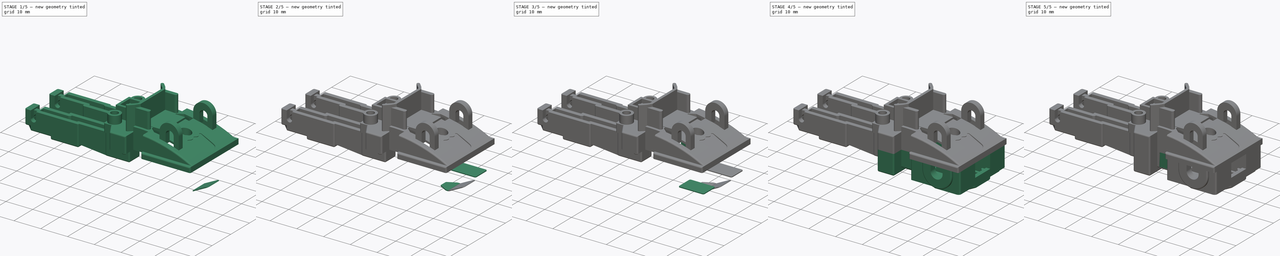
[diagram: build sequence overview — one tinted view per stage of 5, left to right]
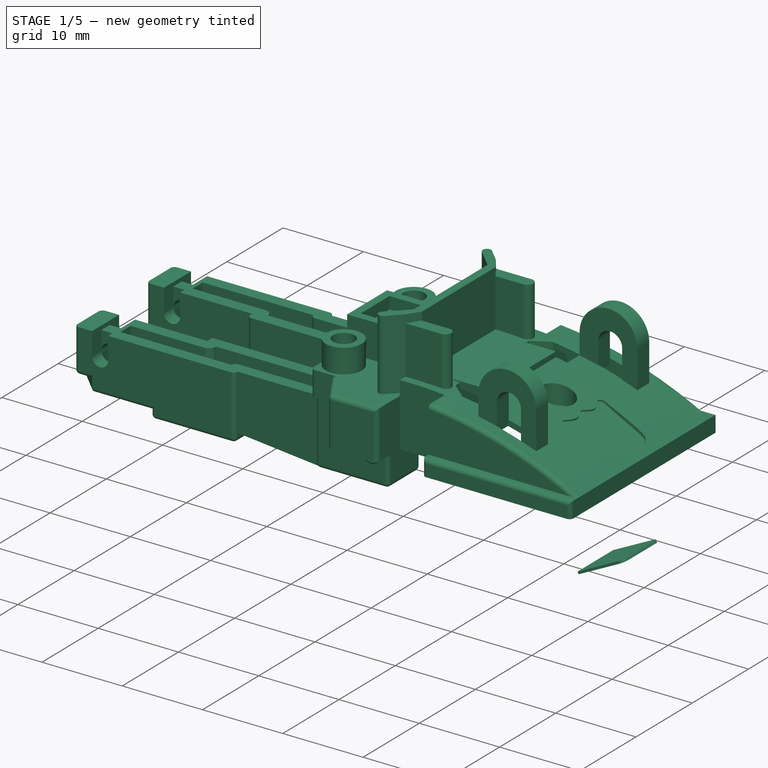
[diagram: stage 1 of 5 — iso view after this stage's code; geometry added in this stage tinted green]
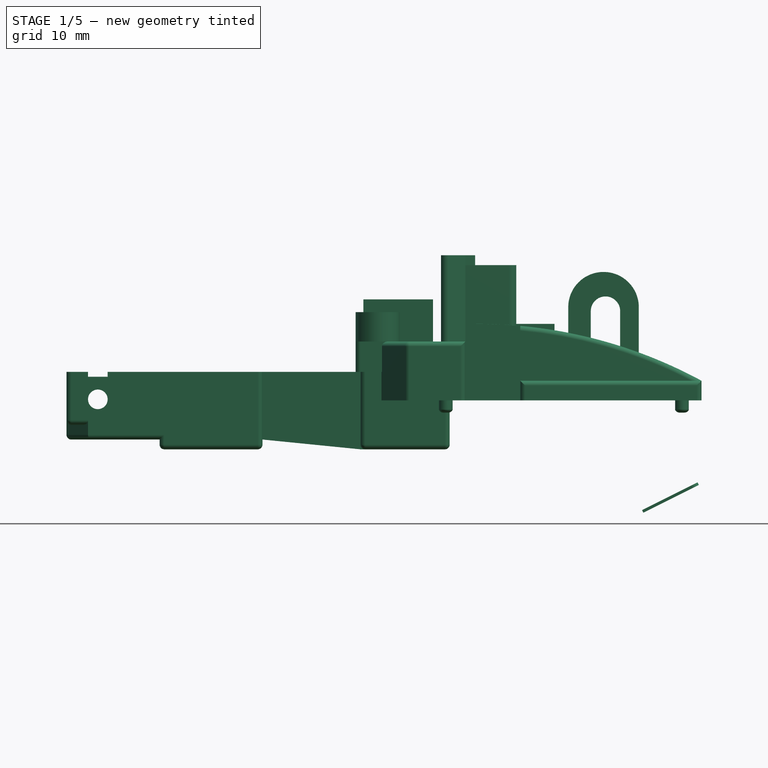
[diagram: stage 1 of 5 — front view after this stage's code; geometry added in this stage tinted green]
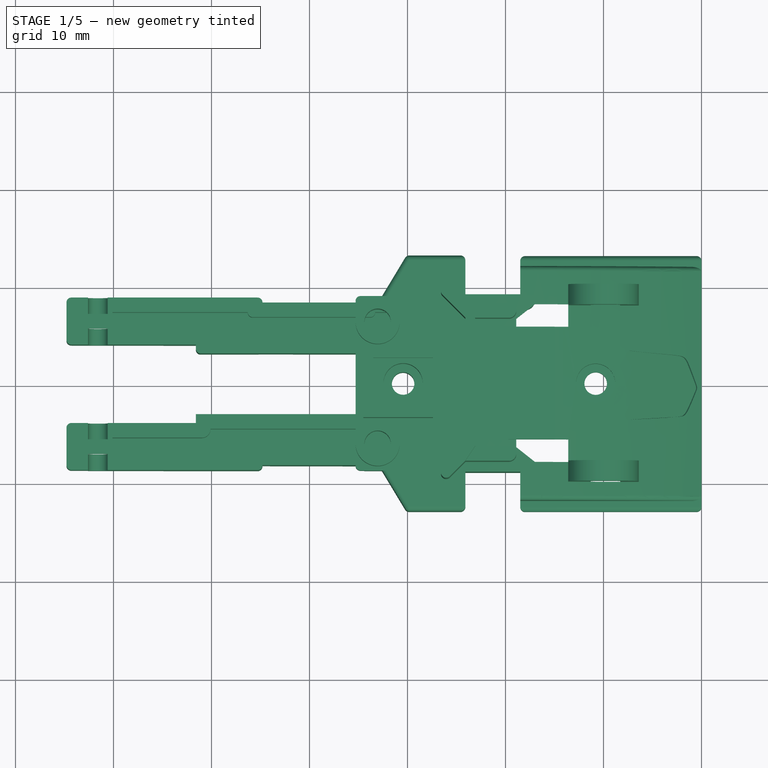
[diagram: stage 1 of 5 — top view after this stage's code; geometry added in this stage tinted green]
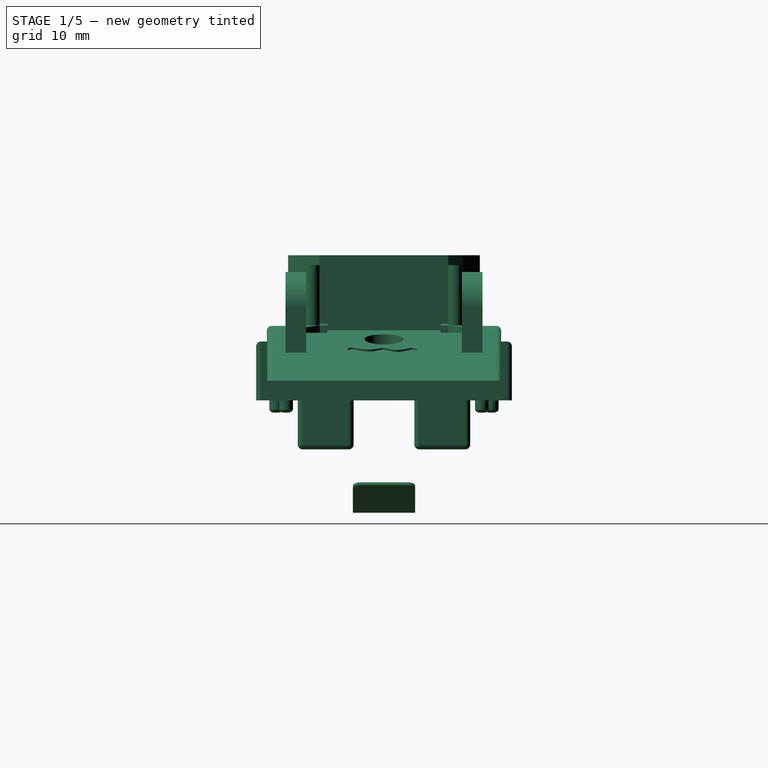
[diagram: stage 1 of 5 — right view after this stage's code; geometry added in this stage tinted green]
FCSTD DOCUMENT  (FreeCAD 1.0R39319 (Git))
Label: Stickered_Parts
License: All rights reserved
LicenseURL: https://en.wikipedia.org/wiki/All_rights_reserved
objects: Sketcher::SketchObject×36, PartDesign::Pocket×26, PartDesign::Body×12, Image::ImagePlane×9, PartDesign::SubShapeBinder×9, PartDesign::Pad×9, Part::Feature×3, PartDesign::FeatureBase×3
note: 207 computed .brp shape members not serialized (recipe doc carries the construction recipe); baked Part::Feature solids carry a one-line shape summary decoded from their .brp

FEATURE [PartDesign::Body] Body007  label="Sticker3"
  AllowCompound = false
  Group = -> [Binder006,Sketch027,Pad006,Sketch028,Pocket020]
  Origin = -> Origin007
  Tip = -> Pocket020
FEATURE [PartDesign::SubShapeBinder] Binder007
  BindCopyOnChange = 0
  BindMode = 2
  ClaimChildren = false
  Context = -> Body008 [Binder007.]
  Fuse = false
  MakeFace = true
  OffsetFill = false
  OffsetIntersection = false
  OffsetJoinType = 0
  OffsetOpenResult = false
  PartialLoad = false
  Refine = true
  Relative = true
  _Version = 2
FEATURE [Sketcher::SketchObject] Sketch029
  ArcFitTolerance = 1e-06
  AttachmentSupport = -> [Binder007]
  ExternalGeometry = -> [Binder007]
  FullyConstrained = true
  MakeInternals = false
  MapMode = 5
  Placement = pos=(3.26584,0,-6.53167) rot=(0.973249,0,0.229753;3.14159rad)
  sketch-geometry (8):
    g0: LineSegment StartX=-10.4387 StartY=3.17 StartZ=0 EndX=-10.4387 EndY=-3.17 EndZ=0
    g1: LineSegment StartX=-10.4387 StartY=-3.17 StartZ=0 EndX=-4.8487 EndY=-3.17 EndZ=0
    g2: LineSegment StartX=-4.0987 StartY=-2.42 StartZ=0 EndX=-4.0987 EndY=2.42 EndZ=0
    g3: LineSegment StartX=-4.8487 StartY=3.17 StartZ=0 EndX=-10.4387 EndY=3.17 EndZ=0
    g4: ArcOfCircle CenterX=-4.8487 CenterY=2.42 CenterZ=0 NormalX=0 NormalY=0 NormalZ=1 AngleXU=0 Radius=0.75 StartAngle=0 EndAngle=1.5708
    g5: GeomPoint [constr] X=-4.0987 Y=3.17 Z=0
    g6: ArcOfCircle CenterX=-4.8487 CenterY=-2.42 CenterZ=0 NormalX=0 NormalY=0 NormalZ=1 AngleXU=0 Radius=0.75 StartAngle=4.71239 EndAngle=6.28319
    g7: GeomPoint [constr] X=-4.0987 Y=-3.17 Z=0
  constraints (21):
    c: Coincident(g0,g1)
    c: Coincident(g3,g0)
    c: Vertical(g0)
    c: Vertical(g2)
    c: Horizontal(g1)
    c: Horizontal(g3)
    c: PointOnObject(g0,g-8)
    c: PointOnObject(g5,g2)
    c: PointOnObject(g5,g3)
    c: Tangent(g2,g4) = -1.5708
    c: Tangent(g3,g4) = -1.5708
    c: PointOnObject(g7,g1)
    c: PointOnObject(g7,g2)
    c: Tangent(g1,g6) = -1.5708
    c: Tangent(g2,g6) = -1.5708
    c: Radius(g-4) = 0.75
    c: Radius(g4) = 0.75
    c: Radius(g6) = 0.75
    c: DistanceX(g2,g-6) = 0.08
    c: DistanceY(g-7,g1) = 0.08
    c: DistanceY(g3,g-4) = 0.08
FEATURE [PartDesign::Pad] Pad007
  Direction = (0.447214,0,-0.894427)
  Length = 0.3
  Length2 = 10
  Profile = -> Sketch029
  ReferenceAxis = -> Sketch029 [N_Axis]
  Refine = true
  Suppressed = false
  Type = 0
FEATURE [PartDesign::Body] Body008  label="Sticker3A"
  AllowCompound = false
  Group = -> [Binder007,Sketch029,Pad007,Sketch030,Pocket021]
  Origin = -> Origin008
  Tip = -> Pocket021
FEATURE [Part::Feature] Part__Feature001  label="Rear_Torso"
  shape: bbox 35.51 x 26.1 x 16.05 mm, 202 faces (baked)
FEATURE [PartDesign::FeatureBase] BaseFeature001
  BaseFeature = -> Part__Feature001
  Suppressed = false
FEATURE [Sketcher::SketchObject] Sketch031
  ArcFitTolerance = 1e-06
  AttachmentOffset = pos=(-67.4391,-4.9,23.8932) rot=(-0.200719,-0.200611,-0.958888;4.67299rad)
  AttachmentSupport = -> [BaseFeature001]
  FullyConstrained = false
  MakeInternals = false
  MapMode = 5
  Placement = pos=(-67.4391,-4.9,31.6932) rot=(-0.200719,-0.200611,-0.958888;4.67299rad)
  sketch-geometry (55):
    g0-g23: Circle [constr] x24 (B-spline internal-alignment scaffolding for g24; pole/knot coordinates omitted)
    g24: BSplineCurve PolesCount=28 KnotsCount=26 Degree=3 IsPeriodic=0
    g25-g48: GeomPoint [constr] x24 (B-spline internal-alignment scaffolding for g24; pole/knot coordinates omitted)
    g49: Circle [constr] CenterX=7.96829 CenterY=-71.2558 CenterZ=0 NormalX=0 NormalY=0 NormalZ=1 AngleXU=0 Radius=1
    g50: GeomPoint [constr] X=8.18848 Y=-67.9665 Z=0
    g51: Circle [constr] CenterX=8.19567 CenterY=-67.6744 CenterZ=0 NormalX=0 NormalY=0 NormalZ=1 AngleXU=0 Radius=1
    g52: Circle [constr] CenterX=8.37992 CenterY=-65.8459 CenterZ=0 NormalX=0 NormalY=0 NormalZ=1 AngleXU=0 Radius=1
    g53: Circle [constr] CenterX=8.42259 CenterY=-65.5512 CenterZ=0 NormalX=0 NormalY=0 NormalZ=1 AngleXU=0 Radius=1
    g54: GeomPoint [constr] X=8.35632 Y=-66.1015 Z=0
  constraints (15):
    c: Weight(g0) = 1
    c: Equal(g0, g1-g23) x23
    c: InternalAlignment(g0-g23 -> g24) x24
    c: InternalAlignment(g25-g48 -> g24) x24
    c: Coincident(g23,g0)
    c: InternalAlignment(g49,g24)
    c: Equal(g49,g0)
    c: InternalAlignment(g50,g24)
    c: InternalAlignment(g51,g24)
    c: Equal(g51,g0)
    c: InternalAlignment(g52,g24)
    c: Equal(g52,g0)
    c: InternalAlignment(g53,g24)
    c: Equal(g53,g0)
    c: InternalAlignment(g54,g24)
FEATURE [PartDesign::Pocket] Pocket022
  BaseFeature = -> BaseFeature001
  Direction = (-0.400504,0.000622095,-0.916295)
  Length = 0.4
  Length2 = 5
  Profile = -> Sketch031
  ReferenceAxis = -> Sketch031 [N_Axis]
  Refine = true
  Suppressed = false
  Type = 0
FEATURE [PartDesign::Body] Body009  label="Rear_Torso_Stickered"
  AllowCompound = false
  BaseFeature = -> Part__Feature001
  Group = -> [BaseFeature001,Sketch031,Pocket022]
  Origin = -> Origin009
  Tip = -> Pocket022
FEATURE [Part::Feature] Part__Feature002  label="Legs"
  shape: bbox 39.1 x 17.6 x 7.9 mm, 158 faces (baked)
FEATURE [PartDesign::FeatureBase] BaseFeature002
  BaseFeature = -> Part__Feature002
  Suppressed = false
FEATURE [Image::ImagePlane] Sticker7  label="Sticker7_Pre"
  Placement = pos=(-48.5,6,0) rot=(0,0,-1;1.5708rad)
  XSize = 5.15961
  YSize = 6.50392
FEATURE [Sketcher::SketchObject] Sketch032
  ArcFitTolerance = 1e-06
  AttachmentSupport = -> [BaseFeature002]
  ExternalGeometry = -> [BaseFeature002]
  FullyConstrained = true
  MakeInternals = false
  MapMode = 5
  Placement = pos=(0,-1.1e-15,-5) rot=(1,0,0;3.14159rad)
  sketch-geometry (24):
    g0: LineSegment StartX=-45.99 StartY=-3.79 StartZ=0 EndX=-50.41 EndY=-3.79 EndZ=0
    g1: LineSegment StartX=-50.91 StartY=-4.29 StartZ=0 EndX=-50.91 EndY=-7.56 EndZ=0
    g2: LineSegment StartX=-50.36 StartY=-8.11 StartZ=0 EndX=-45.99 EndY=-8.11 EndZ=0
    g3: LineSegment StartX=-45.49 StartY=-7.61 StartZ=0 EndX=-45.49 EndY=-4.29 EndZ=0
    g4: ArcOfCircle CenterX=-45.99 CenterY=-4.29 CenterZ=0 NormalX=0 NormalY=0 NormalZ=1 AngleXU=0 Radius=0.5 StartAngle=0 EndAngle=1.5708
    g5: GeomPoint [constr] X=-45.49 Y=-3.79 Z=0
    g6: ArcOfCircle CenterX=-50.41 CenterY=-4.29 CenterZ=0 NormalX=0 NormalY=0 NormalZ=1 AngleXU=0 Radius=0.5 StartAngle=1.5708 EndAngle=3.14159
    g7: GeomPoint [constr] X=-50.91 Y=-3.79 Z=0
    g8: ArcOfCircle CenterX=-50.36 CenterY=-7.56 CenterZ=0 NormalX=0 NormalY=0 NormalZ=1 AngleXU=0 Radius=0.55 StartAngle=3.14159 EndAngle=4.71239
    g9: GeomPoint [constr] X=-50.91 Y=-8.11 Z=0
    g10: ArcOfCircle CenterX=-45.99 CenterY=-7.61 CenterZ=0 NormalX=0 NormalY=0 NormalZ=1 AngleXU=0 Radius=0.5 StartAngle=4.71239 EndAngle=6.28319
    g11: GeomPoint [constr] X=-45.49 Y=-8.11 Z=0
    g12: LineSegment StartX=-50.91 StartY=7.61 StartZ=0 EndX=-50.91 EndY=4.29 EndZ=0
    g13: LineSegment StartX=-50.41 StartY=3.79 StartZ=0 EndX=-45.99 EndY=3.79 EndZ=0
    g14: LineSegment StartX=-45.49 StartY=4.29 StartZ=0 EndX=-45.49 EndY=7.61 EndZ=0
    g15: LineSegment StartX=-45.99 StartY=8.11 StartZ=0 EndX=-50.41 EndY=8.11 EndZ=0
    g16: ArcOfCircle CenterX=-45.99 CenterY=7.61 CenterZ=0 NormalX=0 NormalY=0 NormalZ=1 AngleXU=0 Radius=0.5 StartAngle=0 EndAngle=1.5708
    g17: GeomPoint [constr] X=-45.49 Y=8.11 Z=0
    g18: ArcOfCircle CenterX=-50.41 CenterY=7.61 CenterZ=0 NormalX=0 NormalY=0 NormalZ=1 AngleXU=0 Radius=0.5 StartAngle=1.5708 EndAngle=3.14159
    g19: GeomPoint [constr] X=-50.91 Y=8.11 Z=0
    g20: ArcOfCircle CenterX=-50.41 CenterY=4.29 CenterZ=0 NormalX=0 NormalY=0 NormalZ=1 AngleXU=0 Radius=0.5 StartAngle=3.14159 EndAngle=4.71239
    g21: GeomPoint [constr] X=-50.91 Y=3.79 Z=0
    g22: ArcOfCircle CenterX=-45.99 CenterY=4.29 CenterZ=0 NormalX=0 NormalY=0 NormalZ=1 AngleXU=0 Radius=0.5 StartAngle=4.71239 EndAngle=6.28319
    g23: GeomPoint [constr] X=-45.49 Y=3.79 Z=0
  constraints (56):
    c: Horizontal(g0)
    c: Horizontal(g2)
    c: Vertical(g1)
    c: Vertical(g3)
    c: PointOnObject(g5,g0)
    c: PointOnObject(g5,g3)
    c: Tangent(g0,g4) = -1.5708
    c: Tangent(g3,g4) = -1.5708
    c: PointOnObject(g7,g0)
    c: PointOnObject(g7,g1)
    c: Tangent(g0,g6) = -1.5708
    c: Tangent(g1,g6) = -1.5708
    c: PointOnObject(g9,g1)
    c: PointOnObject(g9,g2)
    c: Tangent(g1,g8) = -1.5708
    c: Tangent(g2,g8) = -1.5708
    c: PointOnObject(g11,g2)
    c: PointOnObject(g11,g3)
    c: Tangent(g2,g10) = -1.5708
    c: Tangent(g3,g10) = -1.5708
    c: Radius(g10) = 0.5
    c: Radius(g4) = 0.5
    c: Radius(g6) = 0.5
    c: Radius(g8) = 0.55
    c: DistanceY(g-5,g2) = 0.2
    c: DistanceY(g0,g-4) = 0.2
    c: DistanceX(g3,g-5) = 0.2
    c: DistanceX(g-6,g1) = 0.2
    c: Vertical(g12)
    c: Vertical(g14)
    c: Horizontal(g13)
    c: Horizontal(g15)
    c: PointOnObject(g17,g14)
    c: PointOnObject(g17,g15)
    c: Tangent(g14,g16) = -1.5708
    c: Tangent(g15,g16) = -1.5708
    c: PointOnObject(g19,g12)
    c: PointOnObject(g19,g15)
    c: Tangent(g12,g18) = -1.5708
    c: Tangent(g15,g18) = -1.5708
    c: PointOnObject(g21,g12)
    c: PointOnObject(g21,g13)
    c: Tangent(g12,g20) = -1.5708
    c: Tangent(g13,g20) = -1.5708
    c: PointOnObject(g23,g13)
    c: PointOnObject(g23,g14)
    c: Tangent(g13,g22) = -1.5708
    c: Tangent(g14,g22) = -1.5708
    c: Radius(g20) = 0.5
    c: Radius(g22) = 0.5
    c: Radius(g16) = 0.5
    c: Radius(g18) = 0.5
    c: DistanceY(g15,g-10) = 0.2
    c: DistanceY(g-10,g13) = 0.2
    c: DistanceX(g14,g-10) = 0.2
    c: DistanceX(g-8,g12) = 0.2
FEATURE [PartDesign::Pocket] Pocket023
  BaseFeature = -> BaseFeature002
  Direction = (0,0,1)
  Length = 0.3
  Length2 = 5
  Profile = -> Sketch032
  ReferenceAxis = -> Sketch032 [N_Axis]
  Refine = true
  Suppressed = false
  Type = 0
FEATURE [PartDesign::Body] Body010  label="Legs_Stickered"
  AllowCompound = false
  BaseFeature = -> Part__Feature002
  Group = -> [BaseFeature002,Sketch032,Pocket023]
  Origin = -> Origin010
  Tip = -> Pocket023
FEATURE [PartDesign::SubShapeBinder] Binder008
  BindCopyOnChange = 0
  BindMode = 2
  ClaimChildren = false
  Context = -> Body011 [Binder008.]
  Fuse = false
  MakeFace = true
  OffsetFill = false
  OffsetIntersection = false
  OffsetJoinType = 0
  OffsetOpenResult = false
  PartialLoad = false
  Refine = true
  Relative = true
  _Version = 2
FEATURE [Sketcher::SketchObject] Sketch033
  ArcFitTolerance = 1e-06
  AttachmentSupport = -> [Binder008]
  ExternalGeometry = -> [Binder008]
  FullyConstrained = true
  MakeInternals = false
  MapMode = 5
  Placement = pos=(0,0,-4.7) rot=(1,0,0;3.14159rad)
  sketch-geometry (12):
    g0: LineSegment StartX=-50.83 StartY=-4.37 StartZ=0 EndX=-50.83 EndY=-7.53 EndZ=0
    g1: LineSegment StartX=-50.33 StartY=-8.03 StartZ=0 EndX=-46.07 EndY=-8.03 EndZ=0
    g2: LineSegment StartX=-45.57 StartY=-7.53 StartZ=0 EndX=-45.57 EndY=-4.37 EndZ=0
    g3: LineSegment StartX=-46.07 StartY=-3.87 StartZ=0 EndX=-50.33 EndY=-3.87 EndZ=0
    g4: ArcOfCircle CenterX=-46.07 CenterY=-4.37 CenterZ=0 NormalX=0 NormalY=0 NormalZ=1 AngleXU=0 Radius=0.5 StartAngle=0 EndAngle=1.5708
    g5: GeomPoint [constr] X=-45.57 Y=-3.87 Z=0
    g6: ArcOfCircle CenterX=-50.33 CenterY=-4.37 CenterZ=0 NormalX=0 NormalY=0 NormalZ=1 AngleXU=0 Radius=0.5 StartAngle=1.5708 EndAngle=3.14159
    g7: GeomPoint [constr] X=-50.83 Y=-3.87 Z=0
    g8: ArcOfCircle CenterX=-50.33 CenterY=-7.53 CenterZ=0 NormalX=0 NormalY=0 NormalZ=1 AngleXU=0 Radius=0.5 StartAngle=3.14159 EndAngle=4.71239
    g9: GeomPoint [constr] X=-50.83 Y=-8.03 Z=0
    g10: ArcOfCircle CenterX=-46.07 CenterY=-7.53 CenterZ=0 NormalX=0 NormalY=0 NormalZ=1 AngleXU=0 Radius=0.5 StartAngle=4.71239 EndAngle=6.28319
    g11: GeomPoint [constr] X=-45.57 Y=-8.03 Z=0
  constraints (29):
    c: Vertical(g0)
    c: Vertical(g2)
    c: Horizontal(g1)
    c: Horizontal(g3)
    c: PointOnObject(g5,g2)
    c: PointOnObject(g5,g3)
    c: Tangent(g2,g4) = -1.5708
    c: Tangent(g3,g4) = -1.5708
    c: PointOnObject(g7,g0)
    c: PointOnObject(g7,g3)
    c: Tangent(g0,g6) = -1.5708
    c: Tangent(g3,g6) = -1.5708
    c: PointOnObject(g9,g0)
    c: PointOnObject(g9,g1)
    c: Tangent(g0,g8) = -1.5708
    c: Tangent(g1,g8) = -1.5708
    c: PointOnObject(g11,g1)
    c: PointOnObject(g11,g2)
    c: Tangent(g1,g10) = -1.5708
    c: Tangent(g2,g10) = -1.5708
    c: Radius(g-10) = 0.5
    c: Radius(g6) = 0.5
    c: Radius(g8) = 0.5
    c: Radius(g10) = 0.5
    c: Radius(g4) = 0.5
    c: DistanceY(g3,g-6) = 0.08
    c: DistanceY(g-8,g1) = 0.08
    c: DistanceX(g2,g-7) = 0.08
    c: DistanceX(g-9,g0) = 0.08
FEATURE [PartDesign::Pad] Pad008
  Direction = (0,0,-1)
  Length = 0.3
  Length2 = 10
  Profile = -> Sketch033
  ReferenceAxis = -> Sketch033 [N_Axis]
  Refine = true
  Suppressed = false
  Type = 0
FEATURE [Sketcher::SketchObject] Sketch034
  ArcFitTolerance = 1e-06
  AttachmentSupport = -> [Pad008]
  ExternalGeometry = -> [Pad008]
  FullyConstrained = true
  MakeInternals = false
  MapMode = 5
  Placement = pos=(0,0,-5) rot=(1,0,0;3.14159rad)
  sketch-geometry (30):
    g0: LineSegment StartX=-48.23 StartY=-4.87 StartZ=0 EndX=-48.23 EndY=-7.03 EndZ=0
    g1: LineSegment StartX=-48.43 StartY=-7.23 StartZ=0 EndX=-50.83 EndY=-7.23 EndZ=0
    g2: LineSegment StartX=-50.83 StartY=-7.23 StartZ=0 EndX=-50.83 EndY=-7.53 EndZ=0
    g3: LineSegment StartX=-50.83 StartY=-7.53 StartZ=0 EndX=-48.28 EndY=-7.53 EndZ=0
    g4: LineSegment StartX=-47.93 StartY=-7.18 StartZ=0 EndX=-47.93 EndY=-4.72 EndZ=0
    g5: LineSegment StartX=-48.28 StartY=-4.37 StartZ=0 EndX=-50.83 EndY=-4.37 EndZ=0
    g6: LineSegment StartX=-48.43 StartY=-4.67 StartZ=0 EndX=-50.83 EndY=-4.67 EndZ=0
    g7: LineSegment StartX=-50.83 StartY=-4.67 StartZ=0 EndX=-50.83 EndY=-4.37 EndZ=0
    g8: ArcOfCircle CenterX=-48.28 CenterY=-4.72 CenterZ=0 NormalX=0 NormalY=0 NormalZ=1 AngleXU=0 Radius=0.35 StartAngle=0 EndAngle=1.5708
    g9: GeomPoint [constr] X=-47.93 Y=-4.37 Z=0
    g10: ArcOfCircle CenterX=-48.43 CenterY=-4.87 CenterZ=0 NormalX=0 NormalY=0 NormalZ=1 AngleXU=0 Radius=0.2 StartAngle=-1.8e-15 EndAngle=1.5708
    g11: GeomPoint [constr] X=-48.23 Y=-4.67 Z=0
    g12: ArcOfCircle CenterX=-48.43 CenterY=-7.03 CenterZ=0 NormalX=0 NormalY=0 NormalZ=1 AngleXU=0 Radius=0.2 StartAngle=4.71239 EndAngle=6.28319
    g13: GeomPoint [constr] X=-48.23 Y=-7.23 Z=0
    g14: ArcOfCircle CenterX=-48.28 CenterY=-7.18 CenterZ=0 NormalX=0 NormalY=0 NormalZ=1 AngleXU=0 Radius=0.35 StartAngle=4.71239 EndAngle=6.28319
    g15: GeomPoint [constr] X=-47.93 Y=-7.53 Z=0
    g16: LineSegment StartX=-47.57 StartY=-4.72 StartZ=0 EndX=-47.57 EndY=-7.18 EndZ=0
    g17: LineSegment StartX=-47.22 StartY=-7.53 StartZ=0 EndX=-46.22 EndY=-7.53 EndZ=0
    g18: LineSegment StartX=-45.87 StartY=-7.18 StartZ=0 EndX=-45.87 EndY=-4.72 EndZ=0
    g19: LineSegment StartX=-46.22 StartY=-4.37 StartZ=0 EndX=-47.22 EndY=-4.37 EndZ=0
    g20: ArcOfCircle CenterX=-46.22 CenterY=-4.72 CenterZ=0 NormalX=0 NormalY=0 NormalZ=1 AngleXU=0 Radius=0.35 StartAngle=1e-16 EndAngle=1.5708
    g21: GeomPoint [constr] X=-45.87 Y=-4.37 Z=0
    g22: ArcOfCircle CenterX=-47.22 CenterY=-4.72 CenterZ=0 NormalX=0 NormalY=0 NormalZ=1 AngleXU=0 Radius=0.35 StartAngle=1.5708 EndAngle=3.14159
    g23: GeomPoint [constr] X=-47.57 Y=-4.37 Z=0
    g24: ArcOfCircle CenterX=-47.22 CenterY=-7.18 CenterZ=0 NormalX=0 NormalY=0 NormalZ=1 AngleXU=0 Radius=0.35 StartAngle=3.14159 EndAngle=4.71239
    g25: GeomPoint [constr] X=-47.57 Y=-7.53 Z=0
    g26: ArcOfCircle CenterX=-46.22 CenterY=-7.18 CenterZ=0 NormalX=0 NormalY=0 NormalZ=1 AngleXU=0 Radius=0.35 StartAngle=4.71239 EndAngle=6.28319
    g27: GeomPoint [constr] X=-45.87 Y=-7.53 Z=0
    g28: LineSegment [constr] StartX=-48.28 StartY=-4.37 StartZ=0 EndX=-47.22 EndY=-4.37 EndZ=0
    g29: LineSegment [constr] StartX=-48.28 StartY=-7.53 StartZ=0 EndX=-47.22 EndY=-7.53 EndZ=0
  constraints (70):
    c: Vertical(g0)
    c: PointOnObject(g1,g-3)
    c: Horizontal(g1)
    c: Coincident(g2,g1)
    c: Coincident(g2,g-3)
    c: Coincident(g3,g2)
    c: Horizontal(g3)
    c: Vertical(g4)
    c: Coincident(g5,g-3)
    c: DistanceY(g2,g2) = 0.3
    c: Horizontal(g5)
    c: PointOnObject(g6,g-3)
    c: Horizontal(g6)
    c: Coincident(g7,g6)
    c: Coincident(g7,g5)
    c: DistanceY(g7,g7) = 0.3
    c: PointOnObject(g9,g4)
    c: PointOnObject(g9,g5)
    c: Tangent(g4,g8) = -1.5708
    c: Tangent(g5,g8) = -1.5708
    c: PointOnObject(g11,g0)
    c: PointOnObject(g11,g6)
    c: Tangent(g0,g10) = 1.5708
    c: Tangent(g6,g10) = -1.5708
    c: PointOnObject(g13,g0)
    c: PointOnObject(g13,g1)
    c: Tangent(g0,g12) = 1.5708
    c: Tangent(g1,g12) = 1.5708
    c: PointOnObject(g15,g3)
    c: PointOnObject(g15,g4)
    c: Tangent(g3,g14) = -1.5708
    c: Tangent(g4,g14) = -1.5708
    c: Radius(g14) = 0.35
    c: Radius(g8) = 0.35
    c: DistanceX(g0,g4) = 0.3
    c: Radius(g10) = 0.2
    c: Radius(g12) = 0.2
    c: DistanceX(g6,g6) = 2.4
    c: Vertical(g16)
    c: Vertical(g18)
    c: Horizontal(g17)
    c: Horizontal(g19)
    c: PointOnObject(g21,g18)
    c: PointOnObject(g21,g19)
    c: Tangent(g18,g20) = -1.5708
    c: Tangent(g19,g20) = -1.5708
    c: PointOnObject(g23,g16)
    c: PointOnObject(g23,g19)
    c: Tangent(g16,g22) = -1.5708
    c: Tangent(g19,g22) = -1.5708
    c: PointOnObject(g25,g16)
    c: PointOnObject(g25,g17)
    c: Tangent(g16,g24) = -1.5708
    c: Tangent(g17,g24) = -1.5708
    c: PointOnObject(g27,g17)
    c: PointOnObject(g27,g18)
    c: Tangent(g17,g26) = -1.5708
    c: Tangent(g18,g26) = -1.5708
    c: Radius(g24) = 0.35
    c: Radius(g26) = 0.35
    c: Radius(g22) = 0.35
    c: Radius(g20) = 0.35
    c: Coincident(g29,g17)
    c: Horizontal(g29)
    c: Coincident(g29,g3)
    c: Coincident(g28,g5)
    c: Coincident(g28,g19)
    c: Horizontal(g28)
    c: DistanceX(g19,g19) = 1
    c: DistanceX(g4,g16) = 0.36
FEATURE [PartDesign::Pocket] Pocket024
  BaseFeature = -> Pad008
  Direction = (0,0,1)
  Length = 0.001
  Length2 = 5
  Profile = -> Sketch034
  ReferenceAxis = -> Sketch034 [N_Axis]
  Refine = true
  Suppressed = false
  Type = 0
FEATURE [Sketcher::SketchObject] Sketch035
  ArcFitTolerance = 1e-06
  AttachmentSupport = -> [Pocket024]
  ExternalGeometry = -> [Pocket024]
  FullyConstrained = true
  MakeInternals = false
  MapMode = 5
  Placement = pos=(0,0,-4.999) rot=(1,0,0;3.14159rad)
  sketch-geometry (30):
    g0: LineSegment StartX=-47.32 StartY=-6.83 StartZ=0 EndX=-47.32 EndY=-7.08 EndZ=0
    g1: LineSegment StartX=-47.12 StartY=-7.28 StartZ=0 EndX=-46.32 EndY=-7.28 EndZ=0
    g2: LineSegment StartX=-46.12 StartY=-7.08 StartZ=0 EndX=-46.12 EndY=-6.83 EndZ=0
    g3: LineSegment StartX=-46.12 StartY=-6.83 StartZ=0 EndX=-47.32 EndY=-6.83 EndZ=0
    g4: LineSegment StartX=-47.32 StartY=-6.07 StartZ=0 EndX=-47.32 EndY=-6.58 EndZ=0
    g5: LineSegment StartX=-47.32 StartY=-6.58 StartZ=0 EndX=-46.12 EndY=-6.58 EndZ=0
    g6: LineSegment StartX=-46.12 StartY=-6.58 StartZ=0 EndX=-46.12 EndY=-6.07 EndZ=0
    g7: LineSegment StartX=-46.12 StartY=-6.07 StartZ=0 EndX=-47.32 EndY=-6.07 EndZ=0
    g8: LineSegment StartX=-47.32 StartY=-5.32 StartZ=0 EndX=-47.32 EndY=-5.82 EndZ=0
    g9: LineSegment StartX=-47.32 StartY=-5.82 StartZ=0 EndX=-46.12 EndY=-5.82 EndZ=0
    g10: LineSegment StartX=-46.12 StartY=-5.82 StartZ=0 EndX=-46.12 EndY=-5.32 EndZ=0
    g11: LineSegment StartX=-46.12 StartY=-5.32 StartZ=0 EndX=-47.32 EndY=-5.32 EndZ=0
    g12: LineSegment StartX=-47.32 StartY=-4.82 StartZ=0 EndX=-47.32 EndY=-5.07 EndZ=0
    g13: LineSegment StartX=-47.32 StartY=-5.07 StartZ=0 EndX=-46.12 EndY=-5.07 EndZ=0
    g14: LineSegment StartX=-46.12 StartY=-5.07 StartZ=0 EndX=-46.12 EndY=-4.82 EndZ=0
    g15: LineSegment StartX=-46.32 StartY=-4.62 StartZ=0 EndX=-47.12 EndY=-4.62 EndZ=0
    g16: ArcOfCircle CenterX=-46.32 CenterY=-4.82 CenterZ=0 NormalX=0 NormalY=0 NormalZ=1 AngleXU=0 Radius=0.2 StartAngle=9e-16 EndAngle=1.5708
    g17: GeomPoint [constr] X=-46.12 Y=-4.62 Z=0
    g18: ArcOfCircle CenterX=-47.12 CenterY=-4.82 CenterZ=0 NormalX=0 NormalY=0 NormalZ=1 AngleXU=0 Radius=0.2 StartAngle=1.5708 EndAngle=3.14159
    g19: GeomPoint [constr] X=-47.32 Y=-4.62 Z=0
    g20: ArcOfCircle CenterX=-46.32 CenterY=-7.08 CenterZ=0 NormalX=0 NormalY=0 NormalZ=1 AngleXU=0 Radius=0.2 StartAngle=4.71239 EndAngle=6.28319
    g21: GeomPoint [constr] X=-46.12 Y=-7.28 Z=0
    g22: ArcOfCircle CenterX=-47.12 CenterY=-7.08 CenterZ=0 NormalX=0 NormalY=0 NormalZ=1 AngleXU=0 Radius=0.2 StartAngle=3.14159 EndAngle=4.71239
    g23: GeomPoint [constr] X=-47.32 Y=-7.28 Z=0
    g24: LineSegment [constr] StartX=-47.32 StartY=-6.83 StartZ=0 EndX=-47.32 EndY=-6.58 EndZ=0
    g25: LineSegment [constr] StartX=-46.12 StartY=-6.83 StartZ=0 EndX=-46.12 EndY=-6.58 EndZ=0
    g26: LineSegment [constr] StartX=-47.32 StartY=-6.07 StartZ=0 EndX=-47.32 EndY=-5.82 EndZ=0
    g27: LineSegment [constr] StartX=-46.12 StartY=-6.07 StartZ=0 EndX=-46.12 EndY=-5.82 EndZ=0
    g28: LineSegment [constr] StartX=-47.32 StartY=-5.32 StartZ=0 EndX=-47.32 EndY=-5.07 EndZ=0
    g29: LineSegment [constr] StartX=-46.12 StartY=-5.32 StartZ=0 EndX=-46.12 EndY=-5.07 EndZ=0
  constraints (77):
    c: Coincident(g2,g3)
    c: Coincident(g3,g0)
    c: Vertical(g0)
    c: Vertical(g2)
    c: Horizontal(g1)
    c: Horizontal(g3)
    c: Coincident(g4,g5)
    c: Coincident(g5,g6)
    c: Coincident(g6,g7)
    c: Coincident(g7,g4)
    c: Vertical(g4)
    c: Vertical(g6)
    c: Horizontal(g5)
    c: Horizontal(g7)
    c: Coincident(g8,g9)
    c: Coincident(g9,g10)
    c: Coincident(g10,g11)
    c: Coincident(g11,g8)
    c: Vertical(g8)
    c: Vertical(g10)
    c: Horizontal(g9)
    c: Horizontal(g11)
    c: Coincident(g12,g13)
    c: Coincident(g13,g14)
    c: Vertical(g12)
    c: Vertical(g14)
    c: Horizontal(g13)
    c: Horizontal(g15)
    c: PointOnObject(g17,g14)
    c: PointOnObject(g17,g15)
    c: Tangent(g14,g16) = -1.5708
    c: Tangent(g15,g16) = -1.5708
    c: PointOnObject(g19,g12)
    c: PointOnObject(g19,g15)
    c: Tangent(g12,g18) = -1.5708
    c: Tangent(g15,g18) = -1.5708
    c: Radius(g18) = 0.2
    c: Radius(g16) = 0.2
    c: DistanceX(g-3,g12) = 0.25
    c: DistanceX(g13,g-5) = 0.25
    c: DistanceY(g15,g-4) = 0.25
    c: PointOnObject(g21,g1)
    c: PointOnObject(g21,g2)
    c: Tangent(g1,g20) = -1.5708
    c: Tangent(g2,g20) = -1.5708
    c: PointOnObject(g23,g0)
    c: PointOnObject(g23,g1)
    c: Tangent(g0,g22) = -1.5708
    c: Tangent(g1,g22) = -1.5708
    c: Radius(g22) = 0.2
    c: Radius(g20) = 0.2
    c: DistanceX(g2,g-5) = 0.25
    c: DistanceX(g-3,g0) = 0.25
    c: DistanceY(g-6,g1) = 0.25
    c: Coincident(g24,g0)
    c: Coincident(g24,g4)
    c: Vertical(g24)
    c: Coincident(g25,g2)
    c: Coincident(g25,g5)
    c: Vertical(g25)
    c: PointOnObject(g26,g7)
    c: Coincident(g26,g8)
    c: Coincident(g27,g6)
    c: Coincident(g27,g9)
    c: Coincident(g28,g8)
    c: Coincident(g28,g12)
    c: Vertical(g28)
    c: Coincident(g29,g10)
    c: Coincident(g29,g13)
    c: Vertical(g29)
    c: Vertical(g26)
    c: DistanceY(g24,g24) = 0.25
    c: DistanceY(g26,g26) = 0.25
    c: DistanceY(g28,g28) = 0.25
    c: DistanceY(g2,g2) = 0.25
    c: DistanceY(g14,g14) = 0.25
    c: DistanceY(g10,g10) = 0.5
FEATURE [PartDesign::Pocket] Pocket025
  BaseFeature = -> Pocket024
  Direction = (0,0,1)
  Length = 0.001
  Length2 = 5
  Profile = -> Sketch035
  ReferenceAxis = -> Sketch035 [N_Axis]
  Refine = true
  Suppressed = false
  Type = 0
FEATURE [PartDesign::Body] Body011  label="Sticker7"
  AllowCompound = false
  Group = -> [Binder008,Sketch033,Pad008,Sketch034,Pocket024,Sketch035,Pocket025]
  Origin = -> Origin011
  Tip = -> Pocket025
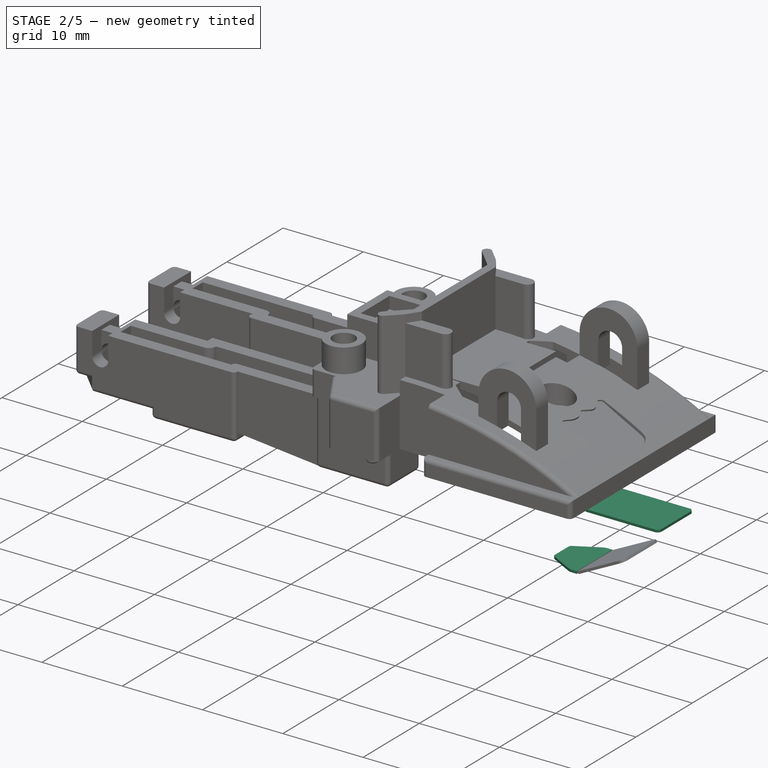
[diagram: stage 2 of 5 — iso view after this stage's code; geometry added in this stage tinted green]
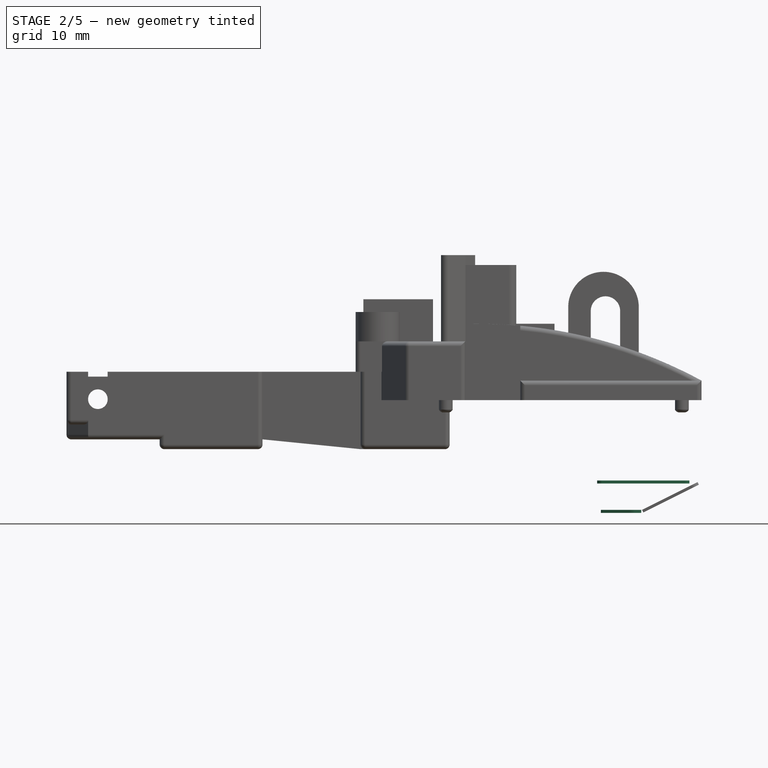
[diagram: stage 2 of 5 — front view after this stage's code; geometry added in this stage tinted green]
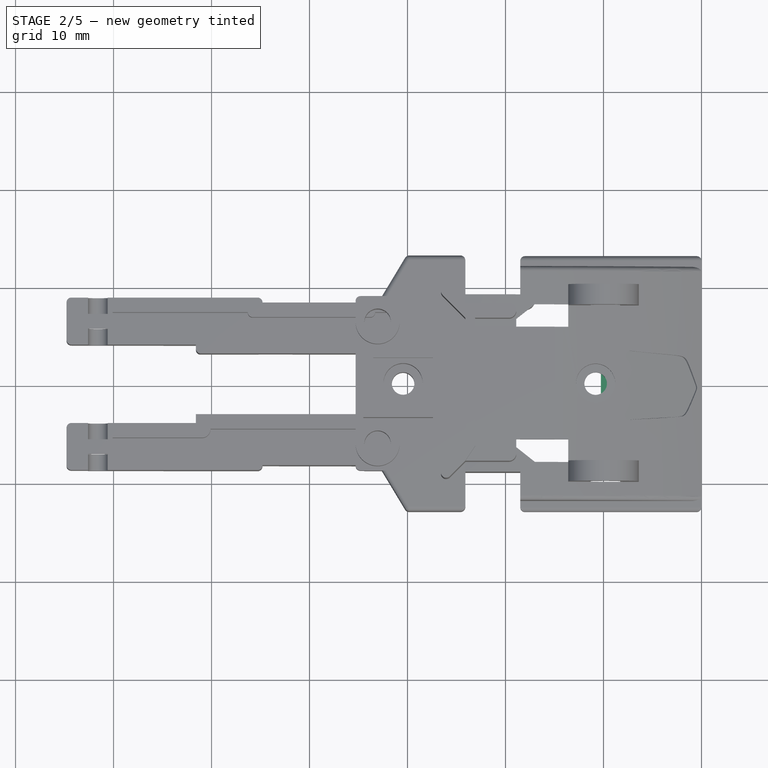
[diagram: stage 2 of 5 — top view after this stage's code; geometry added in this stage tinted green]
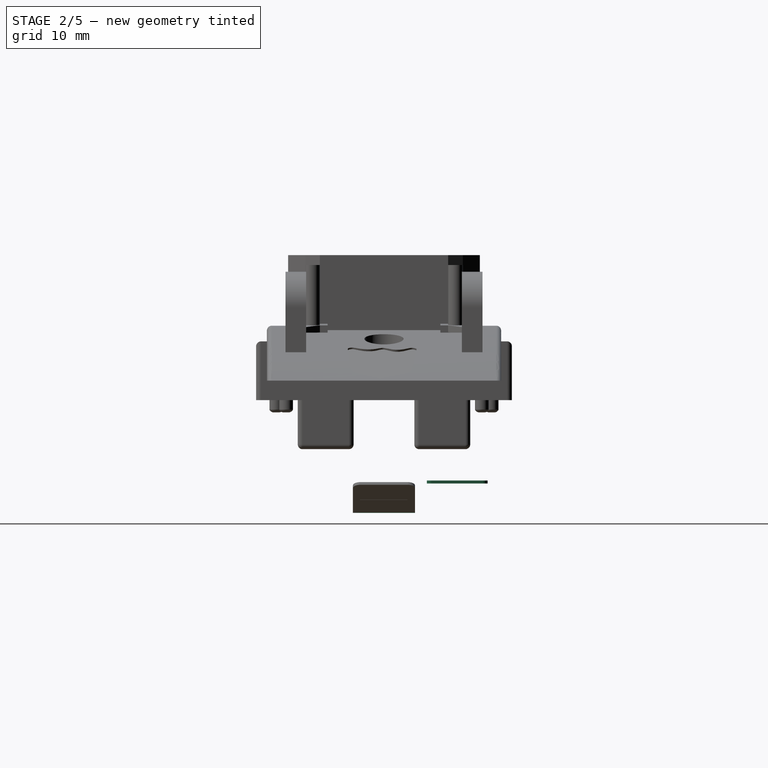
[diagram: stage 2 of 5 — right view after this stage's code; geometry added in this stage tinted green]
FEATURE [PartDesign::Body] Body005  label="Sticker1"
  AllowCompound = false
  Group = -> [Binder004,Sketch018,Pad004,Sketch019,Pocket013,Sketch020,Pocket014,Sketch021,Pocket015]
  Origin = -> Origin005
  Tip = -> Pocket015
FEATURE [Image::ImagePlane] Sticker6  label="Sticker6_Pre"
  Placement = pos=(-5.85,7.45,0) rot=(0,0,1;1.5708rad)
  XSize = 6.61615
  YSize = 10.1115
FEATURE [PartDesign::SubShapeBinder] Binder005
  BindCopyOnChange = 0
  BindMode = 2
  ClaimChildren = false
  Context = -> Body006 [Binder005.]
  Fuse = false
  MakeFace = true
  OffsetFill = false
  OffsetIntersection = false
  OffsetJoinType = 0
  OffsetOpenResult = false
  PartialLoad = false
  Refine = true
  Relative = true
  _Version = 2
FEATURE [Sketcher::SketchObject] Sketch022
  ArcFitTolerance = 1e-06
  AttachmentSupport = -> [Binder005]
  ExternalGeometry = -> [Binder005]
  FullyConstrained = true
  MakeInternals = false
  MapMode = 5
  Placement = pos=(0,0,-8.2) rot=(1,0,0;3.14159rad)
  sketch-geometry (12):
    g0: LineSegment StartX=-10.65 StartY=-4.88 StartZ=0 EndX=-10.65 EndY=-10.07 EndZ=0
    g1: LineSegment StartX=-10.15 StartY=-10.57 StartZ=0 EndX=-1.73 EndY=-10.57 EndZ=0
    g2: LineSegment StartX=-1.23 StartY=-10.07 StartZ=0 EndX=-1.23 EndY=-4.88 EndZ=0
    g3: LineSegment StartX=-1.73 StartY=-4.38 StartZ=0 EndX=-10.15 EndY=-4.38 EndZ=0
    g4: ArcOfCircle CenterX=-1.73 CenterY=-4.88 CenterZ=0 NormalX=0 NormalY=0 NormalZ=1 AngleXU=0 Radius=0.5 StartAngle=0 EndAngle=1.5708
    g5: GeomPoint [constr] X=-1.23 Y=-4.38 Z=0
    g6: ArcOfCircle CenterX=-10.15 CenterY=-4.88 CenterZ=0 NormalX=0 NormalY=0 NormalZ=1 AngleXU=0 Radius=0.5 StartAngle=1.5708 EndAngle=3.14159
    g7: GeomPoint [constr] X=-10.65 Y=-4.38 Z=0
    g8: ArcOfCircle CenterX=-10.15 CenterY=-10.07 CenterZ=0 NormalX=0 NormalY=0 NormalZ=1 AngleXU=0 Radius=0.5 StartAngle=3.14159 EndAngle=4.71239
    g9: GeomPoint [constr] X=-10.65 Y=-10.57 Z=0
    g10: ArcOfCircle CenterX=-1.73 CenterY=-10.07 CenterZ=0 NormalX=0 NormalY=0 NormalZ=1 AngleXU=0 Radius=0.5 StartAngle=4.71239 EndAngle=6.28319
    g11: GeomPoint [constr] X=-1.23 Y=-10.57 Z=0
  constraints (29):
    c: Vertical(g0)
    c: Vertical(g2)
    c: Horizontal(g1)
    c: Horizontal(g3)
    c: PointOnObject(g5,g2)
    c: PointOnObject(g5,g3)
    c: Tangent(g2,g4) = -1.5708
    c: Tangent(g3,g4) = -1.5708
    c: PointOnObject(g7,g0)
    c: PointOnObject(g7,g3)
    c: Tangent(g0,g6) = -1.5708
    c: Tangent(g3,g6) = -1.5708
    c: PointOnObject(g9,g0)
    c: PointOnObject(g9,g1)
    c: Tangent(g0,g8) = -1.5708
    c: Tangent(g1,g8) = -1.5708
    c: PointOnObject(g11,g1)
    c: PointOnObject(g11,g2)
    c: Tangent(g1,g10) = -1.5708
    c: Tangent(g2,g10) = -1.5708
    c: DistanceX(g-9,g0) = 0.08
    c: DistanceX(g2,g-7) = 0.08
    c: DistanceY(g3,g-7) = 0.08
    c: DistanceY(g-5,g1) = 0.08
    c: Radius(g-5) = 0.5
    c: Radius(g10) = 0.5
    c: Radius(g4) = 0.5
    c: Radius(g6) = 0.5
    c: Radius(g8) = 0.5
FEATURE [PartDesign::Pad] Pad005
  Direction = (0,0,-1)
  Length = 0.3
  Length2 = 10
  Profile = -> Sketch022
  ReferenceAxis = -> Sketch022 [N_Axis]
  Refine = true
  Suppressed = false
  Type = 0
FEATURE [Sketcher::SketchObject] Sketch023
  ArcFitTolerance = 1e-06
  AttachmentSupport = -> [Pad005]
  FullyConstrained = false
  MakeInternals = false
  MapMode = 5
  Placement = pos=(0,0,-8.5) rot=(1,0,0;3.14159rad)
  sketch-geometry (50):
    g0: Circle CenterX=-3.28088 CenterY=-9.09503 CenterZ=0 NormalX=0 NormalY=0 NormalZ=1 AngleXU=0 Radius=1.15364
    g1: ArcOfCircle CenterX=-3.28088 CenterY=-9.09503 CenterZ=0 NormalX=0 NormalY=0 NormalZ=1 AngleXU=0 Radius=0.785016 StartAngle=1.73071 EndAngle=2.98168
    g2: ArcOfCircle CenterX=-3.28088 CenterY=-9.09503 CenterZ=0 NormalX=0 NormalY=0 NormalZ=1 AngleXU=0 Radius=0.785016 StartAngle=0.159913 EndAngle=1.41088
    g3: ArcOfCircle CenterX=-3.28088 CenterY=-9.09503 CenterZ=0 NormalX=0 NormalY=0 NormalZ=1 AngleXU=0 Radius=0.785016 StartAngle=4.8723 EndAngle=6.12327
    g4: ArcOfCircle CenterX=-3.28088 CenterY=-9.09503 CenterZ=0 NormalX=0 NormalY=0 NormalZ=1 AngleXU=0 Radius=0.785016 StartAngle=3.30151 EndAngle=4.55248
    g5: LineSegment StartX=-3.15588 StartY=-8.32003 StartZ=0 EndX=-3.15588 EndY=-8.97004 EndZ=0
    g6: LineSegment StartX=-3.15588 StartY=-8.97004 StartZ=0 EndX=-2.50588 EndY=-8.97004 EndZ=0
    g7: LineSegment StartX=-2.50588 StartY=-9.22003 StartZ=0 EndX=-3.15588 EndY=-9.22003 EndZ=0
    g8: LineSegment StartX=-3.15588 StartY=-9.22003 StartZ=0 EndX=-3.15588 EndY=-9.87004 EndZ=0
    g9: LineSegment StartX=-3.40588 StartY=-9.87004 StartZ=0 EndX=-3.40588 EndY=-9.22003 EndZ=0
    g10: LineSegment StartX=-3.40588 StartY=-9.22003 StartZ=0 EndX=-4.05588 EndY=-9.22003 EndZ=0
    g11: LineSegment StartX=-4.05588 StartY=-8.97004 StartZ=0 EndX=-3.40588 EndY=-8.97004 EndZ=0
    g12: LineSegment StartX=-3.40588 StartY=-8.97004 StartZ=0 EndX=-3.40588 EndY=-8.32003 EndZ=0
    g13: LineSegment [constr] StartX=-3.15588 StartY=-9.22003 StartZ=0 EndX=-3.15588 EndY=-8.97004 EndZ=0
    g14: LineSegment [constr] StartX=-3.40588 StartY=-8.97004 StartZ=0 EndX=-3.15588 EndY=-8.97004 EndZ=0
    g15: LineSegment [constr] StartX=-3.40588 StartY=-8.32003 StartZ=0 EndX=-3.15588 EndY=-8.32003 EndZ=0
    g16: LineSegment [constr] StartX=-4.05588 StartY=-9.22003 StartZ=0 EndX=-4.05588 EndY=-8.97004 EndZ=0
    g17: LineSegment [constr] StartX=-2.50588 StartY=-9.22003 StartZ=0 EndX=-2.50588 EndY=-8.97004 EndZ=0
    g18: LineSegment [constr] StartX=-3.15588 StartY=-9.87004 StartZ=0 EndX=-3.40588 EndY=-9.87004 EndZ=0
    g19: LineSegment [constr] StartX=-3.40588 StartY=-8.97004 StartZ=0 EndX=-3.40588 EndY=-9.22003 EndZ=0
    g20: LineSegment [constr] StartX=-3.40588 StartY=-9.22003 StartZ=0 EndX=-3.15588 EndY=-9.22003 EndZ=0
    g21: Circle CenterX=-3.28247 CenterY=-6.47496 CenterZ=0 NormalX=0 NormalY=0 NormalZ=1 AngleXU=0 Radius=1.15364
    g22: ArcOfCircle CenterX=-3.28247 CenterY=-6.47496 CenterZ=0 NormalX=0 NormalY=0 NormalZ=1 AngleXU=0 Radius=0.785016 StartAngle=1.73071 EndAngle=2.98168
    g23: ArcOfCircle CenterX=-3.28247 CenterY=-6.47496 CenterZ=0 NormalX=0 NormalY=0 NormalZ=1 AngleXU=0 Radius=0.785016 StartAngle=0.159913 EndAngle=1.41088
    g24: ArcOfCircle CenterX=-3.28247 CenterY=-6.47496 CenterZ=0 NormalX=0 NormalY=0 NormalZ=1 AngleXU=0 Radius=0.785016 StartAngle=4.8723 EndAngle=6.12327
    g25: ArcOfCircle CenterX=-3.28247 CenterY=-6.47496 CenterZ=0 NormalX=0 NormalY=0 NormalZ=1 AngleXU=0 Radius=0.785016 StartAngle=3.30151 EndAngle=4.55248
    g26: LineSegment StartX=-3.15747 StartY=-5.69996 StartZ=0 EndX=-3.15747 EndY=-6.34996 EndZ=0
    g27: LineSegment StartX=-3.15747 StartY=-6.34996 StartZ=0 EndX=-2.50747 EndY=-6.34996 EndZ=0
    g28: LineSegment StartX=-2.50747 StartY=-6.59996 StartZ=0 EndX=-3.15747 EndY=-6.59996 EndZ=0
    g29: LineSegment StartX=-3.15747 StartY=-6.59996 StartZ=0 EndX=-3.15747 EndY=-7.24996 EndZ=0
    g30: LineSegment StartX=-3.40747 StartY=-7.24996 StartZ=0 EndX=-3.40747 EndY=-6.59996 EndZ=0
    g31: LineSegment StartX=-3.40747 StartY=-6.59996 StartZ=0 EndX=-4.05747 EndY=-6.59996 EndZ=0
    g32: LineSegment StartX=-4.05747 StartY=-6.34996 StartZ=0 EndX=-3.40747 EndY=-6.34996 EndZ=0
    g33: LineSegment StartX=-3.40747 StartY=-6.34996 StartZ=0 EndX=-3.40747 EndY=-5.69996 EndZ=0
    g34: LineSegment [constr] StartX=-3.15747 StartY=-6.59996 StartZ=0 EndX=-3.15747 EndY=-6.34996 EndZ=0
    g35: LineSegment [constr] StartX=-3.40747 StartY=-6.34996 StartZ=0 EndX=-3.15747 EndY=-6.34996 EndZ=0
    g36: LineSegment [constr] StartX=-3.40747 StartY=-5.69996 StartZ=0 EndX=-3.15747 EndY=-5.69996 EndZ=0
    g37: LineSegment [constr] StartX=-4.05747 StartY=-6.59996 StartZ=0 EndX=-4.05747 EndY=-6.34996 EndZ=0
    g38: LineSegment [constr] StartX=-2.50747 StartY=-6.59996 StartZ=0 EndX=-2.50747 EndY=-6.34996 EndZ=0
    g39: LineSegment [constr] StartX=-3.15747 StartY=-7.24996 StartZ=0 EndX=-3.40747 EndY=-7.24996 EndZ=0
    g40: LineSegment [constr] StartX=-3.40747 StartY=-6.34996 StartZ=0 EndX=-3.40747 EndY=-6.59996 EndZ=0
    g41: LineSegment [constr] StartX=-3.40747 StartY=-6.59996 StartZ=0 EndX=-3.15747 EndY=-6.59996 EndZ=0
    g42: LineSegment StartX=-10.0666 StartY=-5.6923 StartZ=0 EndX=-10.0666 EndY=-9.36218 EndZ=0
    g43: LineSegment StartX=-9.44961 StartY=-9.90079 StartZ=0 EndX=-5.41902 EndY=-9.35142 EndZ=0
    g44: LineSegment StartX=-4.90679 StartY=-8.80231 StartZ=0 EndX=-4.90679 EndY=-5.7796 EndZ=0
    g45: LineSegment StartX=-5.53809 StartY=-5.14831 StartZ=0 EndX=-9.52262 EndY=-5.14831 EndZ=0
    g46: ArcOfCircle CenterX=-9.52262 CenterY=-5.6923 CenterZ=0 NormalX=0 NormalY=0 NormalZ=1 AngleXU=0 Radius=0.543998 StartAngle=1.5708 EndAngle=3.14159
    g47: ArcOfCircle CenterX=-5.53809 CenterY=-5.7796 CenterZ=0 NormalX=0 NormalY=0 NormalZ=1 AngleXU=0 Radius=0.631292 StartAngle=1e-16 EndAngle=1.5708
    g48: ArcOfCircle CenterX=-5.42592 CenterY=-8.83152 CenterZ=0 NormalX=0 NormalY=0 NormalZ=1 AngleXU=0 Radius=0.519945 StartAngle=4.72566 EndAngle=6.3394
    g49: ArcOfCircle CenterX=-9.52303 CenterY=-9.36218 CenterZ=0 NormalX=0 NormalY=0 NormalZ=1 AngleXU=0 Radius=0.543595 StartAngle=3.14159 EndAngle=4.84785
  constraints (115):
    c: Coincident(g1,g3)
    c: Coincident(g0,g1)
    c: Coincident(g2,g0)
    c: Coincident(g4,g0)
    c: Vertical(g5)
    c: Coincident(g6,g5)
    c: Horizontal(g6)
    c: Horizontal(g7)
    c: Coincident(g8,g7)
    c: Vertical(g9)
    c: Coincident(g10,g9)
    c: Horizontal(g10)
    c: Horizontal(g11)
    c: Coincident(g12,g11)
    c: Vertical(g12)
    c: Vertical(g8)
    c: Coincident(g13,g7)
    c: Coincident(g13,g5)
    c: Coincident(g14,g11)
    c: Coincident(g14,g5)
    c: Horizontal(g14)
    c: Vertical(g13)
    c: DistanceX(g14,g14) = 0.25
    c: Coincident(g15,g12)
    c: Coincident(g15,g5)
    c: Coincident(g16,g10)
    c: Coincident(g16,g11)
    c: Coincident(g17,g7)
    c: Coincident(g17,g6)
    c: Coincident(g18,g8)
    c: Coincident(g18,g9)
    c: Horizontal(g18)
    c: Horizontal(g15)
    c: Vertical(g16)
    c: Vertical(g17)
    c: Coincident(g1,g12)
    c: Coincident(g11,g1)
    c: Coincident(g4,g10)
    c: Coincident(g4,g9)
    c: Coincident(g3,g8)
    c: Coincident(g3,g7)
    c: Coincident(g6,g2)
    c: Coincident(g2,g5)
    c: Coincident(g19,g11)
    c: Coincident(g19,g9)
    c: Vertical(g19)
    c: Coincident(g20,g9)
    c: Coincident(g20,g7)
    c: DistanceY(g19,g19) = 0.25
    c: DistanceY(g12,g12) = 0.65
    c: DistanceY(g9,g9) = 0.65
    c: DistanceX(g11,g11) = 0.65
    c: Coincident(g22,g24)
    c: Coincident(g21,g22)
    c: Coincident(g23,g21)
    c: Coincident(g25,g21)
    c: Vertical(g26)
    c: Coincident(g27,g26)
    c: Horizontal(g27)
    c: Horizontal(g28)
    c: Coincident(g29,g28)
    c: Vertical(g30)
    c: Coincident(g31,g30)
    c: Horizontal(g31)
    c: Horizontal(g32)
    c: Coincident(g33,g32)
    c: Vertical(g33)
    c: Vertical(g29)
    c: Coincident(g34,g28)
    c: Coincident(g34,g26)
    c: Coincident(g35,g32)
    c: Coincident(g35,g26)
    c: Horizontal(g35)
    c: Vertical(g34)
    c: DistanceX(g35,g35) = 0.25
    c: Coincident(g36,g33)
    c: Coincident(g36,g26)
    c: Coincident(g37,g31)
    c: Coincident(g37,g32)
    c: Coincident(g38,g28)
    c: Coincident(g38,g27)
    c: Coincident(g39,g29)
    c: Coincident(g39,g30)
    c: Horizontal(g39)
    c: Horizontal(g36)
    c: Vertical(g37)
    c: Vertical(g38)
    c: Coincident(g22,g33)
    c: Coincident(g32,g22)
    c: Coincident(g25,g31)
    c: Coincident(g25,g30)
    c: Coincident(g24,g29)
    c: Coincident(g24,g28)
    c: Coincident(g27,g23)
    c: Coincident(g23,g26)
    c: Coincident(g40,g32)
    c: Coincident(g40,g30)
    c: Vertical(g40)
    c: Coincident(g41,g30)
    c: Coincident(g41,g28)
    c: DistanceY(g40,g40) = 0.25
    c: DistanceY(g33,g33) = 0.65
    c: DistanceY(g30,g30) = 0.65
    c: DistanceX(g32,g32) = 0.65
    c: Vertical(g42)
    c: Vertical(g44)
    c: Horizontal(g45)
    c: Coincident(g48,g43)
    c: Coincident(g48,g44)
    c: Tangent(g49,g43) = -1.5708
    c: Tangent(g49,g42) = -1.5708
    c: Tangent(g46,g45) = -1.5708
    c: Tangent(g46,g42) = -1.5708
    c: Tangent(g47,g44) = -1.5708
    c: Tangent(g47,g45) = -1.5708
FEATURE [PartDesign::Pocket] Pocket016
  BaseFeature = -> Pad005
  Direction = (0,0,1)
  Length = 0.001
  Length2 = 5
  Profile = -> Sketch023
  ReferenceAxis = -> Sketch023 [N_Axis]
  Refine = true
  Suppressed = false
  Type = 0
FEATURE [Sketcher::SketchObject] Sketch024
  ArcFitTolerance = 1e-06
  AttachmentSupport = -> [Pocket016]
  FullyConstrained = false
  MakeInternals = false
  MapMode = 5
  Placement = pos=(0,0,-8.499) rot=(1,0,0;3.14159rad)
  sketch-geometry (16):
    g0: LineSegment StartX=-9.05812 StartY=-7.11195 StartZ=0 EndX=-6.8713 EndY=-7.11195 EndZ=0
    g1: LineSegment StartX=-6.45812 StartY=-7.52513 StartZ=0 EndX=-6.45812 EndY=-8.95997 EndZ=0
    g2: LineSegment StartX=-6.84005 StartY=-9.38921 StartZ=0 EndX=-9.09304 EndY=-9.65288 EndZ=0
    g3: LineSegment StartX=-9.49263 StartY=-9.29733 StartZ=0 EndX=-9.49263 EndY=-7.54647 EndZ=0
    g4: LineSegment StartX=-9.66262 StartY=-9.56809 StartZ=0 EndX=-9.66262 EndY=-6.26219 EndZ=0
    g5: LineSegment StartX=-9.16183 StartY=-5.76141 StartZ=0 EndX=-5.13277 EndY=-5.76141 EndZ=0
    g6: LineSegment StartX=-5.39491 StartY=-5.35588 StartZ=0 EndX=-9.44669 EndY=-5.35588 EndZ=0
    g7: LineSegment StartX=-9.9212 StartY=-5.83038 StartZ=0 EndX=-9.9212 EndY=-9.31763 EndZ=0
    g8: ArcOfCircle CenterX=-9.67092 CenterY=-9.31796 CenterZ=0 NormalX=0 NormalY=0 NormalZ=1 AngleXU=0 Radius=0.250276 StartAngle=3.14029 EndAngle=4.74559
    g9: ArcOfCircle CenterX=-9.16183 CenterY=-6.26219 CenterZ=0 NormalX=0 NormalY=0 NormalZ=1 AngleXU=0 Radius=0.500783 StartAngle=1.5708 EndAngle=3.14159
    g10: ArcOfCircle CenterX=-9.44669 CenterY=-5.83038 CenterZ=0 NormalX=0 NormalY=0 NormalZ=1 AngleXU=0 Radius=0.474506 StartAngle=1.5708 EndAngle=3.14159
    g11: ArcOfCircle CenterX=-5.49693 CenterY=-5.70932 CenterZ=0 NormalX=0 NormalY=0 NormalZ=1 AngleXU=0 Radius=0.367872 StartAngle=6.14112 EndAngle=7.57296
    g12: ArcOfCircle CenterX=-9.13465 CenterY=-9.29733 CenterZ=0 NormalX=0 NormalY=0 NormalZ=1 AngleXU=0 Radius=0.357979 StartAngle=3.14159 EndAngle=4.82889
    g13: ArcOfCircle CenterX=-6.89029 CenterY=-8.95997 CenterZ=0 NormalX=0 NormalY=0 NormalZ=1 AngleXU=0 Radius=0.43217 StartAngle=4.82889 EndAngle=6.28319
    g14: ArcOfCircle CenterX=-6.8713 CenterY=-7.52513 CenterZ=0 NormalX=0 NormalY=0 NormalZ=1 AngleXU=0 Radius=0.413178 StartAngle=7e-16 EndAngle=1.5708
    g15: ArcOfCircle CenterX=-9.05812 CenterY=-7.54647 CenterZ=0 NormalX=0 NormalY=0 NormalZ=1 AngleXU=0 Radius=0.434513 StartAngle=1.5708 EndAngle=3.14159
  constraints (23):
    c: Horizontal(g0)
    c: Vertical(g1)
    c: Vertical(g3)
    c: Vertical(g4)
    c: Horizontal(g5)
    c: Horizontal(g6)
    c: Vertical(g7)
    c: Coincident(g8,g4)
    c: Coincident(g8,g7)
    c: Coincident(g11,g5)
    c: Coincident(g11,g6)
    c: Tangent(g15,g0) = 1.5708
    c: Tangent(g15,g3) = 1.5708
    c: Tangent(g14,g0) = 1.5708
    c: Tangent(g14,g1) = 1.5708
    c: Tangent(g13,g1) = 1.5708
    c: Tangent(g12,g2) = 1.5708
    c: Tangent(g13,g2) = 1.5708
    c: Tangent(g12,g3) = 1.5708
    c: Tangent(g9,g4) = 1.5708
    c: Tangent(g9,g5) = 1.5708
    c: Tangent(g10,g7) = -1.5708
    c: Tangent(g10,g6) = -1.5708
FEATURE [PartDesign::Pocket] Pocket017
  BaseFeature = -> Pocket016
  Direction = (0,0,1)
  Length = 0.001
  Length2 = 5
  Profile = -> Sketch024
  ReferenceAxis = -> Sketch024 [N_Axis]
  Refine = true
  Suppressed = false
  Type = 0
FEATURE [Sketcher::SketchObject] Sketch025
  ArcFitTolerance = 1e-06
  AttachmentSupport = -> [Pocket017]
  FullyConstrained = false
  MakeInternals = false
  MapMode = 5
  Placement = pos=(0,0,-8.498) rot=(1,0,0;3.14159rad)
  sketch-geometry (10):
    g0: Circle CenterX=-8.64361 CenterY=-8.95139 CenterZ=0 NormalX=0 NormalY=0 NormalZ=1 AngleXU=0 Radius=0.22
    g1: Circle CenterX=-8.64361 CenterY=-8.95139 CenterZ=0 NormalX=0 NormalY=0 NormalZ=1 AngleXU=0 Radius=0.5
    g2: Circle CenterX=-7.47119 CenterY=-7.83358 CenterZ=0 NormalX=0 NormalY=0 NormalZ=1 AngleXU=0 Radius=0.22
    g3: Circle CenterX=-7.47119 CenterY=-7.83358 CenterZ=0 NormalX=0 NormalY=0 NormalZ=1 AngleXU=0 Radius=0.5
    g4: Circle CenterX=-8.66875 CenterY=-7.82857 CenterZ=0 NormalX=0 NormalY=0 NormalZ=1 AngleXU=0 Radius=0.22
    g5: Circle CenterX=-8.66875 CenterY=-7.82857 CenterZ=0 NormalX=0 NormalY=0 NormalZ=1 AngleXU=0 Radius=0.5
    g6: LineSegment StartX=-7.77515 StartY=-8.6366 StartZ=0 EndX=-7.77515 EndY=-8.9428 EndZ=0
    g7: LineSegment StartX=-7.77515 StartY=-8.9428 StartZ=0 EndX=-6.9376 EndY=-8.9428 EndZ=0
    g8: LineSegment StartX=-6.9376 StartY=-8.9428 StartZ=0 EndX=-6.9376 EndY=-8.6366 EndZ=0
    g9: LineSegment StartX=-6.9376 StartY=-8.6366 StartZ=0 EndX=-7.77515 EndY=-8.6366 EndZ=0
  constraints (17):
    c: Coincident(g1,g0)
    c: Radius(g0) = 0.22
    c: Radius(g1) = 0.5
    c: Coincident(g3,g2)
    c: Radius(g2) = 0.22
    c: Radius(g3) = 0.5
    c: Coincident(g5,g4)
    c: Radius(g4) = 0.22
    c: Radius(g5) = 0.5
    c: Coincident(g6,g7)
    c: Coincident(g7,g8)
    c: Coincident(g8,g9)
    c: Coincident(g9,g6)
    c: Vertical(g6)
    c: Vertical(g8)
    c: Horizontal(g7)
    c: Horizontal(g9)
FEATURE [PartDesign::Pocket] Pocket018
  BaseFeature = -> Pocket017
  Direction = (0,0,1)
  Length = 0.001
  Length2 = 5
  Profile = -> Sketch025
  ReferenceAxis = -> Sketch025 [N_Axis]
  Refine = true
  Suppressed = false
  Type = 0
FEATURE [PartDesign::Body] Body006  label="Sticker6"
  AllowCompound = false
  Group = -> [Binder005,Sketch022,Pad005,Sketch023,Pocket016,Sketch024,Pocket017,Sketch025,Pocket018,Sketch026,Pocket019]
  Origin = -> Origin006
  Tip = -> Pocket019
FEATURE [PartDesign::SubShapeBinder] Binder006
  BindCopyOnChange = 0
  BindMode = 2
  ClaimChildren = false
  Context = -> Body007 [Binder006.]
  Fuse = false
  MakeFace = true
  OffsetFill = false
  OffsetIntersection = false
  OffsetJoinType = 0
  OffsetOpenResult = false
  PartialLoad = false
  Refine = true
  Relative = true
  _Version = 2
FEATURE [Sketcher::SketchObject] Sketch027
  ArcFitTolerance = 1e-06
  AttachmentSupport = -> [Binder006]
  ExternalGeometry = -> [Binder006]
  FullyConstrained = false
  MakeInternals = false
  MapMode = 5
  Placement = pos=(0,0,-11.2) rot=(1,0,0;3.14159rad)
  sketch-geometry (12):
    g0: LineSegment StartX=-10.0589 StartY=1.55239 StartZ=0 EndX=-7.36773 EndY=3.01263 EndZ=0
    g1: LineSegment StartX=-6.74773 StartY=3.17 StartZ=0 EndX=-6.15082 EndY=3.17 EndZ=0
    g2: LineSegment StartX=-6.15082 StartY=3.17 StartZ=0 EndX=-6.15082 EndY=-3.17 EndZ=0
    g3: LineSegment StartX=-6.15082 StartY=-3.17 StartZ=0 EndX=-6.74773 EndY=-3.17 EndZ=0
    g4: ArcOfCircle CenterX=-9.8681 CenterY=1.20081 CenterZ=0 NormalX=0 NormalY=0 NormalZ=1 AngleXU=0 Radius=0.4 StartAngle=2.06795 EndAngle=3.14159
    g5: ArcOfCircle CenterX=-6.74773 CenterY=-1.87 CenterZ=0 NormalX=0 NormalY=0 NormalZ=1 AngleXU=0 Radius=1.3 StartAngle=4.21524 EndAngle=4.71239
    g6: ArcOfCircle CenterX=-6.74773 CenterY=1.87 CenterZ=0 NormalX=0 NormalY=0 NormalZ=1 AngleXU=0 Radius=1.3 StartAngle=1.5708 EndAngle=2.06795
    g7: LineSegment StartX=-7.36773 StartY=-3.01263 StartZ=0 EndX=-10.0589 EndY=-1.55239 EndZ=0
    g8: LineSegment StartX=-10.2681 StartY=-1.20081 StartZ=0 EndX=-10.2681 EndY=1.20081 EndZ=0
    g9: ArcOfCircle CenterX=-9.8681 CenterY=-1.20081 CenterZ=0 NormalX=0 NormalY=0 NormalZ=1 AngleXU=0 Radius=0.4 StartAngle=3.14159 EndAngle=4.21524
    g10: LineSegment [constr] StartX=-7.46618 StartY=2.95921 StartZ=0 EndX=-7.50434 EndY=3.02952 EndZ=0
    g11: LineSegment [constr] StartX=-9.9227 StartY=-1.7173 StartZ=0 EndX=-9.88455 EndY=-1.64698 EndZ=0
  constraints (34):
    c: Horizontal(g1)
    c: Coincident(g2,g1)
    c: Vertical(g2)
    c: Coincident(g3,g2)
    c: Horizontal(g3)
    c: Tangent(g6,g1) = 1.5708
    c: Tangent(g6,g0) = 1.5708
    c: Tangent(g4,g0) = 1.5708
    c: Tangent(g5,g3) = 1.5708
    c: DistanceY(g-12,g2) = 0.08
    c: DistanceY(g1,g-4) = 0.08
    c: DistanceX(g1,g-4) = 0.08
    c: Parallel(g-5,g0)
    c: Vertical(g8)
    c: Parallel(g7,g-10)
    c: DistanceX(g-9,g8) = 0.08
    c: Tangent(g9,g8) = 1.5708
    c: Tangent(g8,g4) = 1.5708
    c: Tangent(g9,g7) = 1.5708
    c: PointOnObject(g10,g0)
    c: PointOnObject(g10,g-5)
    c: Perpendicular(g-5,g10)
    c: PointOnObject(g11,g-10)
    c: PointOnObject(g11,g7)
    c: Perpendicular(g11,g-10)
    c: Distance(g10) = 0.08
    c: Distance(g11) = 0.08
    c: Radius(g-7) = 0.4
    c: Radius(g4) = 0.4
    c: Radius(g9) = 0.4
    c: Radius(g-11) = 1.3
    c: Radius(g5) = 1.3
    c: Radius(g6) = 1.3
    c: Tangent(g7,g5) = 1.5708
FEATURE [PartDesign::Pad] Pad006
  Direction = (0,0,-1)
  Length = 0.3
  Length2 = 10
  Profile = -> Sketch027
  ReferenceAxis = -> Sketch027 [N_Axis]
  Refine = true
  Suppressed = false
  Type = 0
FEATURE [Sketcher::SketchObject] Sketch028
  ArcFitTolerance = 1e-06
  AttachmentSupport = -> [Pad006]
  FullyConstrained = false
  MakeInternals = false
  MapMode = 5
  Placement = pos=(0,0,-11.5) rot=(1,0,0;3.14159rad)
  sketch-geometry (18):
    g0: LineSegment StartX=-9.26434 StartY=1.56432 StartZ=0 EndX=-9.26434 EndY=-0.657874 EndZ=0
    g1: LineSegment StartX=-9.26434 StartY=1.56432 StartZ=0 EndX=-8.35926 EndY=1.74546 EndZ=0
    g2: LineSegment StartX=-8.35926 StartY=1.74546 StartZ=0 EndX=-8.35926 EndY=-0.505374 EndZ=0
    g3: LineSegment StartX=-7.83301 StartY=-0.782088 StartZ=0 EndX=-7.83301 EndY=1.811 EndZ=0
    g4: LineSegment StartX=-7.83301 StartY=1.811 StartZ=0 EndX=-6.96004 EndY=1.98571 EndZ=0
    g5: LineSegment StartX=-6.96004 StartY=1.98571 StartZ=0 EndX=-6.96004 EndY=-0.635376 EndZ=0
    g6: ArcOfCircle CenterX=-8.74758 CenterY=-0.962766 CenterZ=0 NormalX=0 NormalY=0 NormalZ=1 AngleXU=0 Radius=0.6 StartAngle=2.60855 EndAngle=7.15007
    g7: ArcOfCircle CenterX=-7.32939 CenterY=-1.10822 CenterZ=0 NormalX=0 NormalY=0 NormalZ=1 AngleXU=0 Radius=0.6 StartAngle=2.56692 EndAngle=7.19087
    g8: Circle CenterX=-8.74758 CenterY=-0.962766 CenterZ=0 NormalX=0 NormalY=0 NormalZ=1 AngleXU=0 Radius=0.3
    g9: Circle CenterX=-7.32939 CenterY=-1.10822 CenterZ=0 NormalX=0 NormalY=0 NormalZ=1 AngleXU=0 Radius=0.3
    g10: LineSegment StartX=-9.01434 StartY=1.38625 StartZ=0 EndX=-9.01434 EndY=-0.417525 EndZ=0
    g11: LineSegment StartX=-9.01434 StartY=-0.417525 StartZ=0 EndX=-8.60926 EndY=-0.417525 EndZ=0
    g12: LineSegment StartX=-8.60926 StartY=-0.417525 StartZ=0 EndX=-8.60926 EndY=1.46733 EndZ=0
    g13: LineSegment StartX=-8.60926 StartY=1.46733 StartZ=0 EndX=-9.01434 EndY=1.38625 EndZ=0
    g14: LineSegment StartX=-7.58301 StartY=1.60838 StartZ=0 EndX=-7.21004 EndY=1.68302 EndZ=0
    g15: LineSegment StartX=-7.21004 StartY=1.68302 StartZ=0 EndX=-7.21004 EndY=-0.45761 EndZ=0
    g16: LineSegment StartX=-7.21004 StartY=-0.45761 StartZ=0 EndX=-7.58301 EndY=-0.45761 EndZ=0
    g17: LineSegment StartX=-7.58301 StartY=-0.45761 StartZ=0 EndX=-7.58301 EndY=1.60838 EndZ=0
  constraints (39):
    c: Vertical(g0)
    c: Coincident(g1,g0)
    c: Coincident(g2,g1)
    c: Vertical(g2)
    c: Vertical(g3)
    c: Coincident(g4,g3)
    c: Coincident(g5,g4)
    c: Vertical(g5)
    c: Coincident(g6,g0)
    c: Coincident(g6,g2)
    c: Coincident(g7,g3)
    c: Coincident(g7,g5)
    c: Coincident(g8,g6)
    c: Coincident(g9,g7)
    c: Radius(g6) = 0.6
    c: Radius(g7) = 0.6
    c: Radius(g8) = 0.3
    c: Radius(g9) = 0.3
    c: Parallel(g4,g1)
    c: Vertical(g10)
    c: Coincident(g11,g10)
    c: Horizontal(g11)
    c: Coincident(g12,g11)
    c: Vertical(g12)
    c: Coincident(g13,g12)
    c: Coincident(g13,g10)
    c: Coincident(g15,g14)
    c: Vertical(g15)
    c: Coincident(g16,g15)
    c: Horizontal(g16)
    c: Coincident(g17,g16)
    c: Coincident(g17,g14)
    c: Vertical(g17)
    c: Parallel(g4,g14)
    c: Parallel(g1,g13)
    c: DistanceX(g0,g10) = 0.25
    c: DistanceX(g12,g1) = 0.25
    c: DistanceX(g3,g14) = 0.25
    c: DistanceX(g14,g4) = 0.25
FEATURE [PartDesign::Pocket] Pocket020
  BaseFeature = -> Pad006
  Direction = (0,0,1)
  Length = 0.001
  Length2 = 5
  Profile = -> Sketch028
  ReferenceAxis = -> Sketch028 [N_Axis]
  Refine = true
  Suppressed = false
  Type = 0
FEATURE [Sketcher::SketchObject] Sketch030
  ArcFitTolerance = 1e-06
  AttachmentSupport = -> [Pad007]
  ExternalGeometry = -> [Pad007]
  FullyConstrained = false
  MakeInternals = false
  MapMode = 5
  Placement = pos=(3.4,0,-6.8) rot=(0.973249,0,0.229753;3.14159rad)
  sketch-geometry (18):
    g0: LineSegment StartX=-9.71168 StartY=2.29619 StartZ=0 EndX=-9.71168 EndY=-2.28369 EndZ=0
    g1: LineSegment StartX=-9.71168 StartY=-2.28369 StartZ=0 EndX=-9.26168 EndY=-2.28369 EndZ=0
    g2: LineSegment StartX=-9.26168 StartY=-2.28369 StartZ=0 EndX=-9.26168 EndY=2.29619 EndZ=0
    g3: LineSegment StartX=-9.26168 StartY=2.29619 StartZ=0 EndX=-9.71168 EndY=2.29619 EndZ=0
    g4: LineSegment StartX=-8.72889 StartY=-2.28369 StartZ=0 EndX=-8.27889 EndY=-2.28369 EndZ=0
    g5: LineSegment StartX=-8.27889 StartY=-2.28369 StartZ=0 EndX=-8.27889 EndY=2.29619 EndZ=0
    g6: LineSegment StartX=-8.27889 StartY=2.29619 StartZ=0 EndX=-8.72889 EndY=2.29619 EndZ=0
    g7: LineSegment StartX=-8.72889 StartY=2.29619 StartZ=0 EndX=-8.72889 EndY=-2.28369 EndZ=0
    g8: LineSegment [constr] StartX=-8.72889 StartY=2.29619 StartZ=0 EndX=-9.26168 EndY=2.29619 EndZ=0
    g9: LineSegment [constr] StartX=-8.72889 StartY=-2.28369 StartZ=0 EndX=-9.23511 EndY=-2.2633 EndZ=0
    g10: LineSegment StartX=-4.0987 StartY=2.42 StartZ=0 EndX=-7.53427 EndY=2.42 EndZ=0
    g11: LineSegment StartX=-7.53427 StartY=2.42 StartZ=0 EndX=-7.53427 EndY=-2.42 EndZ=0
    g12: LineSegment StartX=-7.53427 StartY=-2.42 StartZ=0 EndX=-4.0987 EndY=-2.42 EndZ=0
    g13: LineSegment StartX=-4.0987 StartY=-2.42 StartZ=0 EndX=-4.0987 EndY=-1.82 EndZ=0
    g14: LineSegment StartX=-4.0987 StartY=-1.82 StartZ=0 EndX=-6.93427 EndY=-1.82 EndZ=0
    g15: LineSegment StartX=-6.93427 StartY=-1.82 StartZ=0 EndX=-6.93427 EndY=1.82 EndZ=0
    g16: LineSegment StartX=-6.93427 StartY=1.82 StartZ=0 EndX=-4.0987 EndY=1.82 EndZ=0
    g17: LineSegment StartX=-4.0987 StartY=1.82 StartZ=0 EndX=-4.0987 EndY=2.42 EndZ=0
  constraints (43):
    c: Coincident(g0,g1)
    c: Coincident(g1,g2)
    c: Coincident(g2,g3)
    c: Coincident(g3,g0)
    c: Vertical(g0)
    c: Vertical(g2)
    c: Horizontal(g1)
    c: Horizontal(g3)
    c: Coincident(g4,g5)
    c: Coincident(g5,g6)
    c: Coincident(g6,g7)
    c: Coincident(g7,g4)
    c: Horizontal(g4)
    c: Horizontal(g6)
    c: Vertical(g5)
    c: Vertical(g7)
    c: Coincident(g8,g6)
    c: Coincident(g8,g2)
    c: Horizontal(g8)
    c: DistanceX(g3,g3) = 0.45
    c: DistanceX(g6,g6) = 0.45
    c: Coincident(g9,g4)
    c: Coincident(g10,g-3)
    c: Horizontal(g10)
    c: Coincident(g11,g10)
    c: Vertical(g11)
    c: Coincident(g12,g11)
    c: Coincident(g12,g-3)
    c: Horizontal(g12)
    c: Coincident(g13,g12)
    c: PointOnObject(g13,g-3)
    c: Coincident(g14,g13)
    c: Horizontal(g14)
    c: Coincident(g15,g14)
    c: Vertical(g15)
    c: Coincident(g16,g15)
    c: Horizontal(g16)
    c: Coincident(g17,g16)
    c: Coincident(g17,g10)
    c: PointOnObject(g16,g-3)
    c: DistanceY(g17,g17) = 0.6
    c: DistanceY(g13,g13) = 0.6
    c: DistanceX(g11,g14) = 0.6
FEATURE [PartDesign::Pocket] Pocket021
  BaseFeature = -> Pad007
  Direction = (-0.447214,0,0.894427)
  Length = 0.001
  Length2 = 5
  Profile = -> Sketch030
  ReferenceAxis = -> Sketch030 [N_Axis]
  Refine = true
  Suppressed = false
  Type = 0
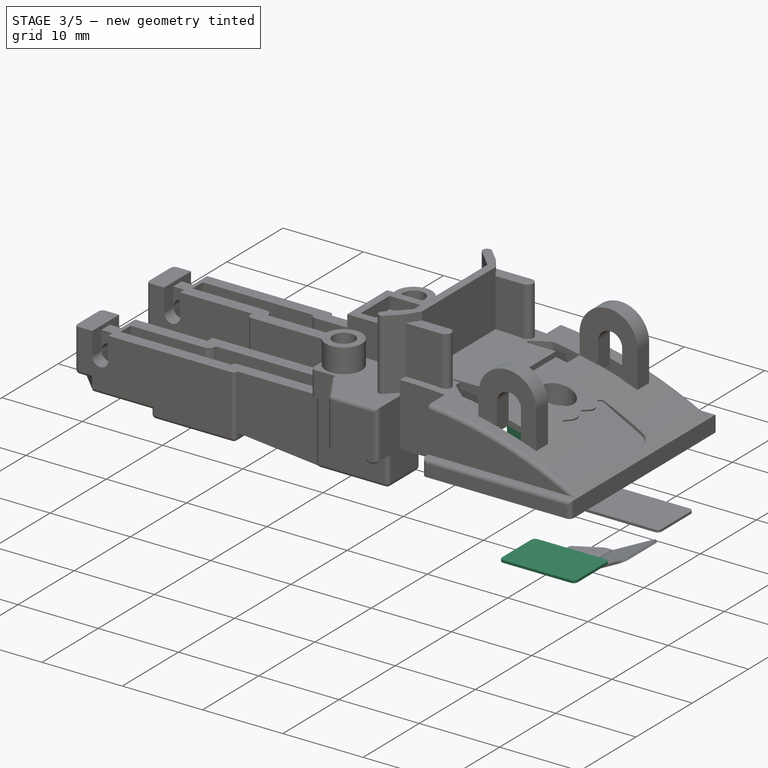
[diagram: stage 3 of 5 — iso view after this stage's code; geometry added in this stage tinted green]
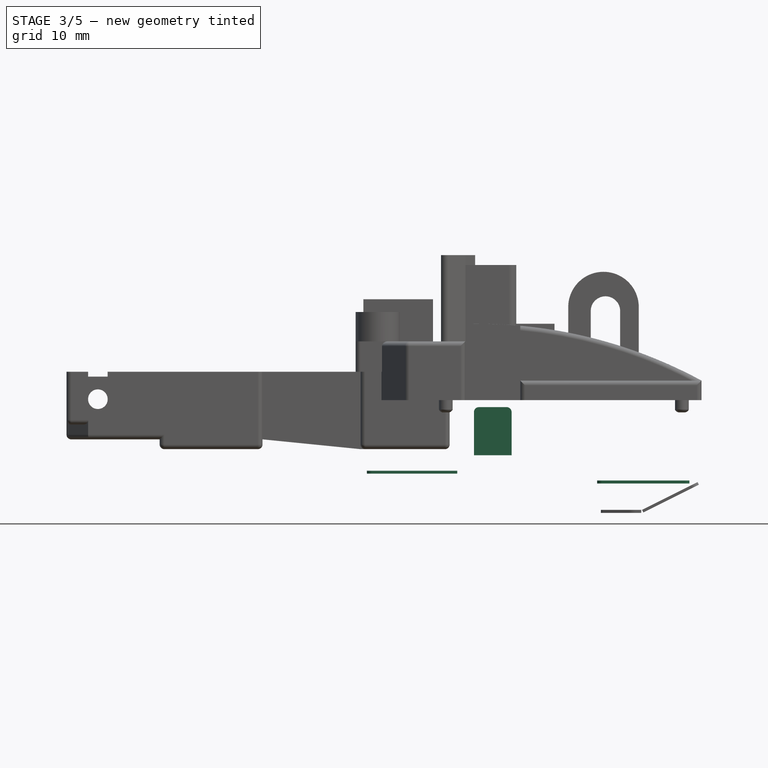
[diagram: stage 3 of 5 — front view after this stage's code; geometry added in this stage tinted green]
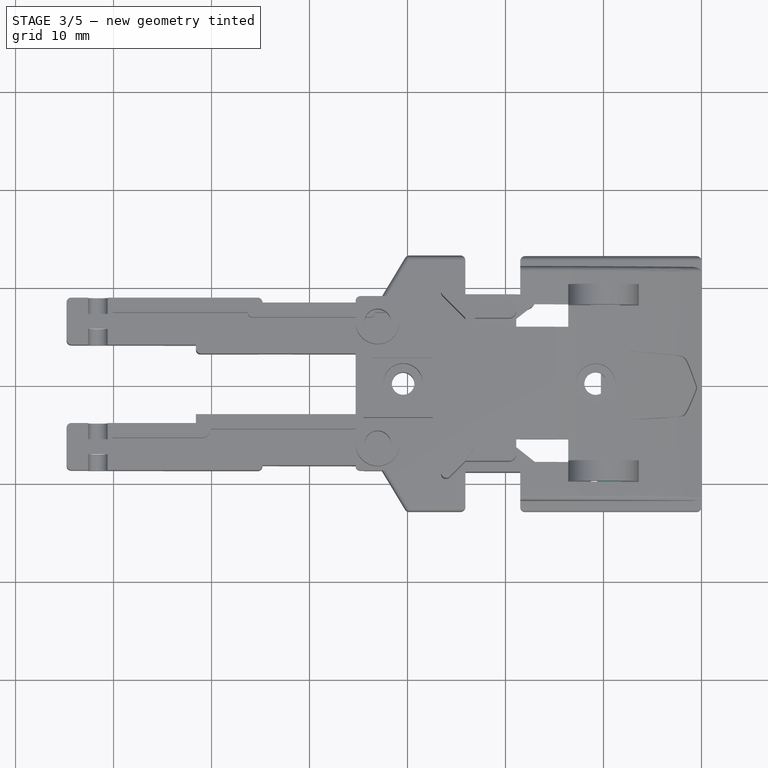
[diagram: stage 3 of 5 — top view after this stage's code; geometry added in this stage tinted green]
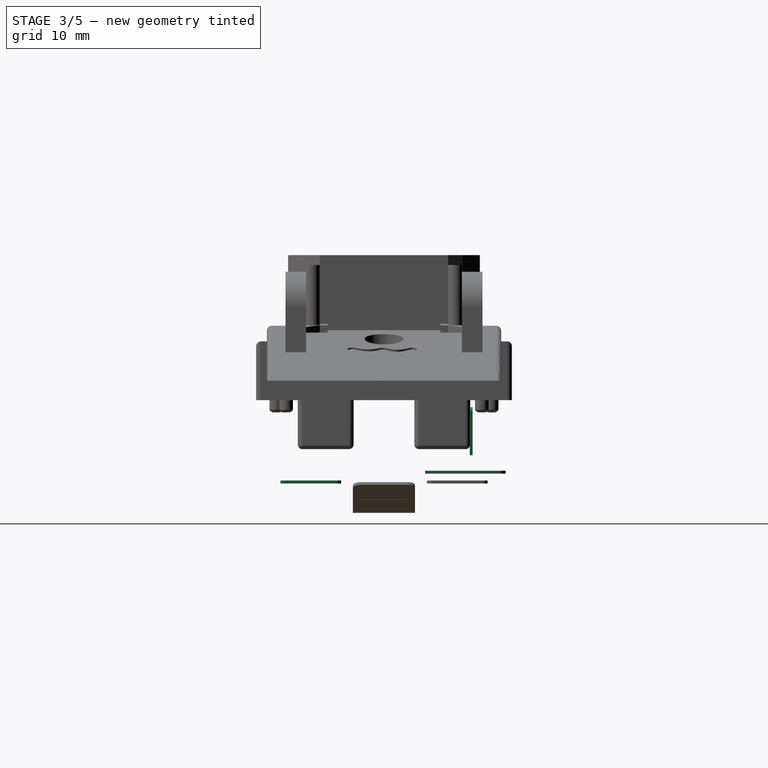
[diagram: stage 3 of 5 — right view after this stage's code; geometry added in this stage tinted green]
FEATURE [PartDesign::Body] Body002  label="Sticker5A"
  AllowCompound = false
  Group = -> [Binder001,Sketch012,Pad001,Sketch013,Pocket010]
  Origin = -> Origin002
  Tip = -> Pocket010
FEATURE [PartDesign::SubShapeBinder] Binder002
  BindCopyOnChange = 0
  BindMode = 2
  ClaimChildren = false
  Context = -> Body003 [Binder002.]
  Fuse = false
  MakeFace = true
  OffsetFill = false
  OffsetIntersection = false
  OffsetJoinType = 0
  OffsetOpenResult = false
  PartialLoad = false
  Refine = true
  Relative = true
  _Version = 2
FEATURE [Sketcher::SketchObject] Sketch014
  ArcFitTolerance = 1e-06
  AttachmentSupport = -> [Binder002]
  ExternalGeometry = -> [Binder002]
  FullyConstrained = true
  MakeInternals = false
  MapMode = 5
  Placement = pos=(0,8.75,-3.2e-15) rot=(0,0.707107,0.707107;3.14159rad)
  sketch-geometry (8):
    g0: LineSegment StartX=19.38 StartY=-1.21 StartZ=0 EndX=19.38 EndY=-5.62 EndZ=0
    g1: LineSegment StartX=19.38 StartY=-5.62 StartZ=0 EndX=23.22 EndY=-5.62 EndZ=0
    g2: LineSegment StartX=23.22 StartY=-5.62 StartZ=0 EndX=23.22 EndY=-1.21 EndZ=0
    g3: LineSegment StartX=22.72 StartY=-0.71 StartZ=0 EndX=19.88 EndY=-0.71 EndZ=0
    g4: ArcOfCircle CenterX=19.88 CenterY=-1.21 CenterZ=0 NormalX=0 NormalY=0 NormalZ=1 AngleXU=0 Radius=0.5 StartAngle=1.5708 EndAngle=3.14159
    g5: GeomPoint [constr] X=19.38 Y=-0.71 Z=0
    g6: ArcOfCircle CenterX=22.72 CenterY=-1.21 CenterZ=0 NormalX=0 NormalY=0 NormalZ=1 AngleXU=0 Radius=0.5 StartAngle=0 EndAngle=1.5708
    g7: GeomPoint [constr] X=23.22 Y=-0.71 Z=0
  constraints (20):
    c: Coincident(g0,g1)
    c: Coincident(g1,g2)
    c: Vertical(g0)
    c: Vertical(g2)
    c: Horizontal(g1)
    c: Horizontal(g3)
    c: PointOnObject(g5,g0)
    c: PointOnObject(g5,g3)
    c: Tangent(g0,g4) = -1.5708
    c: Tangent(g3,g4) = -1.5708
    c: PointOnObject(g7,g2)
    c: PointOnObject(g7,g3)
    c: Tangent(g2,g6) = -1.5708
    c: Tangent(g3,g6) = -1.5708
    c: Radius(g4) = 0.5
    c: Radius(g6) = 0.5
    c: DistanceY(g3,g-3) = 0.08
    c: DistanceX(g2,g-5) = 0.08
    c: DistanceX(g-4,g0) = 0.08
    c: DistanceY(g-4,g0) = 0.08
FEATURE [PartDesign::Pad] Pad002
  Direction = (0,1,-2e-16)
  Length = 0.3
  Length2 = 10
  Profile = -> Sketch014
  ReferenceAxis = -> Sketch014 [N_Axis]
  Refine = true
  Suppressed = false
  Type = 0
FEATURE [PartDesign::Body] Body003  label="Sticker5"
  AllowCompound = false
  Group = -> [Binder002,Sketch014,Pad002,Sketch015,Pocket011]
  Origin = -> Origin003
  Tip = -> Pocket011
FEATURE [PartDesign::SubShapeBinder] Binder003
  BindCopyOnChange = 0
  BindMode = 2
  ClaimChildren = false
  Context = -> Body004 [Binder003.]
  Fuse = false
  MakeFace = true
  OffsetFill = false
  OffsetIntersection = false
  OffsetJoinType = 0
  OffsetOpenResult = false
  PartialLoad = false
  Refine = true
  Relative = true
  _Version = 2
FEATURE [Sketcher::SketchObject] Sketch016
  ArcFitTolerance = 1e-06
  AttachmentSupport = -> [Binder003]
  ExternalGeometry = -> [Binder003]
  FullyConstrained = true
  MakeInternals = false
  MapMode = 5
  Placement = pos=(0,0,-8.2) rot=(1,0,0;3.14159rad)
  sketch-geometry (12):
    g0: LineSegment StartX=-10.65 StartY=10.07 StartZ=0 EndX=-10.65 EndY=4.88 EndZ=0
    g1: LineSegment StartX=-10.15 StartY=4.38 StartZ=0 EndX=-1.73 EndY=4.38 EndZ=0
    g2: LineSegment StartX=-1.23 StartY=4.88 StartZ=0 EndX=-1.23 EndY=10.07 EndZ=0
    g3: LineSegment StartX=-1.73 StartY=10.57 StartZ=0 EndX=-10.15 EndY=10.57 EndZ=0
    g4: ArcOfCircle CenterX=-10.15 CenterY=10.07 CenterZ=0 NormalX=0 NormalY=0 NormalZ=1 AngleXU=0 Radius=0.5 StartAngle=1.5708 EndAngle=3.14159
    g5: GeomPoint [constr] X=-10.65 Y=10.57 Z=0
    g6: ArcOfCircle CenterX=-10.15 CenterY=4.88 CenterZ=0 NormalX=0 NormalY=0 NormalZ=1 AngleXU=0 Radius=0.5 StartAngle=3.14159 EndAngle=4.71239
    g7: GeomPoint [constr] X=-10.65 Y=4.38 Z=0
    g8: ArcOfCircle CenterX=-1.73 CenterY=4.88 CenterZ=0 NormalX=0 NormalY=0 NormalZ=1 AngleXU=0 Radius=0.5 StartAngle=4.71239 EndAngle=6.28319
    g9: GeomPoint [constr] X=-1.23 Y=4.38 Z=0
    g10: ArcOfCircle CenterX=-1.73 CenterY=10.07 CenterZ=0 NormalX=0 NormalY=0 NormalZ=1 AngleXU=0 Radius=0.5 StartAngle=3.5e-15 EndAngle=1.5708
    g11: GeomPoint [constr] X=-1.23 Y=10.57 Z=0
  constraints (29):
    c: Vertical(g0)
    c: Vertical(g2)
    c: Horizontal(g1)
    c: Horizontal(g3)
    c: Radius(g-5) = 0.5
    c: PointOnObject(g5,g0)
    c: PointOnObject(g5,g3)
    c: Tangent(g0,g4) = -1.5708
    c: Tangent(g3,g4) = -1.5708
    c: PointOnObject(g7,g0)
    c: PointOnObject(g7,g1)
    c: Tangent(g0,g6) = -1.5708
    c: Tangent(g1,g6) = -1.5708
    c: PointOnObject(g9,g1)
    c: PointOnObject(g9,g2)
    c: Tangent(g1,g8) = -1.5708
    c: Tangent(g2,g8) = -1.5708
    c: PointOnObject(g11,g2)
    c: PointOnObject(g11,g3)
    c: Tangent(g2,g10) = -1.5708
    c: Tangent(g3,g10) = -1.5708
    c: Radius(g10) = 0.5
    c: Radius(g8) = 0.5
    c: Radius(g6) = 0.5
    c: Radius(g4) = 0.5
    c: DistanceY(g3,g-5) = 0.08
    c: DistanceY(g-4,g1) = 0.08
    c: DistanceX(g-6,g0) = 0.08
    c: DistanceX(g2,g-7) = 0.08
FEATURE [PartDesign::Pad] Pad003
  Direction = (0,0,-1)
  Length = 0.3
  Length2 = 10
  Profile = -> Sketch016
  ReferenceAxis = -> Sketch016 [N_Axis]
  Refine = true
  Suppressed = false
  Type = 0
FEATURE [Sketcher::SketchObject] Sketch017
  ArcFitTolerance = 1e-06
  AttachmentSupport = -> [Pad003]
  ExternalGeometry = -> [Pad003]
  FullyConstrained = false
  MakeInternals = false
  MapMode = 5
  Placement = pos=(0,0,-8.5) rot=(1,0,0;3.14159rad)
  sketch-geometry (26):
    g0: LineSegment StartX=-5.02889 StartY=8.38634 StartZ=0 EndX=-5.02889 EndY=5.68634 EndZ=0
    g1: LineSegment StartX=-5.02889 StartY=5.68634 StartZ=0 EndX=-4.22889 EndY=5.68634 EndZ=0
    g2: LineSegment StartX=-4.22889 StartY=5.68634 StartZ=0 EndX=-4.22889 EndY=8.38634 EndZ=0
    g3: LineSegment StartX=-4.22889 StartY=8.38634 StartZ=0 EndX=-5.02889 EndY=8.38634 EndZ=0
    g4: LineSegment StartX=-3.02889 StartY=8.38634 StartZ=0 EndX=-3.02889 EndY=5.68634 EndZ=0
    g5: LineSegment StartX=-3.02889 StartY=5.68634 StartZ=0 EndX=-2.22889 EndY=5.68634 EndZ=0
    g6: LineSegment StartX=-2.22889 StartY=5.68634 StartZ=0 EndX=-2.22889 EndY=8.38634 EndZ=0
    g7: LineSegment StartX=-2.22889 StartY=8.38634 StartZ=0 EndX=-3.02889 EndY=8.38634 EndZ=0
    g8: LineSegment StartX=-3.47889 StartY=8.83634 StartZ=0 EndX=-3.47889 EndY=5.23634 EndZ=0
    g9: LineSegment StartX=-3.47889 StartY=5.23634 StartZ=0 EndX=-1.77889 EndY=5.23634 EndZ=0
    g10: LineSegment StartX=-1.77889 StartY=5.23634 StartZ=0 EndX=-1.77889 EndY=8.83634 EndZ=0
    g11: LineSegment StartX=-1.77889 StartY=8.83634 StartZ=0 EndX=-3.47889 EndY=8.83634 EndZ=0
    g12: LineSegment StartX=-5.47889 StartY=8.83634 StartZ=0 EndX=-5.47889 EndY=5.23634 EndZ=0
    g13: LineSegment StartX=-5.47889 StartY=5.23634 StartZ=0 EndX=-3.77889 EndY=5.23634 EndZ=0
    g14: LineSegment StartX=-3.77889 StartY=5.23634 StartZ=0 EndX=-3.77889 EndY=8.83634 EndZ=0
    g15: LineSegment StartX=-3.77889 StartY=8.83634 StartZ=0 EndX=-5.47889 EndY=8.83634 EndZ=0
    g16: LineSegment [constr] StartX=-3.47889 StartY=8.83634 StartZ=0 EndX=-3.77889 EndY=8.83634 EndZ=0
    g17: LineSegment [constr] StartX=-3.47889 StartY=5.23634 StartZ=0 EndX=-3.77889 EndY=5.23634 EndZ=0
    g18: LineSegment StartX=-1.23 StartY=9.88246 StartZ=0 EndX=-7.59018 EndY=9.88246 EndZ=0
    g19: LineSegment StartX=-7.59018 StartY=9.88246 StartZ=0 EndX=-9.85781 EndY=8.94958 EndZ=0
    g20: LineSegment StartX=-9.85781 StartY=8.94958 StartZ=0 EndX=-9.85781 EndY=4.38 EndZ=0
    g21: LineSegment StartX=-9.85781 StartY=4.38 StartZ=0 EndX=-9.50781 EndY=4.38 EndZ=0
    g22: LineSegment StartX=-9.50781 StartY=4.38 StartZ=0 EndX=-9.50781 EndY=8.66561 EndZ=0
    g23: LineSegment StartX=-9.50781 StartY=8.66561 StartZ=0 EndX=-7.40067 EndY=9.53246 EndZ=0
    g24: LineSegment StartX=-7.40067 StartY=9.53246 StartZ=0 EndX=-1.23 EndY=9.53246 EndZ=0
    g25: LineSegment StartX=-1.23 StartY=9.53246 StartZ=0 EndX=-1.23 EndY=9.88246 EndZ=0
  constraints (69):
    c: Coincident(g0,g1)
    c: Coincident(g1,g2)
    c: Coincident(g2,g3)
    c: Coincident(g3,g0)
    c: Vertical(g0)
    c: Vertical(g2)
    c: Horizontal(g1)
    c: Horizontal(g3)
    c: Coincident(g4,g5)
    c: Coincident(g5,g6)
    c: Coincident(g6,g7)
    c: Coincident(g7,g4)
    c: Vertical(g4)
    c: Vertical(g6)
    c: Horizontal(g5)
    c: Horizontal(g7)
    c: Coincident(g8,g9)
    c: Coincident(g9,g10)
    c: Coincident(g10,g11)
    c: Coincident(g11,g8)
    c: Vertical(g8)
    c: Vertical(g10)
    c: Horizontal(g9)
    c: Horizontal(g11)
    c: Coincident(g12,g13)
    c: Coincident(g13,g14)
    c: Coincident(g14,g15)
    c: Coincident(g15,g12)
    c: Vertical(g12)
    c: Vertical(g14)
    c: Horizontal(g13)
    c: Horizontal(g15)
    c: DistanceX(g15,g15) = 1.7
    c: DistanceX(g11,g11) = 1.7
    c: DistanceX(g3,g3) = 0.8
    c: DistanceX(g7,g7) = 0.8
    c: DistanceX(g12,g0) = 0.45
    c: DistanceY(g0,g12) = 0.45
    c: DistanceY(g12,g0) = 0.45
    c: DistanceY(g8,g4) = 0.45
    c: DistanceY(g4,g8) = 0.45
    c: DistanceX(g6,g10) = 0.45
    c: Coincident(g16,g8)
    c: Coincident(g16,g14)
    c: DistanceX(g16,g16) = 0.3
    c: Horizontal(g16)
    c: Coincident(g17,g8)
    c: Coincident(g17,g13)
    c: Horizontal(g17)
    c: DistanceY(g0,g0) = 2.7
    c: PointOnObject(g18,g-3)
    c: Horizontal(g18)
    c: Coincident(g19,g18)
    c: Coincident(g20,g19)
    c: PointOnObject(g20,g-4)
    c: Vertical(g20)
    c: Coincident(g21,g20)
    c: PointOnObject(g21,g-4)
    c: Coincident(g22,g21)
    c: Vertical(g22)
    c: Coincident(g23,g22)
    c: Coincident(g24,g23)
    c: PointOnObject(g24,g-3)
    c: Horizontal(g24)
    c: Coincident(g25,g24)
    c: Coincident(g25,g18)
    c: Parallel(g19,g23)
    c: DistanceY(g25,g25) = 0.35
    c: DistanceX(g21,g21) = 0.35
FEATURE [PartDesign::Pocket] Pocket012
  BaseFeature = -> Pad003
  Direction = (0,0,1)
  Length = 0.001
  Length2 = 5
  Profile = -> Sketch017
  ReferenceAxis = -> Sketch017 [N_Axis]
  Refine = true
  Suppressed = false
  Type = 0
FEATURE [PartDesign::Body] Body004  label="Sticker2"
  AllowCompound = false
  Group = -> [Binder003,Sketch016,Pad003,Sketch017,Pocket012]
  Origin = -> Origin004
  Tip = -> Pocket012
FEATURE [PartDesign::SubShapeBinder] Binder004
  BindCopyOnChange = 0
  BindMode = 2
  ClaimChildren = false
  Context = -> Body005 [Binder004.]
  Fuse = false
  MakeFace = true
  OffsetFill = false
  OffsetIntersection = false
  OffsetJoinType = 0
  OffsetOpenResult = false
  PartialLoad = false
  Refine = true
  Relative = true
  _Version = 2
FEATURE [Sketcher::SketchObject] Sketch018
  ArcFitTolerance = 1e-06
  AttachmentSupport = -> [Binder004]
  ExternalGeometry = -> [Binder004]
  FullyConstrained = true
  MakeInternals = false
  MapMode = 5
  Placement = pos=(0,0,-7.2) rot=(1,0,0;3.14159rad)
  sketch-geometry (8):
    g0: LineSegment StartX=-33.644 StartY=-4.2 StartZ=0 EndX=-24.93 EndY=-4.2 EndZ=0
    g1: LineSegment StartX=-24.93 StartY=-4.2 StartZ=0 EndX=-24.93 EndY=-11.73 EndZ=0
    g2: LineSegment StartX=-25.62 StartY=-12.42 StartZ=0 EndX=-27.8425 EndY=-12.42 EndZ=0
    g3: LineSegment StartX=-30.4722 StartY=-10.9342 StartZ=0 EndX=-34.0723 EndY=-4.95801 EndZ=0
    g4: ArcOfCircle CenterX=-33.644 CenterY=-4.7 CenterZ=0 NormalX=0 NormalY=0 NormalZ=1 AngleXU=0 Radius=0.5 StartAngle=1.5708 EndAngle=3.68378
    g5: ArcOfCircle CenterX=-25.62 CenterY=-11.73 CenterZ=0 NormalX=0 NormalY=0 NormalZ=1 AngleXU=0 Radius=0.69 StartAngle=4.71239 EndAngle=6.28319
    g6: ArcOfCircle CenterX=-27.8425 CenterY=-9.35 CenterZ=0 NormalX=0 NormalY=0 NormalZ=1 AngleXU=0 Radius=3.07 StartAngle=3.68378 EndAngle=4.71239
    g7: LineSegment [constr] StartX=-30.7187 StartY=-10.6799 StartZ=0 EndX=-30.6502 EndY=-10.6386 EndZ=0
  constraints (25):
    c: Horizontal(g0)
    c: Coincident(g1,g0)
    c: Vertical(g1)
    c: Horizontal(g2)
    c: DistanceX(g0,g-8) = 0.08
    c: DistanceY(g0,g-8) = 0.08
    c: DistanceY(g-7,g2) = 0.08
    c: Parallel(g3,g-4)
    c: Tangent(g4,g3) = 1.5708
    c: Tangent(g4,g0) = 1.5708
    c: Tangent(g6,g3) = 1.5708
    c: Tangent(g6,g2) = 1.5708
    c: Tangent(g5,g2) = 1.5708
    c: Tangent(g5,g1) = 1.5708
    c: Radius(g-7) = 0.69
    c: Radius(g5) = 0.69
    c: Radius(g-5) = 3.07035
    c: Radius(g6) = 3.07
    c: PointOnObject(g7,g-4)
    c: PointOnObject(g7,g3)
    c: Perpendicular(g7,g3)
    c: Distance(g7) = 0.08
    c: Distance(g-5,g7) = 0.39
    c: Radius(g-9) = 0.579121
    c: Radius(g4) = 0.5
FEATURE [PartDesign::Pad] Pad004
  Direction = (0,0,-1)
  Length = 0.3
  Length2 = 10
  Profile = -> Sketch018
  ReferenceAxis = -> Sketch018 [N_Axis]
  Refine = true
  Suppressed = false
  Type = 0
FEATURE [Sketcher::SketchObject] Sketch019
  ArcFitTolerance = 1e-06
  AttachmentSupport = -> [Pad004]
  ExternalGeometry = -> [Pad004]
  FullyConstrained = false
  MakeInternals = false
  MapMode = 5
  Placement = pos=(0,0,-7.5) rot=(1,0,0;3.14159rad)
  sketch-geometry (14):
    g0: LineSegment StartX=-27.6535 StartY=-12.42 StartZ=0 EndX=-26.7025 EndY=-12.42 EndZ=0
    g1: LineSegment StartX=-26.7025 StartY=-12.42 StartZ=0 EndX=-26.7025 EndY=-4.2 EndZ=0
    g2: LineSegment StartX=-26.7025 StartY=-4.2 StartZ=0 EndX=-27.6535 EndY=-4.2 EndZ=0
    g3: LineSegment StartX=-27.6535 StartY=-4.2 StartZ=0 EndX=-27.6535 EndY=-12.42 EndZ=0
    g4: LineSegment StartX=-26.4412 StartY=-8.54744 StartZ=0 EndX=-26.4412 EndY=-10.0974 EndZ=0
    g5: LineSegment StartX=-26.4412 StartY=-10.0974 StartZ=0 EndX=-25.3725 EndY=-10.0974 EndZ=0
    g6: LineSegment StartX=-25.3725 StartY=-10.0974 StartZ=0 EndX=-25.3725 EndY=-8.54744 EndZ=0
    g7: LineSegment StartX=-25.3725 StartY=-8.54744 StartZ=0 EndX=-26.4412 EndY=-8.54744 EndZ=0
    g8: LineSegment StartX=-26.4412 StartY=-10.3974 StartZ=0 EndX=-26.4412 EndY=-11.9474 EndZ=0
    g9: LineSegment StartX=-26.4412 StartY=-11.9474 StartZ=0 EndX=-25.3725 EndY=-11.9474 EndZ=0
    g10: LineSegment StartX=-25.3725 StartY=-11.9474 StartZ=0 EndX=-25.3725 EndY=-10.3974 EndZ=0
    g11: LineSegment StartX=-25.3725 StartY=-10.3974 StartZ=0 EndX=-26.4412 EndY=-10.3974 EndZ=0
    g12: LineSegment [constr] StartX=-25.3725 StartY=-10.3974 StartZ=0 EndX=-25.3725 EndY=-10.0974 EndZ=0
    g13: LineSegment [constr] StartX=-26.4412 StartY=-10.3974 StartZ=0 EndX=-26.4412 EndY=-10.0974 EndZ=0
  constraints (35):
    c: Coincident(g0,g1)
    c: Coincident(g1,g2)
    c: Coincident(g2,g3)
    c: Coincident(g3,g0)
    c: Horizontal(g0)
    c: Horizontal(g2)
    c: Vertical(g1)
    c: Vertical(g3)
    c: PointOnObject(g0,g-8)
    c: PointOnObject(g1,g-3)
    c: Coincident(g4,g5)
    c: Coincident(g5,g6)
    c: Coincident(g6,g7)
    c: Coincident(g7,g4)
    c: Vertical(g4)
    c: Vertical(g6)
    c: Horizontal(g5)
    c: Horizontal(g7)
    c: Coincident(g8,g9)
    c: Coincident(g9,g10)
    c: Coincident(g10,g11)
    c: Coincident(g11,g8)
    c: Vertical(g8)
    c: Vertical(g10)
    c: Horizontal(g9)
    c: Horizontal(g11)
    c: Coincident(g12,g10)
    c: Coincident(g12,g5)
    c: Vertical(g12)
    c: DistanceY(g12,g12) = 0.3
    c: DistanceY(g6,g6) = 1.55
    c: DistanceY(g10,g10) = 1.55
    c: Coincident(g13,g8)
    c: Coincident(g13,g4)
    c: Vertical(g13)
FEATURE [PartDesign::Pocket] Pocket013
  BaseFeature = -> Pad004
  Direction = (0,0,1)
  Length = 0.001
  Length2 = 5
  Profile = -> Sketch019
  ReferenceAxis = -> Sketch019 [N_Axis]
  Refine = true
  Suppressed = false
  Type = 0
FEATURE [Sketcher::SketchObject] Sketch020
  ArcFitTolerance = 1e-06
  AttachmentSupport = -> [Pocket013]
  ExternalGeometry = -> [Pocket013]
  FullyConstrained = false
  MakeInternals = false
  MapMode = 5
  Placement = pos=(0,0,-7.5) rot=(1,0,0;3.14159rad)
  sketch-geometry (4):
    g0: LineSegment StartX=-27.6535 StartY=-13.0894 StartZ=0 EndX=-27.6535 EndY=-3.64817 EndZ=0
    g1: LineSegment StartX=-27.6535 StartY=-3.64817 StartZ=0 EndX=-28.5506 EndY=-3.64817 EndZ=0
    g2: LineSegment StartX=-28.5506 StartY=-3.64817 StartZ=0 EndX=-28.5506 EndY=-13.0894 EndZ=0
    g3: LineSegment StartX=-28.5506 StartY=-13.0894 StartZ=0 EndX=-27.6535 EndY=-13.0894 EndZ=0
  constraints (9):
    c: Coincident(g0,g1)
    c: Coincident(g1,g2)
    c: Coincident(g2,g3)
    c: Coincident(g3,g0)
    c: Vertical(g0)
    c: Vertical(g2)
    c: Horizontal(g1)
    c: Horizontal(g3)
    c: PointOnObject(g-3,g0)
FEATURE [PartDesign::Pocket] Pocket014
  BaseFeature = -> Pocket013
  Direction = (0,0,1)
  Length = 0.002
  Length2 = 5
  Profile = -> Sketch020
  ReferenceAxis = -> Sketch020 [N_Axis]
  Refine = true
  Suppressed = false
  Type = 0
FEATURE [Sketcher::SketchObject] Sketch021
  ArcFitTolerance = 1e-06
  AttachmentSupport = -> [Pocket014]
  FullyConstrained = false
  MakeInternals = false
  MapMode = 5
  Placement = pos=(0,0,-7.5) rot=(1,0,0;3.14159rad)
  sketch-geometry (29):
    g0: LineSegment StartX=-28.1592 StartY=-5.37502 StartZ=0 EndX=-34.0238 EndY=-5.37502 EndZ=0
    g1: LineSegment StartX=-34.0238 StartY=-5.37502 StartZ=0 EndX=-34.0238 EndY=-5.67502 EndZ=0
    g2: LineSegment StartX=-34.0238 StartY=-5.67502 StartZ=0 EndX=-28.1592 EndY=-5.67502 EndZ=0
    g3: LineSegment StartX=-28.1592 StartY=-5.67502 StartZ=0 EndX=-28.1592 EndY=-5.37502 EndZ=0
    g4: LineSegment StartX=-28.1592 StartY=-6.43068 StartZ=0 EndX=-33.5664 EndY=-6.43068 EndZ=0
    g5: LineSegment StartX=-33.5664 StartY=-6.43068 StartZ=0 EndX=-33.5664 EndY=-6.73068 EndZ=0
    g6: LineSegment StartX=-33.5664 StartY=-6.73068 StartZ=0 EndX=-28.1592 EndY=-6.73068 EndZ=0
    g7: LineSegment StartX=-28.1592 StartY=-6.73068 StartZ=0 EndX=-28.1592 EndY=-6.43068 EndZ=0
    g8: LineSegment StartX=-28.1592 StartY=-7.57026 StartZ=0 EndX=-32.7534 EndY=-7.57026 EndZ=0
    g9: LineSegment StartX=-32.7534 StartY=-7.57026 StartZ=0 EndX=-32.7534 EndY=-7.87026 EndZ=0
    g10: LineSegment StartX=-32.7534 StartY=-7.87026 StartZ=0 EndX=-28.1592 EndY=-7.87026 EndZ=0
    g11: LineSegment StartX=-28.1592 StartY=-7.87026 StartZ=0 EndX=-28.1592 EndY=-7.57026 EndZ=0
    g12: LineSegment StartX=-28.1592 StartY=-8.67028 StartZ=0 EndX=-32.0221 EndY=-8.67028 EndZ=0
    g13: LineSegment StartX=-32.0221 StartY=-8.67028 StartZ=0 EndX=-32.0221 EndY=-8.97029 EndZ=0
    g14: LineSegment StartX=-32.0221 StartY=-8.97029 StartZ=0 EndX=-28.1592 EndY=-8.97029 EndZ=0
    g15: LineSegment StartX=-28.1592 StartY=-8.97029 StartZ=0 EndX=-28.1592 EndY=-8.67028 EndZ=0
    g16: LineSegment StartX=-28.1592 StartY=-9.97183 StartZ=0 EndX=-31.2842 EndY=-9.97183 EndZ=0
    g17: LineSegment StartX=-31.2842 StartY=-9.97183 StartZ=0 EndX=-31.2842 EndY=-10.2718 EndZ=0
    g18: LineSegment StartX=-31.2842 StartY=-10.2718 StartZ=0 EndX=-28.1592 EndY=-10.2718 EndZ=0
    g19: LineSegment StartX=-28.1592 StartY=-10.2718 StartZ=0 EndX=-28.1592 EndY=-9.97183 EndZ=0
    g20: LineSegment StartX=-28.1592 StartY=-11.0656 StartZ=0 EndX=-30.7467 EndY=-11.0656 EndZ=0
    g21: LineSegment StartX=-30.7467 StartY=-11.0656 StartZ=0 EndX=-30.7467 EndY=-11.3656 EndZ=0
    g22: LineSegment StartX=-30.7467 StartY=-11.3656 StartZ=0 EndX=-28.1592 EndY=-11.3656 EndZ=0
    g23: LineSegment StartX=-28.1592 StartY=-11.3656 StartZ=0 EndX=-28.1592 EndY=-11.0656 EndZ=0
    g24: LineSegment [constr] StartX=-28.1592 StartY=-11.0656 StartZ=0 EndX=-28.1592 EndY=-10.2718 EndZ=0
    g25: LineSegment [constr] StartX=-28.1592 StartY=-9.97183 StartZ=0 EndX=-28.1592 EndY=-8.97029 EndZ=0
    g26: LineSegment [constr] StartX=-28.1592 StartY=-8.67028 StartZ=0 EndX=-28.1592 EndY=-7.87026 EndZ=0
    g27: LineSegment [constr] StartX=-28.1592 StartY=-7.57026 StartZ=0 EndX=-28.1592 EndY=-6.73068 EndZ=0
    g28: LineSegment [constr] StartX=-28.1592 StartY=-6.43068 StartZ=0 EndX=-28.1592 EndY=-5.67502 EndZ=0
  constraints (69):
    c: Coincident(g0,g1)
    c: Coincident(g1,g2)
    c: Coincident(g2,g3)
    c: Coincident(g3,g0)
    c: Horizontal(g0)
    c: Horizontal(g2)
    c: Vertical(g1)
    c: Vertical(g3)
    c: Coincident(g4,g5)
    c: Coincident(g5,g6)
    c: Coincident(g6,g7)
    c: Coincident(g7,g4)
    c: Horizontal(g4)
    c: Horizontal(g6)
    c: Vertical(g5)
    c: Vertical(g7)
    c: Coincident(g8,g9)
    c: Coincident(g9,g10)
    c: Coincident(g10,g11)
    c: Coincident(g11,g8)
    c: Horizontal(g8)
    c: Horizontal(g10)
    c: Vertical(g9)
    c: Vertical(g11)
    c: Coincident(g12,g13)
    c: Coincident(g13,g14)
    c: Coincident(g14,g15)
    c: Coincident(g15,g12)
    c: Horizontal(g12)
    c: Horizontal(g14)
    c: Vertical(g13)
    c: Vertical(g15)
    c: Coincident(g16,g17)
    c: Coincident(g17,g18)
    c: Coincident(g18,g19)
    c: Coincident(g19,g16)
    c: Horizontal(g16)
    c: Horizontal(g18)
    c: Vertical(g17)
    c: Vertical(g19)
    c: Coincident(g20,g21)
    c: Coincident(g21,g22)
    c: Coincident(g22,g23)
    c: Coincident(g23,g20)
    c: Horizontal(g20)
    c: Horizontal(g22)
    c: Vertical(g21)
    c: Vertical(g23)
    c: DistanceY(g3,g3) = 0.3
    c: DistanceY(g7,g7) = 0.3
    c: DistanceY(g11,g11) = 0.3
    c: DistanceY(g15,g15) = 0.3
    c: DistanceY(g19,g19) = 0.3
    c: DistanceY(g23,g23) = 0.3
    c: Coincident(g24,g20)
    c: Coincident(g24,g18)
    c: Coincident(g25,g16)
    c: Coincident(g25,g14)
    c: Vertical(g25)
    c: Coincident(g26,g12)
    c: Coincident(g26,g10)
    c: Vertical(g26)
    c: Coincident(g27,g8)
    c: Coincident(g27,g6)
    c: Vertical(g27)
    c: Coincident(g28,g4)
    c: Coincident(g28,g2)
    c: Vertical(g28)
    c: Vertical(g24)
FEATURE [PartDesign::Pocket] Pocket015
  BaseFeature = -> Pocket014
  Direction = (0,0,1)
  Length = 0.003
  Length2 = 5
  Profile = -> Sketch021
  ReferenceAxis = -> Sketch021 [N_Axis]
  Refine = true
  Suppressed = false
  Type = 0
FEATURE [Sketcher::SketchObject] Sketch026
  ArcFitTolerance = 1e-06
  AttachmentSupport = -> [Pocket018]
  FullyConstrained = false
  MakeInternals = false
  MapMode = 5
  Placement = pos=(0,0,-8.499) rot=(1,0,0;3.14159rad)
  sketch-geometry (96):
    g0: ArcOfCircle CenterX=-8.857 CenterY=-6.84889 CenterZ=0 NormalX=0 NormalY=0 NormalZ=1 AngleXU=0 Radius=0.147021 StartAngle=2.14895 EndAngle=4.13423
    g1: ArcOfCircle CenterX=-8.63627 CenterY=-7.18716 CenterZ=0 NormalX=0 NormalY=0 NormalZ=1 AngleXU=0 Radius=0.550929 StartAngle=0.99264 EndAngle=2.14895
    g2: ArcOfCircle CenterX=-8.63627 CenterY=-6.51063 CenterZ=0 NormalX=0 NormalY=0 NormalZ=1 AngleXU=0 Radius=0.550929 StartAngle=4.13423 EndAngle=5.29055
    g3: ArcOfCircle CenterX=-8.41554 CenterY=-6.84889 CenterZ=0 NormalX=0 NormalY=0 NormalZ=1 AngleXU=0 Radius=0.147021 StartAngle=5.29055 EndAngle=7.27583
    g4: LineSegment [constr] StartX=-8.93734 StartY=-6.72577 StartZ=0 EndX=-8.3352 EndY=-6.72577 EndZ=0
    g5: LineSegment [constr] StartX=-8.93734 StartY=-6.72577 StartZ=0 EndX=-8.93734 EndY=-6.97202 EndZ=0
    g6: LineSegment [constr] StartX=-8.93734 StartY=-6.97202 StartZ=0 EndX=-8.3352 EndY=-6.97202 EndZ=0
    g7: LineSegment [constr] StartX=-8.3352 StartY=-6.97202 StartZ=0 EndX=-8.3352 EndY=-6.72577 EndZ=0
    g8: ArcOfCircle CenterX=-6.58061 CenterY=-6.65277 CenterZ=0 NormalX=0 NormalY=0 NormalZ=1 AngleXU=0 Radius=0.229061 StartAngle=2.07075 EndAngle=4.21244
    g9: ArcOfCircle CenterX=-6.2767 CenterY=-7.20914 CenterZ=0 NormalX=0 NormalY=0 NormalZ=1 AngleXU=0 Radius=0.863018 StartAngle=1.07085 EndAngle=2.07075
    g10: ArcOfCircle CenterX=-6.2767 CenterY=-6.09641 CenterZ=0 NormalX=0 NormalY=0 NormalZ=1 AngleXU=0 Radius=0.863018 StartAngle=4.21244 EndAngle=5.21234
    g11: ArcOfCircle CenterX=-5.97279 CenterY=-6.65277 CenterZ=0 NormalX=0 NormalY=0 NormalZ=1 AngleXU=0 Radius=0.229061 StartAngle=5.21234 EndAngle=7.35403
    g12: LineSegment [constr] StartX=-6.69041 StartY=-6.45175 StartZ=0 EndX=-5.86298 EndY=-6.45175 EndZ=0
    g13: LineSegment [constr] StartX=-6.69041 StartY=-6.45175 StartZ=0 EndX=-6.69041 EndY=-6.8538 EndZ=0
    g14: LineSegment [constr] StartX=-6.69041 StartY=-6.8538 StartZ=0 EndX=-5.86298 EndY=-6.8538 EndZ=0
    g15: LineSegment [constr] StartX=-5.86298 StartY=-6.8538 StartZ=0 EndX=-5.86298 EndY=-6.45175 EndZ=0
    g16: ArcOfCircle CenterX=-6.18999 CenterY=-7.31032 CenterZ=0 NormalX=0 NormalY=0 NormalZ=1 AngleXU=0 Radius=0.141287 StartAngle=1.99267 EndAngle=4.29051
    g17: ArcOfCircle CenterX=-6.08584 CenterY=-7.54238 CenterZ=0 NormalX=0 NormalY=0 NormalZ=1 AngleXU=0 Radius=0.39565 StartAngle=1.14892 EndAngle=1.99267
    g18: ArcOfCircle CenterX=-6.08584 CenterY=-7.07826 CenterZ=0 NormalX=0 NormalY=0 NormalZ=1 AngleXU=0 Radius=0.39565 StartAngle=4.29051 EndAngle=5.13427
    g19: ArcOfCircle CenterX=-5.98168 CenterY=-7.31032 CenterZ=0 NormalX=0 NormalY=0 NormalZ=1 AngleXU=0 Radius=0.141287 StartAngle=5.13427 EndAngle=7.4321
    g20: LineSegment [constr] StartX=-6.24784 StartY=-7.18142 StartZ=0 EndX=-5.92383 EndY=-7.18142 EndZ=0
    g21: LineSegment [constr] StartX=-6.24784 StartY=-7.18142 StartZ=0 EndX=-6.24784 EndY=-7.43922 EndZ=0
    g22: LineSegment [constr] StartX=-6.24784 StartY=-7.43922 StartZ=0 EndX=-5.92383 EndY=-7.43922 EndZ=0
    g23: LineSegment [constr] StartX=-5.92383 StartY=-7.43922 StartZ=0 EndX=-5.92383 EndY=-7.18142 EndZ=0
    g24: ArcOfCircle CenterX=-5.51177 CenterY=-6.98934 CenterZ=0 NormalX=0 NormalY=0 NormalZ=1 AngleXU=0 Radius=0.177283 StartAngle=1.93466 EndAngle=4.34853
    g25: ArcOfCircle CenterX=-5.37286 CenterY=-7.35412 CenterZ=0 NormalX=0 NormalY=0 NormalZ=1 AngleXU=0 Radius=0.567612 StartAngle=1.20694 EndAngle=1.93466
    g26: ArcOfCircle CenterX=-5.37286 CenterY=-6.62457 CenterZ=0 NormalX=0 NormalY=0 NormalZ=1 AngleXU=0 Radius=0.567612 StartAngle=4.34853 EndAngle=5.07625
    g27: ArcOfCircle CenterX=-5.23394 CenterY=-6.98934 CenterZ=0 NormalX=0 NormalY=0 NormalZ=1 AngleXU=0 Radius=0.177283 StartAngle=5.07625 EndAngle=7.49012
    g28: LineSegment [constr] StartX=-5.57486 StartY=-6.82367 StartZ=0 EndX=-5.17085 EndY=-6.82367 EndZ=0
    g29: LineSegment [constr] StartX=-5.57486 StartY=-6.82367 StartZ=0 EndX=-5.57486 EndY=-7.15502 EndZ=0
    g30: LineSegment [constr] StartX=-5.57486 StartY=-7.15502 StartZ=0 EndX=-5.17085 EndY=-7.15502 EndZ=0
    g31: LineSegment [constr] StartX=-5.17085 StartY=-7.15502 StartZ=0 EndX=-5.17085 EndY=-6.82367 EndZ=0
    g32: ArcOfCircle CenterX=-6.1208 CenterY=-9.00226 CenterZ=0 NormalX=0 NormalY=0 NormalZ=1 AngleXU=0 Radius=0.203848 StartAngle=1.98296 EndAngle=4.30022
    g33: ArcOfCircle CenterX=-5.94358 CenterY=-9.4076 CenterZ=0 NormalX=0 NormalY=0 NormalZ=1 AngleXU=0 Radius=0.646236 StartAngle=1.15863 EndAngle=1.98296
    g34: ArcOfCircle CenterX=-5.94358 CenterY=-8.59692 CenterZ=0 NormalX=0 NormalY=0 NormalZ=1 AngleXU=0 Radius=0.646236 StartAngle=4.30022 EndAngle=5.12456
    g35: ArcOfCircle CenterX=-5.76636 CenterY=-9.00226 CenterZ=0 NormalX=0 NormalY=0 NormalZ=1 AngleXU=0 Radius=0.203848 StartAngle=5.12456 EndAngle=7.44181
    g36: LineSegment [constr] StartX=-6.20246 StartY=-8.81548 StartZ=0 EndX=-5.6847 EndY=-8.81548 EndZ=0
    g37: LineSegment [constr] StartX=-6.20246 StartY=-8.81548 StartZ=0 EndX=-6.20246 EndY=-9.18903 EndZ=0
    g38: LineSegment [constr] StartX=-6.20246 StartY=-9.18903 StartZ=0 EndX=-5.6847 EndY=-9.18903 EndZ=0
    g39: LineSegment [constr] StartX=-5.6847 StartY=-9.18903 StartZ=0 EndX=-5.6847 EndY=-8.81548 EndZ=0
    g40: ArcOfCircle CenterX=-5.48908 CenterY=-8.38671 CenterZ=0 NormalX=0 NormalY=0 NormalZ=1 AngleXU=0 Radius=0.158391 StartAngle=1.96004 EndAngle=4.32315
    g41: ArcOfCircle CenterX=-5.32575 CenterY=-8.78492 CenterZ=0 NormalX=0 NormalY=0 NormalZ=1 AngleXU=0 Radius=0.588796 StartAngle=1.18156 EndAngle=1.96004
    g42: ArcOfCircle CenterX=-5.32575 CenterY=-7.9885 CenterZ=0 NormalX=0 NormalY=0 NormalZ=1 AngleXU=0 Radius=0.588796 StartAngle=4.32315 EndAngle=5.10163
    g43: ArcOfCircle CenterX=-5.16242 CenterY=-8.38671 CenterZ=0 NormalX=0 NormalY=0 NormalZ=1 AngleXU=0 Radius=0.158391 StartAngle=5.10163 EndAngle=7.46474
    g44: LineSegment [constr] StartX=-5.54919 StartY=-8.24017 StartZ=0 EndX=-5.10231 EndY=-8.24017 EndZ=0
    g45: LineSegment [constr] StartX=-5.54919 StartY=-8.24017 StartZ=0 EndX=-5.54919 EndY=-8.53326 EndZ=0
    g46: LineSegment [constr] StartX=-5.54919 StartY=-8.53326 StartZ=0 EndX=-5.10231 EndY=-8.53326 EndZ=0
    g47: LineSegment [constr] StartX=-5.10231 StartY=-8.53326 StartZ=0 EndX=-5.10231 EndY=-8.24017 EndZ=0
    g48: ArcOfCircle CenterX=-6.21829 CenterY=-8.38925 CenterZ=0 NormalX=0 NormalY=0 NormalZ=1 AngleXU=0 Radius=0.145802 StartAngle=1.97002 EndAngle=4.31316
    g49: ArcOfCircle CenterX=-6.04902 CenterY=-8.79047 CenterZ=0 NormalX=0 NormalY=0 NormalZ=1 AngleXU=0 Radius=0.58127 StartAngle=1.17157 EndAngle=1.97002
    g50: ArcOfCircle CenterX=-6.04902 CenterY=-7.98802 CenterZ=0 NormalX=0 NormalY=0 NormalZ=1 AngleXU=0 Radius=0.58127 StartAngle=4.31316 EndAngle=5.11161
    g51: ArcOfCircle CenterX=-5.87975 CenterY=-8.38925 CenterZ=0 NormalX=0 NormalY=0 NormalZ=1 AngleXU=0 Radius=0.145802 StartAngle=5.11161 EndAngle=7.45476
    g52: LineSegment [constr] StartX=-6.27496 StartY=-8.25491 StartZ=0 EndX=-5.82308 EndY=-8.25491 EndZ=0
    g53: LineSegment [constr] StartX=-6.27496 StartY=-8.25491 StartZ=0 EndX=-6.27496 EndY=-8.52358 EndZ=0
    g54: LineSegment [constr] StartX=-6.27496 StartY=-8.52358 StartZ=0 EndX=-5.82308 EndY=-8.52358 EndZ=0
    g55: LineSegment [constr] StartX=-5.82308 StartY=-8.52358 StartZ=0 EndX=-5.82308 EndY=-8.25491 EndZ=0
    g56: ArcOfCircle CenterX=-5.44616 CenterY=-7.63017 CenterZ=0 NormalX=0 NormalY=0 NormalZ=1 AngleXU=0 Radius=0.1581 StartAngle=1.94992 EndAngle=4.33327
    g57: ArcOfCircle CenterX=-5.30002 CenterY=-7.99701 CenterZ=0 NormalX=0 NormalY=0 NormalZ=1 AngleXU=0 Radius=0.552981 StartAngle=1.19167 EndAngle=1.94992
    g58: ArcOfCircle CenterX=-5.30002 CenterY=-7.26332 CenterZ=0 NormalX=0 NormalY=0 NormalZ=1 AngleXU=0 Radius=0.552981 StartAngle=4.33327 EndAngle=5.09151
    g59: ArcOfCircle CenterX=-5.15387 CenterY=-7.63017 CenterZ=0 NormalX=0 NormalY=0 NormalZ=1 AngleXU=0 Radius=0.1581 StartAngle=5.09151 EndAngle=7.47486
    g60: LineSegment [constr] StartX=-5.50468 StartY=-7.48329 StartZ=0 EndX=-5.09535 EndY=-7.48329 EndZ=0
    g61: LineSegment [constr] StartX=-5.50468 StartY=-7.48329 StartZ=0 EndX=-5.50468 EndY=-7.77704 EndZ=0
    g62: LineSegment [constr] StartX=-5.50468 StartY=-7.77704 StartZ=0 EndX=-5.09535 EndY=-7.77704 EndZ=0
    g63: LineSegment [constr] StartX=-5.09535 StartY=-7.77704 StartZ=0 EndX=-5.09535 EndY=-7.48329 EndZ=0
    g64: ArcOfCircle CenterX=-6.16803 CenterY=-7.8286 CenterZ=0 NormalX=0 NormalY=0 NormalZ=1 AngleXU=0 Radius=0.150817 StartAngle=1.96264 EndAngle=4.32054
    g65: ArcOfCircle CenterX=-6.00438 CenterY=-8.22464 CenterZ=0 NormalX=0 NormalY=0 NormalZ=1 AngleXU=0 Radius=0.579333 StartAngle=1.17895 EndAngle=1.96264
    g66: ArcOfCircle CenterX=-6.00438 CenterY=-7.43257 CenterZ=0 NormalX=0 NormalY=0 NormalZ=1 AngleXU=0 Radius=0.579333 StartAngle=4.32054 EndAngle=5.10423
    g67: ArcOfCircle CenterX=-5.84073 CenterY=-7.8286 CenterZ=0 NormalX=0 NormalY=0 NormalZ=1 AngleXU=0 Radius=0.150817 StartAngle=5.10423 EndAngle=7.46214
    g68: LineSegment [constr] StartX=-6.22562 StartY=-7.68922 StartZ=0 EndX=-5.78314 EndY=-7.68922 EndZ=0
    g69: LineSegment [constr] StartX=-6.22562 StartY=-7.68922 StartZ=0 EndX=-6.22562 EndY=-7.96799 EndZ=0
    g70: LineSegment [constr] StartX=-6.22562 StartY=-7.96799 StartZ=0 EndX=-5.78314 EndY=-7.96799 EndZ=0
    g71: LineSegment [constr] StartX=-5.78314 StartY=-7.96799 StartZ=0 EndX=-5.78314 EndY=-7.68922 EndZ=0
    g72: ArcOfCircle CenterX=-7.58906 CenterY=-6.86643 CenterZ=0 NormalX=0 NormalY=0 NormalZ=1 AngleXU=0 Radius=0.154656 StartAngle=1.99948 EndAngle=4.2837
    g73: ArcOfCircle CenterX=-7.38232 CenterY=-7.31878 CenterZ=0 NormalX=0 NormalY=0 NormalZ=1 AngleXU=0 Radius=0.652018 StartAngle=1.14211 EndAngle=1.99948
    g74: ArcOfCircle CenterX=-7.38232 CenterY=-6.41407 CenterZ=0 NormalX=0 NormalY=0 NormalZ=1 AngleXU=0 Radius=0.652018 StartAngle=4.2837 EndAngle=5.14107
    g75: ArcOfCircle CenterX=-7.17558 CenterY=-6.86643 CenterZ=0 NormalX=0 NormalY=0 NormalZ=1 AngleXU=0 Radius=0.154656 StartAngle=5.14107 EndAngle=7.4253
    g76: LineSegment [constr] StartX=-7.65335 StartY=-6.72577 StartZ=0 EndX=-7.11129 EndY=-6.72577 EndZ=0
    g77: LineSegment [constr] StartX=-7.65335 StartY=-6.72577 StartZ=0 EndX=-7.65335 EndY=-7.00709 EndZ=0
    g78: LineSegment [constr] StartX=-7.65335 StartY=-7.00709 StartZ=0 EndX=-7.11129 EndY=-7.00709 EndZ=0
    g79: LineSegment [constr] StartX=-7.11129 StartY=-7.00709 StartZ=0 EndX=-7.11129 EndY=-6.72577 EndZ=0
    g80: ArcOfCircle CenterX=-7.45062 CenterY=-6.07817 CenterZ=0 NormalX=0 NormalY=0 NormalZ=1 AngleXU=0 Radius=0.181855 StartAngle=0.251122 EndAngle=2.89047
    g81: ArcOfCircle CenterX=-7.45062 CenterY=-6.3303 CenterZ=0 NormalX=0 NormalY=0 NormalZ=1 AngleXU=0 Radius=0.181855 StartAngle=3.39271 EndAngle=6.03206
    g82: ArcOfCircle CenterX=-6.95921 CenterY=-6.20423 CenterZ=0 NormalX=0 NormalY=0 NormalZ=1 AngleXU=0 Radius=0.689173 StartAngle=2.89047 EndAngle=3.39271
    g83: ArcOfCircle CenterX=-7.94202 CenterY=-6.20423 CenterZ=0 NormalX=0 NormalY=0 NormalZ=1 AngleXU=0 Radius=0.689173 StartAngle=6.03206 EndAngle=6.53431
    g84: LineSegment [constr] StartX=-7.62677 StartY=-6.03298 StartZ=0 EndX=-7.27447 EndY=-6.03298 EndZ=0
    g85: LineSegment [constr] StartX=-7.62677 StartY=-6.03298 StartZ=0 EndX=-7.62677 EndY=-6.37548 EndZ=0
    g86: LineSegment [constr] StartX=-7.62677 StartY=-6.37548 StartZ=0 EndX=-7.27447 EndY=-6.37548 EndZ=0
    g87: LineSegment [constr] StartX=-7.27447 StartY=-6.37548 StartZ=0 EndX=-7.27447 EndY=-6.03298 EndZ=0
    g88: ArcOfCircle CenterX=-8.49218 CenterY=-6.07685 CenterZ=0 NormalX=0 NormalY=0 NormalZ=1 AngleXU=0 Radius=0.177409 StartAngle=0.252999 EndAngle=2.88859
    g89: ArcOfCircle CenterX=-8.49218 CenterY=-6.33054 CenterZ=0 NormalX=0 NormalY=0 NormalZ=1 AngleXU=0 Radius=0.177409 StartAngle=3.39459 EndAngle=6.03019
    g90: ArcOfCircle CenterX=-8.00155 CenterY=-6.2037 CenterZ=0 NormalX=0 NormalY=0 NormalZ=1 AngleXU=0 Radius=0.684168 StartAngle=2.88859 EndAngle=3.39459
    g91: ArcOfCircle CenterX=-8.98281 CenterY=-6.2037 CenterZ=0 NormalX=0 NormalY=0 NormalZ=1 AngleXU=0 Radius=0.684168 StartAngle=6.03019 EndAngle=6.53618
    g92: LineSegment [constr] StartX=-8.66394 StartY=-6.03244 StartZ=0 EndX=-8.32042 EndY=-6.03244 EndZ=0
    g93: LineSegment [constr] StartX=-8.66394 StartY=-6.03244 StartZ=0 EndX=-8.66394 EndY=-6.37495 EndZ=0
    g94: LineSegment [constr] StartX=-8.66394 StartY=-6.37495 StartZ=0 EndX=-8.32042 EndY=-6.37495 EndZ=0
    g95: LineSegment [constr] StartX=-8.32042 StartY=-6.37495 StartZ=0 EndX=-8.32042 EndY=-6.03244 EndZ=0
  constraints (180):
    c: Tangent(g1,g0) = -1.5708
    c: Tangent(g2,g0) = -1.5708
    c: Tangent(g3,g2) = -1.5708
    c: Tangent(g3,g1) = -1.5708
    c: Coincident(g4,g0)
    c: Coincident(g4,g1)
    c: Horizontal(g4)
    c: Coincident(g5,g0)
    c: Coincident(g5,g0)
    c: Vertical(g5)
    c: Coincident(g6,g0)
    c: Coincident(g6,g2)
    c: Coincident(g7,g2)
    c: Coincident(g7,g1)
    c: Horizontal(g6)
    c: Tangent(g9,g8) = -1.5708
    c: Tangent(g10,g8) = -1.5708
    c: Tangent(g11,g10) = -1.5708
    c: Tangent(g11,g9) = -1.5708
    c: Coincident(g12,g8)
    c: Coincident(g12,g9)
    c: Horizontal(g12)
    c: Coincident(g13,g8)
    c: Coincident(g13,g8)
    c: Vertical(g13)
    c: Coincident(g14,g8)
    c: Coincident(g14,g10)
    c: Coincident(g15,g10)
    c: Coincident(g15,g9)
    c: Horizontal(g14)
    c: Tangent(g17,g16) = -1.5708
    c: Tangent(g18,g16) = -1.5708
    c: Tangent(g19,g18) = -1.5708
    c: Tangent(g19,g17) = -1.5708
    c: Coincident(g20,g16)
    c: Coincident(g20,g17)
    c: Horizontal(g20)
    c: Coincident(g21,g16)
    c: Coincident(g21,g16)
    c: Vertical(g21)
    c: Coincident(g22,g16)
    c: Coincident(g22,g18)
    c: Coincident(g23,g18)
    c: Coincident(g23,g17)
    c: Horizontal(g22)
    c: Tangent(g25,g24) = -1.5708
    c: Tangent(g26,g24) = -1.5708
    c: Tangent(g27,g26) = -1.5708
    c: Tangent(g27,g25) = -1.5708
    c: Coincident(g28,g24)
    c: Coincident(g28,g25)
    c: Horizontal(g28)
    c: Coincident(g29,g24)
    c: Coincident(g29,g24)
    c: Vertical(g29)
    c: Coincident(g30,g24)
    c: Coincident(g30,g26)
    c: Coincident(g31,g26)
    c: Coincident(g31,g25)
    c: Horizontal(g30)
    c: Tangent(g33,g32) = -1.5708
    c: Tangent(g34,g32) = -1.5708
    c: Tangent(g35,g34) = -1.5708
    c: Tangent(g35,g33) = -1.5708
    c: Coincident(g36,g32)
    c: Coincident(g36,g33)
    c: Horizontal(g36)
    c: Coincident(g37,g32)
    c: Coincident(g37,g32)
    c: Vertical(g37)
    c: Coincident(g38,g32)
    c: Coincident(g38,g34)
    c: Coincident(g39,g34)
    c: Coincident(g39,g33)
    c: Horizontal(g38)
    c: Tangent(g41,g40) = -1.5708
    c: Tangent(g42,g40) = -1.5708
    c: Tangent(g43,g42) = -1.5708
    c: Tangent(g43,g41) = -1.5708
    c: Coincident(g44,g40)
    c: Coincident(g44,g41)
    c: Horizontal(g44)
    c: Coincident(g45,g40)
    c: Coincident(g45,g40)
    c: Vertical(g45)
    c: Coincident(g46,g40)
    c: Coincident(g46,g42)
    c: Coincident(g47,g42)
    c: Coincident(g47,g41)
    c: Horizontal(g46)
    c: Tangent(g49,g48) = -1.5708
    c: Tangent(g50,g48) = -1.5708
    c: Tangent(g51,g50) = -1.5708
    c: Tangent(g51,g49) = -1.5708
    c: Coincident(g52,g48)
    c: Coincident(g52,g49)
    c: Horizontal(g52)
    c: Coincident(g53,g48)
    c: Coincident(g53,g48)
    c: Vertical(g53)
    c: Coincident(g54,g48)
    c: Coincident(g54,g50)
    c: Coincident(g55,g50)
    c: Coincident(g55,g49)
    c: Horizontal(g54)
    c: Tangent(g57,g56) = -1.5708
    c: Tangent(g58,g56) = -1.5708
    c: Tangent(g59,g58) = -1.5708
    c: Tangent(g59,g57) = -1.5708
    c: Coincident(g60,g56)
    c: Coincident(g60,g57)
    c: Horizontal(g60)
    c: Coincident(g61,g56)
    c: Coincident(g61,g56)
    c: Vertical(g61)
    c: Coincident(g62,g56)
    c: Coincident(g62,g58)
    c: Coincident(g63,g58)
    c: Coincident(g63,g57)
    c: Horizontal(g62)
    c: Tangent(g65,g64) = -1.5708
    c: Tangent(g66,g64) = -1.5708
    c: Tangent(g67,g66) = -1.5708
    c: Tangent(g67,g65) = -1.5708
    c: Coincident(g68,g64)
    c: Coincident(g68,g65)
    c: Horizontal(g68)
    c: Coincident(g69,g64)
    c: Coincident(g69,g64)
    c: Vertical(g69)
    c: Coincident(g70,g64)
    c: Coincident(g70,g66)
    c: Coincident(g71,g66)
    c: Coincident(g71,g65)
    c: Horizontal(g70)
    c: Tangent(g73,g72) = -1.5708
    c: Tangent(g74,g72) = -1.5708
    c: Tangent(g75,g74) = -1.5708
    c: Tangent(g75,g73) = -1.5708
    c: Coincident(g76,g72)
    c: Coincident(g76,g73)
    c: Horizontal(g76)
    c: Coincident(g77,g72)
    c: Coincident(g77,g72)
    c: Vertical(g77)
    c: Coincident(g78,g72)
    c: Coincident(g78,g74)
    c: Coincident(g79,g74)
    c: Coincident(g79,g73)
    c: Horizontal(g78)
    c: Tangent(g83,g80) = -1.5708
    c: Tangent(g82,g80) = -1.5708
    c: Tangent(g82,g81) = -1.5708
    c: Tangent(g83,g81) = -1.5708
    c: Coincident(g84,g80)
    c: Coincident(g84,g80)
    c: Horizontal(g84)
    c: Coincident(g85,g80)
    c: Coincident(g85,g81)
    c: Coincident(g86,g81)
    c: Coincident(g86,g81)
    c: Horizontal(g86)
    c: Coincident(g87,g81)
    c: Coincident(g87,g80)
    c: Vertical(g85)
    c: Tangent(g91,g88) = -1.5708
    c: Tangent(g90,g88) = -1.5708
    c: Tangent(g90,g89) = -1.5708
    c: Tangent(g91,g89) = -1.5708
    c: Coincident(g92,g88)
    c: Coincident(g92,g88)
    c: Horizontal(g92)
    c: Coincident(g93,g88)
    c: Coincident(g93,g89)
    c: Coincident(g94,g89)
    c: Coincident(g94,g89)
    c: Horizontal(g94)
    c: Coincident(g95,g89)
    c: Coincident(g95,g88)
    c: Vertical(g93)
FEATURE [PartDesign::Pocket] Pocket019
  BaseFeature = -> Pocket018
  Direction = (0,0,1)
  Length = 0.01
  Length2 = 5
  Profile = -> Sketch026
  ReferenceAxis = -> Sketch026 [N_Axis]
  Refine = true
  Suppressed = false
  Type = 0
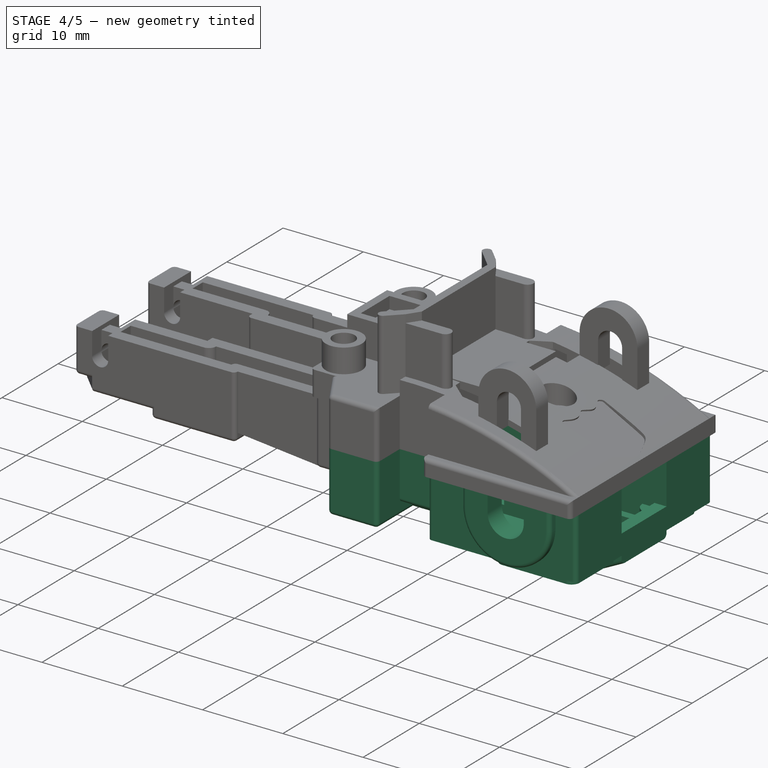
[diagram: stage 4 of 5 — iso view after this stage's code; geometry added in this stage tinted green]
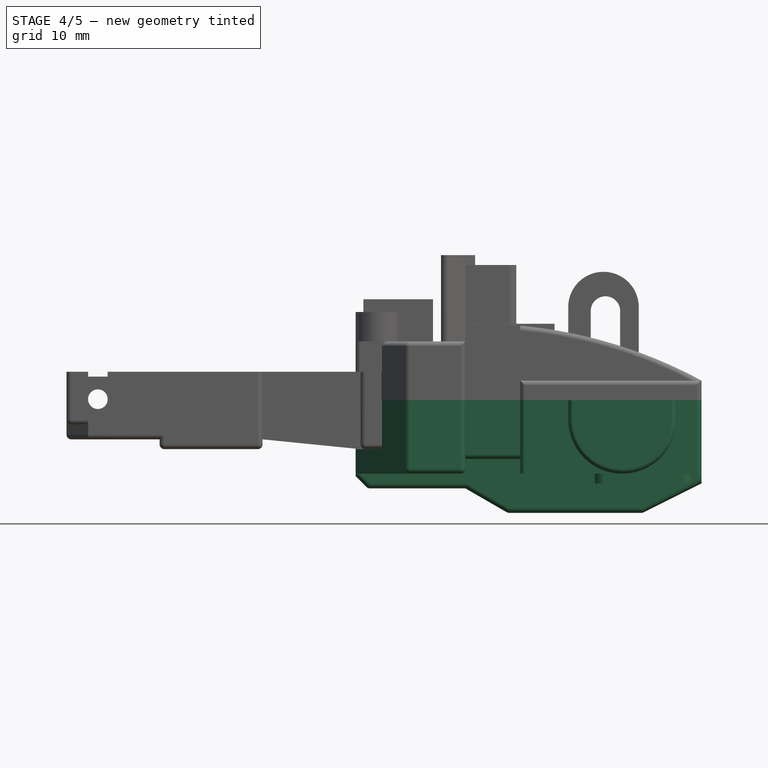
[diagram: stage 4 of 5 — front view after this stage's code; geometry added in this stage tinted green]
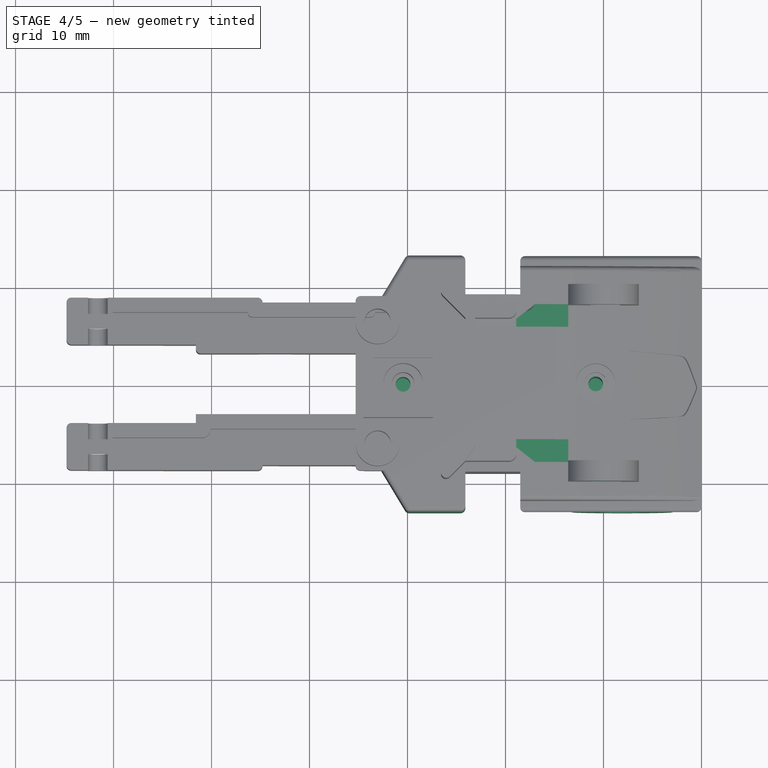
[diagram: stage 4 of 5 — top view after this stage's code; geometry added in this stage tinted green]
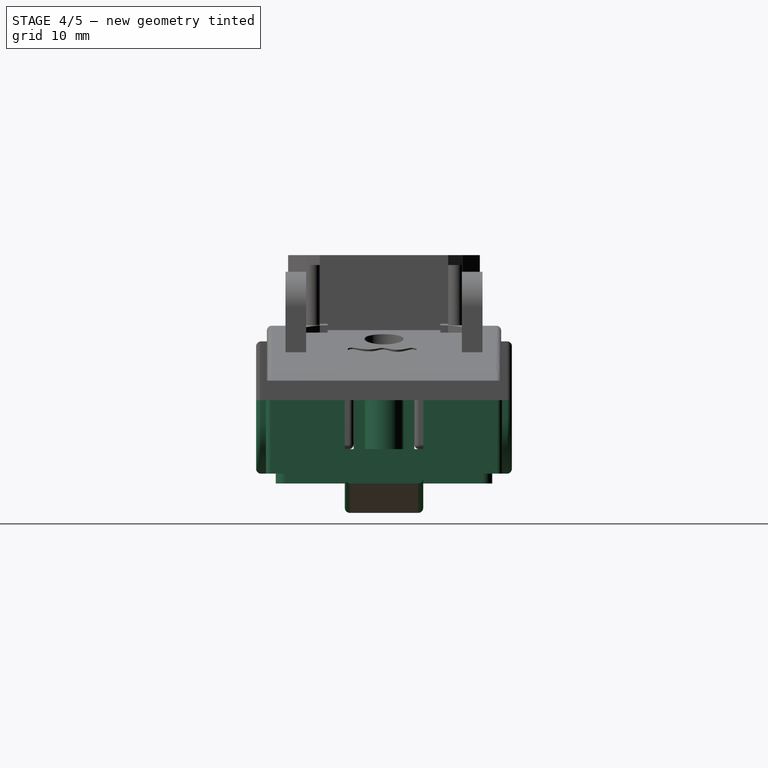
[diagram: stage 4 of 5 — right view after this stage's code; geometry added in this stage tinted green]
FEATURE [Part::Feature] Part__Feature  label="Front_Torso"
  shape: bbox 35.53 x 26.1 x 14 mm, 216 faces (baked)
FEATURE [Image::ImagePlane] Sticker1  label="Sticker1_Pre"
  Placement = pos=(-29.45,8.4,0) rot=(0,0,-1;1.5708rad)
  XSize = 8.60234
  YSize = 9.63145
FEATURE [PartDesign::FeatureBase] BaseFeature
  BaseFeature = -> Part__Feature
  Suppressed = false
FEATURE [Sketcher::SketchObject] Sketch
  ArcFitTolerance = 1e-06
  AttachmentSupport = -> [BaseFeature]
  ExternalGeometry = -> [BaseFeature]
  FullyConstrained = false
  MakeInternals = false
  MapMode = 5
  Placement = pos=(0,0,-7.5) rot=(1,0,0;3.14159rad)
  sketch-geometry (20):
    g0: LineSegment StartX=-33.6455 StartY=-4.12 StartZ=0 EndX=-24.85 EndY=-4.12 EndZ=0
    g1: LineSegment StartX=-24.85 StartY=-4.12 StartZ=0 EndX=-24.85 EndY=-11.81 EndZ=0
    g2: LineSegment StartX=-25.54 StartY=-12.5 StartZ=0 EndX=-27.8875 EndY=-12.5 EndZ=0
    g3: LineSegment StartX=-30.5175 StartY=-11.014 StartZ=0 EndX=-34.1416 EndY=-4.99796 EndZ=0
    g4: ArcOfCircle CenterX=-33.6455 CenterY=-4.69912 CenterZ=0 NormalX=0 NormalY=0 NormalZ=1 AngleXU=0 Radius=0.579121 StartAngle=1.5708 EndAngle=3.68378
    g5: GeomPoint [constr] X=-34.6705 Y=-4.12 Z=0
    g6: ArcOfCircle CenterX=-27.8875 CenterY=-9.42965 CenterZ=0 NormalX=0 NormalY=0 NormalZ=1 AngleXU=0 Radius=3.07035 StartAngle=3.68378 EndAngle=4.71239
    g7: GeomPoint [constr] X=-29.6223 Y=-12.5 Z=0
    g8: ArcOfCircle CenterX=-25.54 CenterY=-11.81 CenterZ=0 NormalX=0 NormalY=0 NormalZ=1 AngleXU=0 Radius=0.69 StartAngle=4.71239 EndAngle=6.28319
    g9: GeomPoint [constr] X=-24.85 Y=-12.5 Z=0
    g10: LineSegment StartX=-33.6455 StartY=4.12 StartZ=0 EndX=-24.85 EndY=4.12 EndZ=0
    g11: LineSegment StartX=-24.85 StartY=4.12 StartZ=0 EndX=-24.85 EndY=11.81 EndZ=0
    g12: LineSegment StartX=-25.54 StartY=12.5 StartZ=0 EndX=-27.8875 EndY=12.5 EndZ=0
    g13: LineSegment StartX=-30.5175 StartY=11.014 StartZ=0 EndX=-34.1416 EndY=4.99796 EndZ=0
    g14: ArcOfCircle CenterX=-33.6455 CenterY=4.69912 CenterZ=0 NormalX=0 NormalY=0 NormalZ=1 AngleXU=0 Radius=0.579121 StartAngle=2.5994 EndAngle=4.71239
    g15: GeomPoint [constr] X=-34.6705 Y=4.12 Z=0
    g16: ArcOfCircle CenterX=-27.8875 CenterY=9.42965 CenterZ=0 NormalX=0 NormalY=0 NormalZ=1 AngleXU=0 Radius=3.07035 StartAngle=1.5708 EndAngle=2.5994
    g17: GeomPoint [constr] X=-29.6223 Y=12.5 Z=0
    g18: ArcOfCircle CenterX=-25.54 CenterY=11.81 CenterZ=0 NormalX=0 NormalY=0 NormalZ=1 AngleXU=0 Radius=0.69 StartAngle=0 EndAngle=1.5708
    g19: GeomPoint [constr] X=-24.85 Y=12.5 Z=0
  constraints (40):
    c: Horizontal(g0)
    c: Coincident(g1,g0)
    c: Vertical(g1)
    c: Horizontal(g2)
    c: PointOnObject(g5,g0)
    c: PointOnObject(g5,g3)
    c: Tangent(g0,g4) = 1.5708
    c: Tangent(g3,g4) = 1.5708
    c: PointOnObject(g7,g2)
    c: PointOnObject(g7,g3)
    c: Tangent(g2,g6) = 1.5708
    c: Tangent(g3,g6) = 1.5708
    c: PointOnObject(g9,g1)
    c: PointOnObject(g9,g2)
    c: Tangent(g1,g8) = 1.5708
    c: Tangent(g2,g8) = 1.5708
    c: DistanceY(g0,g-5) = 0.12
    c: DistanceX(g0,g-5) = 0.25
    c: DistanceY(g-5,g2) = 0.05
    c: Parallel(g3,g-4)
    c: DistanceX(g-6,g0) = 0.2
    c: DistanceX(g3,g-4) = 0.7
    c: DistanceX(g-4,g2) = 1.93
    c: DistanceX(g2,g-5) = 0.94
    c: Horizontal(g10)
    c: Coincident(g11,g10)
    c: Vertical(g11)
    c: Horizontal(g12)
    c: PointOnObject(g15,g10)
    c: PointOnObject(g15,g13)
    c: Tangent(g10,g14) = -1.5708
    c: Tangent(g13,g14) = -1.5708
    c: PointOnObject(g17,g12)
    c: PointOnObject(g17,g13)
    c: Tangent(g12,g16) = -1.5708
    c: Tangent(g13,g16) = -1.5708
    c: PointOnObject(g19,g11)
    c: PointOnObject(g19,g12)
    c: Tangent(g11,g18) = -1.5708
    c: Tangent(g12,g18) = -1.5708
FEATURE [PartDesign::Pocket] Pocket
  BaseFeature = -> BaseFeature
  Direction = (0,0,1)
  Length = 0.3
  Length2 = 5
  Profile = -> Sketch
  ReferenceAxis = -> Sketch [N_Axis]
  Refine = true
  Suppressed = false
  Type = 0
FEATURE [PartDesign::Body] Body  label="Front_Torso_Stickered"
  AllowCompound = false
  BaseFeature = -> Part__Feature
  Group = -> [BaseFeature,Sketch,Pocket,Sketch001,Pocket001,Sketch002,Pocket002,Sketch003,Sketch004,Pocket003,Sketch005,Pocket004,Sketch006,Pocket005,Sketch007,Pocket006,Sketch008,Pocket007,Sketch009,Pocket008]
  Origin = -> Origin
  Tip = -> Pocket008
FEATURE [PartDesign::SubShapeBinder] Binder
  BindCopyOnChange = 0
  BindMode = 2
  ClaimChildren = false
  Context = -> Body001 [Binder.]
  Fuse = false
  MakeFace = true
  OffsetFill = false
  OffsetIntersection = false
  OffsetJoinType = 0
  OffsetOpenResult = false
  PartialLoad = false
  Refine = true
  Relative = true
  _Version = 2
FEATURE [Sketcher::SketchObject] Sketch010
  ArcFitTolerance = 1e-06
  AttachmentSupport = -> [Binder]
  ExternalGeometry = -> [Binder]
  FullyConstrained = true
  MakeInternals = false
  MapMode = 5
  Placement = pos=(0,0,-8.7) rot=(1,0,0;3.14159rad)
  sketch-geometry (12):
    g0: LineSegment StartX=-27.1 StartY=2.82 StartZ=0 EndX=-27.1 EndY=-2.82 EndZ=0
    g1: LineSegment StartX=-26.7 StartY=-3.22 StartZ=0 EndX=-25.33 EndY=-3.22 EndZ=0
    g2: LineSegment StartX=-24.93 StartY=-2.82 StartZ=0 EndX=-24.93 EndY=2.82 EndZ=0
    g3: LineSegment StartX=-25.33 StartY=3.22 StartZ=0 EndX=-26.7 EndY=3.22 EndZ=0
    g4: ArcOfCircle CenterX=-25.33 CenterY=-2.82 CenterZ=0 NormalX=0 NormalY=0 NormalZ=1 AngleXU=0 Radius=0.4 StartAngle=4.71239 EndAngle=6.28319
    g5: GeomPoint [constr] X=-24.93 Y=-3.22 Z=0
    g6: ArcOfCircle CenterX=-26.7 CenterY=-2.82 CenterZ=0 NormalX=0 NormalY=0 NormalZ=1 AngleXU=0 Radius=0.4 StartAngle=3.14159 EndAngle=4.71239
    g7: GeomPoint [constr] X=-27.1 Y=-3.22 Z=0
    g8: ArcOfCircle CenterX=-26.7 CenterY=2.82 CenterZ=0 NormalX=0 NormalY=0 NormalZ=1 AngleXU=0 Radius=0.4 StartAngle=1.5708 EndAngle=3.14159
    g9: GeomPoint [constr] X=-27.1 Y=3.22 Z=0
    g10: ArcOfCircle CenterX=-25.33 CenterY=2.82 CenterZ=0 NormalX=0 NormalY=0 NormalZ=1 AngleXU=0 Radius=0.4 StartAngle=2e-16 EndAngle=1.5708
    g11: GeomPoint [constr] X=-24.93 Y=3.22 Z=0
  constraints (29):
    c: Vertical(g0)
    c: Vertical(g2)
    c: Horizontal(g1)
    c: Horizontal(g3)
    c: PointOnObject(g5,g1)
    c: PointOnObject(g5,g2)
    c: Tangent(g1,g4) = -1.5708
    c: Tangent(g2,g4) = -1.5708
    c: PointOnObject(g7,g0)
    c: PointOnObject(g7,g1)
    c: Tangent(g0,g6) = -1.5708
    c: Tangent(g1,g6) = -1.5708
    c: PointOnObject(g9,g0)
    c: PointOnObject(g9,g3)
    c: Tangent(g0,g8) = -1.5708
    c: Tangent(g3,g8) = -1.5708
    c: PointOnObject(g11,g2)
    c: PointOnObject(g11,g3)
    c: Tangent(g2,g10) = -1.5708
    c: Tangent(g3,g10) = -1.5708
    c: Radius(g-10) = 0.4
    c: Radius(g6) = 0.4
    c: Radius(g4) = 0.4
    c: Radius(g10) = 0.4
    c: Radius(g8) = 0.4
    c: DistanceY(g3,g-4) = 0.08
    c: DistanceY(g-10,g1) = 0.08
    c: DistanceX(g-10,g0) = 0.08
    c: DistanceX(g2,g-9) = 0.08
FEATURE [PartDesign::Pad] Pad
  Direction = (0,0,-1)
  Length = 0.3
  Length2 = 10
  Profile = -> Sketch010
  ReferenceAxis = -> Sketch010 [N_Axis]
  Refine = true
  Suppressed = false
  Type = 0
FEATURE [Sketcher::SketchObject] Sketch011
  ArcFitTolerance = 1e-06
  AttachmentSupport = -> [Pad]
  ExternalGeometry = -> [Pad]
  FullyConstrained = true
  MakeInternals = false
  MapMode = 5
  Placement = pos=(0,0,-9) rot=(1,0,0;3.14159rad)
  sketch-geometry (21):
    g0: LineSegment StartX=-26.45 StartY=-3.22 StartZ=0 EndX=-26.45 EndY=-1.52 EndZ=0
    g1: LineSegment StartX=-26.45 StartY=-1.52 StartZ=0 EndX=-25.58 EndY=-1.52 EndZ=0
    g2: LineSegment StartX=-25.58 StartY=-1.52 StartZ=0 EndX=-25.58 EndY=-3.22 EndZ=0
    g3: LineSegment StartX=-25.58 StartY=-3.22 StartZ=0 EndX=-25.83 EndY=-3.22 EndZ=0
    g4: LineSegment StartX=-25.83 StartY=-3.22 StartZ=0 EndX=-25.83 EndY=-1.77 EndZ=0
    g5: LineSegment StartX=-25.83 StartY=-1.77 StartZ=0 EndX=-26.2 EndY=-1.77 EndZ=0
    g6: LineSegment StartX=-26.2 StartY=-1.77 StartZ=0 EndX=-26.2 EndY=-3.22 EndZ=0
    g7: LineSegment StartX=-26.2 StartY=-3.22 StartZ=0 EndX=-26.45 EndY=-3.22 EndZ=0
    g8: LineSegment StartX=-26.45 StartY=3.22 StartZ=0 EndX=-26.45 EndY=1.52 EndZ=0
    g9: LineSegment StartX=-26.45 StartY=1.52 StartZ=0 EndX=-25.58 EndY=1.52 EndZ=0
    g10: LineSegment StartX=-25.58 StartY=1.52 StartZ=0 EndX=-25.58 EndY=3.22 EndZ=0
    g11: LineSegment StartX=-25.58 StartY=3.22 StartZ=0 EndX=-25.83 EndY=3.22 EndZ=0
    g12: LineSegment StartX=-25.83 StartY=3.22 StartZ=0 EndX=-25.83 EndY=1.77 EndZ=0
    g13: LineSegment StartX=-25.83 StartY=1.77 StartZ=0 EndX=-26.2 EndY=1.77 EndZ=0
    g14: LineSegment StartX=-26.2 StartY=1.77 StartZ=0 EndX=-26.2 EndY=3.22 EndZ=0
    g15: LineSegment StartX=-26.2 StartY=3.22 StartZ=0 EndX=-26.45 EndY=3.22 EndZ=0
    g16: Circle CenterX=-26.015 CenterY=0.72 CenterZ=0 NormalX=0 NormalY=0 NormalZ=1 AngleXU=0 Radius=0.35
    g17: Circle CenterX=-26.015 CenterY=0.72 CenterZ=0 NormalX=0 NormalY=0 NormalZ=1 AngleXU=0 Radius=0.6
    g18: Circle CenterX=-26.015 CenterY=-0.72 CenterZ=0 NormalX=0 NormalY=0 NormalZ=1 AngleXU=0 Radius=0.35
    g19: Circle CenterX=-26.015 CenterY=-0.72 CenterZ=0 NormalX=0 NormalY=0 NormalZ=1 AngleXU=0 Radius=0.6
    g20: LineSegment [constr] StartX=-26.015 StartY=0.72 StartZ=0 EndX=-26.015 EndY=-0.72 EndZ=0
  constraints (61):
    c: PointOnObject(g0,g-6)
    c: Vertical(g0)
    c: Coincident(g1,g0)
    c: Horizontal(g1)
    c: Coincident(g2,g1)
    c: PointOnObject(g2,g-6)
    c: Vertical(g2)
    c: Coincident(g3,g2)
    c: PointOnObject(g3,g-6)
    c: Coincident(g4,g3)
    c: Vertical(g4)
    c: Coincident(g5,g4)
    c: Horizontal(g5)
    c: Coincident(g6,g5)
    c: PointOnObject(g6,g-6)
    c: Vertical(g6)
    c: Coincident(g7,g6)
    c: Coincident(g7,g0)
    c: DistanceX(g-6,g0) = 0.25
    c: DistanceX(g2,g-6) = 0.25
    c: DistanceX(g3,g3) = 0.25
    c: DistanceX(g7,g7) = 0.25
    c: DistanceY(g5,g0) = 0.25
    c: DistanceY(g0,g0) = 1.7
    c: PointOnObject(g8,g-3)
    c: Vertical(g8)
    c: Coincident(g9,g8)
    c: Horizontal(g9)
    c: Coincident(g10,g9)
    c: PointOnObject(g10,g-3)
    c: Vertical(g10)
    c: Coincident(g11,g10)
    c: PointOnObject(g11,g-3)
    c: Coincident(g12,g11)
    c: Vertical(g12)
    c: Coincident(g13,g12)
    c: Horizontal(g13)
    c: Coincident(g14,g13)
    c: PointOnObject(g14,g-3)
    c: Vertical(g14)
    c: Coincident(g15,g14)
    c: Coincident(g15,g8)
    c: DistanceX(g-3,g8) = 0.25
    c: DistanceX(g8,g14) = 0.25
    c: DistanceX(g10,g-3) = 0.25
    c: DistanceX(g11,g11) = 0.25
    c: DistanceY(g8,g13) = 0.25
    c: DistanceY(g8,g8) = 1.7
    c: Coincident(g17,g16)
    c: Coincident(g19,g18)
    c: Radius(g16) = 0.35
    c: Radius(g17) = 0.6
    c: Radius(g18) = 0.35
    c: Radius(g19) = 0.6
    c: DistanceY(g0,g18) = 0.8
    c: DistanceY(g16,g8) = 0.8
    c: Coincident(g20,g16)
    c: Coincident(g20,g18)
    c: Vertical(g20)
    c: DistanceX(g1,g1) = 0.87
    c: DistanceX(g18,g1) = 0.435
FEATURE [PartDesign::Pocket] Pocket009
  BaseFeature = -> Pad
  Direction = (0,0,1)
  Length = 0.001
  Length2 = 5
  Profile = -> Sketch011
  ReferenceAxis = -> Sketch011 [N_Axis]
  Refine = true
  Suppressed = false
  Type = 0
FEATURE [PartDesign::Body] Body001  label="Sticker4"
  AllowCompound = false
  Group = -> [Binder,Sketch010,Pad,Sketch011,Pocket009]
  Origin = -> Origin001
  Tip = -> Pocket009
FEATURE [PartDesign::SubShapeBinder] Binder001
  BindCopyOnChange = 0
  BindMode = 2
  ClaimChildren = false
  Context = -> Body002 [Binder001.]
  Fuse = false
  MakeFace = true
  OffsetFill = false
  OffsetIntersection = false
  OffsetJoinType = 0
  OffsetOpenResult = false
  PartialLoad = false
  Refine = true
  Relative = true
  _Version = 2
FEATURE [Sketcher::SketchObject] Sketch012
  ArcFitTolerance = 1e-06
  AttachmentSupport = -> [Binder001]
  ExternalGeometry = -> [Binder001]
  FullyConstrained = true
  MakeInternals = false
  MapMode = 5
  Placement = pos=(0,0,-5.7) rot=(1,0,0;3.14159rad)
  sketch-geometry (8):
    g0: LineSegment StartX=-23.22 StartY=-4.7 StartZ=0 EndX=-23.22 EndY=-9.05 EndZ=0
    g1: LineSegment StartX=-23.22 StartY=-9.05 StartZ=0 EndX=-19.38 EndY=-9.05 EndZ=0
    g2: LineSegment StartX=-19.38 StartY=-9.05 StartZ=0 EndX=-19.38 EndY=-4.7 EndZ=0
    g3: LineSegment StartX=-19.88 StartY=-4.2 StartZ=0 EndX=-22.72 EndY=-4.2 EndZ=0
    g4: ArcOfCircle CenterX=-22.72 CenterY=-4.7 CenterZ=0 NormalX=0 NormalY=0 NormalZ=1 AngleXU=0 Radius=0.5 StartAngle=1.5708 EndAngle=3.14159
    g5: GeomPoint [constr] X=-23.22 Y=-4.2 Z=0
    g6: ArcOfCircle CenterX=-19.88 CenterY=-4.7 CenterZ=0 NormalX=0 NormalY=0 NormalZ=1 AngleXU=0 Radius=0.5 StartAngle=0 EndAngle=1.5708
    g7: GeomPoint [constr] X=-19.38 Y=-4.2 Z=0
  constraints (21):
    c: Coincident(g0,g1)
    c: Coincident(g1,g2)
    c: Vertical(g0)
    c: Vertical(g2)
    c: Horizontal(g1)
    c: Horizontal(g3)
    c: PointOnObject(g5,g0)
    c: PointOnObject(g5,g3)
    c: Tangent(g0,g4) = -1.5708
    c: Tangent(g3,g4) = -1.5708
    c: PointOnObject(g7,g2)
    c: PointOnObject(g7,g3)
    c: Tangent(g2,g6) = -1.5708
    c: Tangent(g3,g6) = -1.5708
    c: Radius(g-4) = 0.5
    c: Radius(g4) = 0.5
    c: Radius(g6) = 0.5
    c: DistanceY(g0,g-7) = 0.3
    c: DistanceX(g-7,g0) = 0.08
    c: DistanceX(g1,g-6) = 0.08
    c: DistanceY(g3,g-5) = 0.08
FEATURE [PartDesign::Pad] Pad001
  Direction = (0,0,-1)
  Length = 0.3
  Length2 = 10
  Profile = -> Sketch012
  ReferenceAxis = -> Sketch012 [N_Axis]
  Refine = true
  Suppressed = false
  Type = 0
FEATURE [Sketcher::SketchObject] Sketch013
  ArcFitTolerance = 1e-06
  AttachmentSupport = -> [Pad001]
  FullyConstrained = false
  MakeInternals = false
  MapMode = 5
  Placement = pos=(0,0,-6) rot=(1,0,0;3.14159rad)
  sketch-geometry (23):
    g0: LineSegment StartX=-22.4631 StartY=-3.98601 StartZ=0 EndX=-22.4631 EndY=-6.40515 EndZ=0
    g1: ArcOfCircle CenterX=-21.6577 CenterY=-6.40515 CenterZ=0 NormalX=0 NormalY=0 NormalZ=1 AngleXU=0 Radius=0.805366 StartAngle=3.14159 EndAngle=4.21401
    g2: LineSegment StartX=-22.0427 StartY=-7.11255 StartZ=0 EndX=-19.1255 EndY=-8.70007 EndZ=0
    g3: LineSegment StartX=-19.1255 StartY=-8.70007 StartZ=0 EndX=-19.1255 EndY=-7.60631 EndZ=0
    g4: LineSegment StartX=-19.1255 StartY=-7.60631 StartZ=0 EndX=-20.3381 EndY=-6.94645 EndZ=0
    g5: LineSegment StartX=-20.3381 StartY=-6.94645 StartZ=0 EndX=-19.0943 EndY=-6.94645 EndZ=0
    g6: LineSegment StartX=-19.0943 StartY=-6.94645 StartZ=0 EndX=-19.0943 EndY=-6.73416 EndZ=0
    g7: LineSegment StartX=-19.0943 StartY=-6.73416 StartZ=0 EndX=-20.6506 EndY=-6.73416 EndZ=0
    g8: LineSegment StartX=-20.6506 StartY=-6.73416 StartZ=0 EndX=-21.6568 EndY=-6.18654 EndZ=0
    g9: LineSegment StartX=-21.6568 StartY=-6.18654 StartZ=0 EndX=-21.6568 EndY=-6.08702 EndZ=0
    g10: LineSegment StartX=-21.6568 StartY=-6.08702 StartZ=0 EndX=-19.1748 EndY=-6.08702 EndZ=0
    g11: LineSegment StartX=-19.1748 StartY=-6.08702 StartZ=0 EndX=-19.1748 EndY=-5.89157 EndZ=0
    g12: LineSegment StartX=-19.1748 StartY=-5.89157 StartZ=0 EndX=-21.6873 EndY=-5.89157 EndZ=0
    g13: LineSegment StartX=-21.6873 StartY=-5.89157 StartZ=0 EndX=-21.6873 EndY=-5.31333 EndZ=0
    g14: LineSegment StartX=-21.6873 StartY=-5.31333 StartZ=0 EndX=-19.2925 EndY=-5.31333 EndZ=0
    g15: LineSegment StartX=-19.2925 StartY=-5.31333 StartZ=0 EndX=-19.2925 EndY=-5.08817 EndZ=0
    g16: LineSegment StartX=-19.2925 StartY=-5.08817 StartZ=0 EndX=-21.6873 EndY=-5.08817 EndZ=0
    g17: LineSegment StartX=-21.6873 StartY=-5.08817 StartZ=0 EndX=-21.6873 EndY=-4.60716 EndZ=0
    g18: LineSegment StartX=-21.6873 StartY=-4.60716 StartZ=0 EndX=-19.1492 EndY=-4.60716 EndZ=0
    g19: LineSegment StartX=-19.1492 StartY=-4.60716 StartZ=0 EndX=-19.1492 EndY=-4.38201 EndZ=0
    g20: LineSegment StartX=-19.1492 StartY=-4.38201 StartZ=0 EndX=-21.6873 EndY=-4.38201 EndZ=0
    g21: LineSegment StartX=-21.6873 StartY=-4.38201 StartZ=0 EndX=-21.667 EndY=-3.98601 EndZ=0
    g22: LineSegment StartX=-21.667 StartY=-3.98601 StartZ=0 EndX=-22.4631 EndY=-3.98601 EndZ=0
  constraints (43):
    c: Vertical(g0)
    c: Coincident(g3,g2)
    c: Vertical(g3)
    c: Coincident(g4,g3)
    c: Coincident(g5,g4)
    c: Horizontal(g5)
    c: Coincident(g6,g5)
    c: Vertical(g6)
    c: Coincident(g7,g6)
    c: Horizontal(g7)
    c: Coincident(g8,g7)
    c: Coincident(g9,g8)
    c: Vertical(g9)
    c: Coincident(g10,g9)
    c: Horizontal(g10)
    c: Coincident(g11,g10)
    c: Vertical(g11)
    c: Coincident(g12,g11)
    c: Horizontal(g12)
    c: Coincident(g13,g12)
    c: Vertical(g13)
    c: Coincident(g14,g13)
    c: Horizontal(g14)
    c: Coincident(g15,g14)
    c: Vertical(g15)
    c: Coincident(g16,g15)
    c: Horizontal(g16)
    c: Coincident(g17,g16)
    c: Vertical(g17)
    c: Coincident(g18,g17)
    c: Horizontal(g18)
    c: Coincident(g19,g18)
    c: Vertical(g19)
    c: Coincident(g20,g19)
    c: Horizontal(g20)
    c: Coincident(g21,g20)
    c: Coincident(g22,g21)
    c: Coincident(g22,g0)
    c: Horizontal(g22)
    c: Tangent(g1,g0) = -1.5708
    c: Tangent(g2,g1) = -1.5708
    c: Parallel(g8,g4)
    c: Parallel(g8,g2)
FEATURE [PartDesign::Pocket] Pocket010
  BaseFeature = -> Pad001
  Direction = (0,0,1)
  Length = 0.001
  Length2 = 5
  Profile = -> Sketch013
  ReferenceAxis = -> Sketch013 [N_Axis]
  Refine = true
  Suppressed = false
  Type = 0
FEATURE [Sketcher::SketchObject] Sketch015
  ArcFitTolerance = 1e-06
  AttachmentSupport = -> [Pad002]
  ExternalGeometry = -> [Pad002]
  FullyConstrained = false
  MakeInternals = false
  MapMode = 5
  Placement = pos=(0,9.05,-3.5e-15) rot=(0,0.707107,0.707107;3.14159rad)
  sketch-geometry (56):
    g0: LineSegment StartX=19.38 StartY=-3.89335 StartZ=0 EndX=19.38 EndY=-3.64335 EndZ=0
    g1: LineSegment StartX=19.38 StartY=-3.64335 StartZ=0 EndX=20.7138 EndY=-3.64335 EndZ=0
    g2: LineSegment StartX=20.7138 StartY=-3.64335 StartZ=0 EndX=21.592 EndY=-4.18778 EndZ=0
    g3: LineSegment StartX=21.592 StartY=-4.18778 StartZ=0 EndX=23.22 EndY=-4.18778 EndZ=0
    g4: LineSegment StartX=23.22 StartY=-4.18778 StartZ=0 EndX=23.22 EndY=-4.43778 EndZ=0
    g5: LineSegment StartX=23.22 StartY=-4.43778 StartZ=0 EndX=21.492 EndY=-4.43778 EndZ=0
    g6: LineSegment StartX=21.492 StartY=-4.43778 StartZ=0 EndX=20.6138 EndY=-3.89335 EndZ=0
    g7: LineSegment StartX=20.6138 StartY=-3.89335 StartZ=0 EndX=19.38 EndY=-3.89335 EndZ=0
    g8: LineSegment StartX=19.38 StartY=-3.04806 StartZ=0 EndX=19.38 EndY=-2.79806 EndZ=0
    g9: LineSegment StartX=19.38 StartY=-2.79806 StartZ=0 EndX=20.7138 EndY=-2.79806 EndZ=0
    g10: LineSegment StartX=20.7138 StartY=-2.79806 StartZ=0 EndX=21.592 EndY=-3.34249 EndZ=0
    g11: LineSegment StartX=21.592 StartY=-3.34249 StartZ=0 EndX=23.22 EndY=-3.34249 EndZ=0
    g12: LineSegment StartX=23.22 StartY=-3.34249 StartZ=0 EndX=23.22 EndY=-3.59249 EndZ=0
    g13: LineSegment StartX=23.22 StartY=-3.59249 StartZ=0 EndX=21.492 EndY=-3.59249 EndZ=0
    g14: LineSegment StartX=21.492 StartY=-3.59249 StartZ=0 EndX=20.6138 EndY=-3.04806 EndZ=0
    g15: LineSegment StartX=20.6138 StartY=-3.04806 StartZ=0 EndX=19.38 EndY=-3.04806 EndZ=0
    g16: LineSegment StartX=19.38 StartY=-1.69872 StartZ=0 EndX=19.38 EndY=-1.44872 EndZ=0
    g17: LineSegment StartX=19.38 StartY=-1.44872 StartZ=0 EndX=20.7138 EndY=-1.44872 EndZ=0
    g18: LineSegment StartX=20.7138 StartY=-1.44872 StartZ=0 EndX=21.592 EndY=-1.99316 EndZ=0
    g19: LineSegment StartX=21.592 StartY=-1.99316 StartZ=0 EndX=23.22 EndY=-1.99316 EndZ=0
    g20: LineSegment StartX=23.22 StartY=-1.99316 StartZ=0 EndX=23.22 EndY=-2.24316 EndZ=0
    g21: LineSegment StartX=23.22 StartY=-2.24316 StartZ=0 EndX=21.492 EndY=-2.24316 EndZ=0
    g22: LineSegment StartX=21.492 StartY=-2.24316 StartZ=0 EndX=20.6138 EndY=-1.69872 EndZ=0
    g23: LineSegment StartX=20.6138 StartY=-1.69872 StartZ=0 EndX=19.38 EndY=-1.69872 EndZ=0
    g24: LineSegment StartX=19.38 StartY=-2.35977 StartZ=0 EndX=19.38 EndY=-2.10977 EndZ=0
    g25: LineSegment StartX=19.38 StartY=-2.10977 StartZ=0 EndX=20.7138 EndY=-2.10977 EndZ=0
    g26: LineSegment StartX=20.7138 StartY=-2.10977 StartZ=0 EndX=21.592 EndY=-2.65421 EndZ=0
    g27: LineSegment StartX=21.592 StartY=-2.65421 StartZ=0 EndX=23.22 EndY=-2.65421 EndZ=0
    g28: LineSegment StartX=23.22 StartY=-2.65421 StartZ=0 EndX=23.22 EndY=-2.90421 EndZ=0
    g29: LineSegment StartX=23.22 StartY=-2.90421 StartZ=0 EndX=21.492 EndY=-2.90421 EndZ=0
    g30: LineSegment StartX=21.492 StartY=-2.90421 StartZ=0 EndX=20.6138 EndY=-2.35977 EndZ=0
    g31: LineSegment StartX=20.6138 StartY=-2.35977 StartZ=0 EndX=19.38 EndY=-2.35977 EndZ=0
    g32: LineSegment StartX=19.38 StartY=-4.67798 StartZ=0 EndX=19.38 EndY=-4.42798 EndZ=0
    g33: LineSegment StartX=19.38 StartY=-4.42798 StartZ=0 EndX=20.7138 EndY=-4.42798 EndZ=0
    g34: LineSegment StartX=20.7138 StartY=-4.42798 StartZ=0 EndX=21.592 EndY=-4.97242 EndZ=0
    g35: LineSegment StartX=21.592 StartY=-4.97242 StartZ=0 EndX=23.22 EndY=-4.97242 EndZ=0
    g36: LineSegment StartX=23.22 StartY=-4.97242 StartZ=0 EndX=23.22 EndY=-5.22242 EndZ=0
    g37: LineSegment StartX=23.22 StartY=-5.22242 StartZ=0 EndX=21.492 EndY=-5.22242 EndZ=0
    g38: LineSegment StartX=21.492 StartY=-5.22242 StartZ=0 EndX=20.6138 EndY=-4.67798 EndZ=0
    g39: LineSegment StartX=20.6138 StartY=-4.67798 StartZ=0 EndX=19.38 EndY=-4.67798 EndZ=0
    g40: LineSegment [constr] StartX=21.592 StartY=-1.99316 StartZ=0 EndX=21.592 EndY=-2.65421 EndZ=0
    g41: LineSegment [constr] StartX=21.592 StartY=-2.65421 StartZ=0 EndX=21.592 EndY=-3.34249 EndZ=0
    g42: LineSegment [constr] StartX=21.592 StartY=-3.34249 StartZ=0 EndX=21.592 EndY=-4.18778 EndZ=0
    g43: LineSegment [constr] StartX=21.592 StartY=-4.18778 StartZ=0 EndX=21.592 EndY=-4.97242 EndZ=0
    g44: LineSegment [constr] StartX=20.6138 StartY=-4.67798 StartZ=0 EndX=20.6138 EndY=-3.89335 EndZ=0
    g45: LineSegment [constr] StartX=20.6138 StartY=-3.89335 StartZ=0 EndX=20.6138 EndY=-3.04806 EndZ=0
    g46: LineSegment [constr] StartX=20.6138 StartY=-3.04806 StartZ=0 EndX=20.6138 EndY=-2.35977 EndZ=0
    g47: LineSegment [constr] StartX=20.6138 StartY=-2.35977 StartZ=0 EndX=20.6138 EndY=-1.69872 EndZ=0
    g48: LineSegment [constr] StartX=20.7138 StartY=-4.42798 StartZ=0 EndX=20.7138 EndY=-3.64335 EndZ=0
    g49: LineSegment [constr] StartX=20.7138 StartY=-3.64335 StartZ=0 EndX=20.7138 EndY=-2.79806 EndZ=0
    g50: LineSegment [constr] StartX=20.7138 StartY=-2.79806 StartZ=0 EndX=20.7138 EndY=-2.10977 EndZ=0
    g51: LineSegment [constr] StartX=20.7138 StartY=-2.10977 StartZ=0 EndX=20.7138 EndY=-1.44872 EndZ=0
    g52: LineSegment [constr] StartX=21.492 StartY=-2.24316 StartZ=0 EndX=21.492 EndY=-2.90421 EndZ=0
    g53: LineSegment [constr] StartX=21.492 StartY=-2.90421 StartZ=0 EndX=21.492 EndY=-3.59249 EndZ=0
    g54: LineSegment [constr] StartX=21.492 StartY=-3.59249 StartZ=0 EndX=21.492 EndY=-4.43778 EndZ=0
    g55: LineSegment [constr] StartX=21.492 StartY=-4.43778 StartZ=0 EndX=21.492 EndY=-5.22242 EndZ=0
  constraints (144):
    c: PointOnObject(g0,g-4)
    c: PointOnObject(g0,g-4)
    c: Coincident(g1,g0)
    c: Horizontal(g1)
    c: Coincident(g2,g1)
    c: Coincident(g3,g2)
    c: PointOnObject(g3,g-3)
    c: Horizontal(g3)
    c: Coincident(g4,g3)
    c: PointOnObject(g4,g-3)
    c: Coincident(g5,g4)
    c: Horizontal(g5)
    c: Coincident(g6,g5)
    c: Coincident(g7,g6)
    c: Coincident(g7,g0)
    c: Horizontal(g7)
    c: Coincident(g9,g8)
    c: Horizontal(g9)
    c: Coincident(g10,g9)
    c: Coincident(g11,g10)
    c: Horizontal(g11)
    c: Coincident(g12,g11)
    c: Coincident(g13,g12)
    c: Horizontal(g13)
    c: Coincident(g14,g13)
    c: Coincident(g15,g14)
    c: Coincident(g15,g8)
    c: Horizontal(g15)
    c: Coincident(g17,g16)
    c: Horizontal(g17)
    c: Coincident(g18,g17)
    c: Coincident(g19,g18)
    c: Horizontal(g19)
    c: Coincident(g20,g19)
    c: Coincident(g21,g20)
    c: Horizontal(g21)
    c: Coincident(g22,g21)
    c: Coincident(g23,g22)
    c: Coincident(g23,g16)
    c: Horizontal(g23)
    c: Coincident(g25,g24)
    c: Horizontal(g25)
    c: Coincident(g26,g25)
    c: Coincident(g27,g26)
    c: Horizontal(g27)
    c: Coincident(g28,g27)
    c: Coincident(g29,g28)
    c: Horizontal(g29)
    c: Coincident(g30,g29)
    c: Coincident(g31,g30)
    c: Coincident(g31,g24)
    c: Horizontal(g31)
    c: Coincident(g33,g32)
    c: Horizontal(g33)
    c: Coincident(g34,g33)
    c: Coincident(g35,g34)
    c: Horizontal(g35)
    c: Coincident(g36,g35)
    c: Coincident(g37,g36)
    c: Horizontal(g37)
    c: Coincident(g38,g37)
    c: Coincident(g39,g38)
    c: Coincident(g39,g32)
    c: Horizontal(g39)
    c: Parallel(g38,g34)
    c: Parallel(g34,g6)
    c: Parallel(g2,g6)
    c: Parallel(g2,g14)
    c: Parallel(g14,g10)
    c: Parallel(g10,g30)
    c: Parallel(g30,g26)
    c: Parallel(g26,g22)
    c: Parallel(g22,g18)
    c: DistanceY(g32,g32) = 0.25
    c: DistanceY(g0,g0) = 0.25
    c: DistanceY(g8,g8) = 0.25
    c: DistanceY(g24,g24) = 0.25
    c: DistanceY(g16,g16) = 0.25
    c: DistanceY(g20,g20) = 0.25
    c: DistanceY(g28,g28) = 0.25
    c: DistanceY(g12,g12) = 0.25
    c: DistanceY(g4,g4) = 0.25
    c: DistanceY(g36,g36) = 0.25
    c: Coincident(g40,g18)
    c: Coincident(g40,g26)
    c: Coincident(g41,g40)
    c: Coincident(g41,g10)
    c: Coincident(g42,g10)
    c: Coincident(g42,g2)
    c: Coincident(g43,g2)
    c: Coincident(g43,g34)
    c: Vertical(g43)
    c: Vertical(g42)
    c: Vertical(g41)
    c: Vertical(g40)
    c: Coincident(g44,g38)
    c: Coincident(g44,g6)
    c: Vertical(g44)
    c: Coincident(g45,g6)
    c: Coincident(g45,g14)
    c: Vertical(g45)
    c: Coincident(g46,g14)
    c: Coincident(g46,g30)
    c: Coincident(g47,g30)
    c: Coincident(g47,g22)
    c: Vertical(g47)
    c: Vertical(g46)
    c: Coincident(g48,g33)
    c: Coincident(g48,g1)
    c: Coincident(g49,g48)
    c: Coincident(g49,g9)
    c: Coincident(g50,g9)
    c: Coincident(g50,g25)
    c: Coincident(g51,g50)
    c: Coincident(g51,g17)
    c: Vertical(g51)
    c: Vertical(g50)
    c: Vertical(g49)
    c: Vertical(g48)
    c: Coincident(g52,g21)
    c: Coincident(g52,g29)
    c: Coincident(g53,g29)
    c: Coincident(g53,g13)
    c: Coincident(g54,g13)
    c: Coincident(g54,g5)
    c: Coincident(g55,g5)
    c: Coincident(g55,g37)
    c: DistanceX(g22,g17) = 0.1
    c: PointOnObject(g16,g-4)
    c: PointOnObject(g16,g-4)
    c: PointOnObject(g24,g-4)
    c: PointOnObject(g24,g-4)
    c: PointOnObject(g32,g-4)
    c: PointOnObject(g32,g-4)
    c: PointOnObject(g8,g-4)
    c: PointOnObject(g8,g-4)
    c: PointOnObject(g19,g-3)
    c: PointOnObject(g20,g-3)
    c: PointOnObject(g27,g-3)
    c: PointOnObject(g28,g-3)
    c: PointOnObject(g11,g-3)
    c: PointOnObject(g12,g-3)
    c: PointOnObject(g35,g-3)
    c: PointOnObject(g36,g-3)
FEATURE [PartDesign::Pocket] Pocket011
  BaseFeature = -> Pad002
  Direction = (0,-1,2e-16)
  Length = 0.001
  Length2 = 5
  Profile = -> Sketch015
  ReferenceAxis = -> Sketch015 [N_Axis]
  Refine = true
  Suppressed = false
  Type = 0
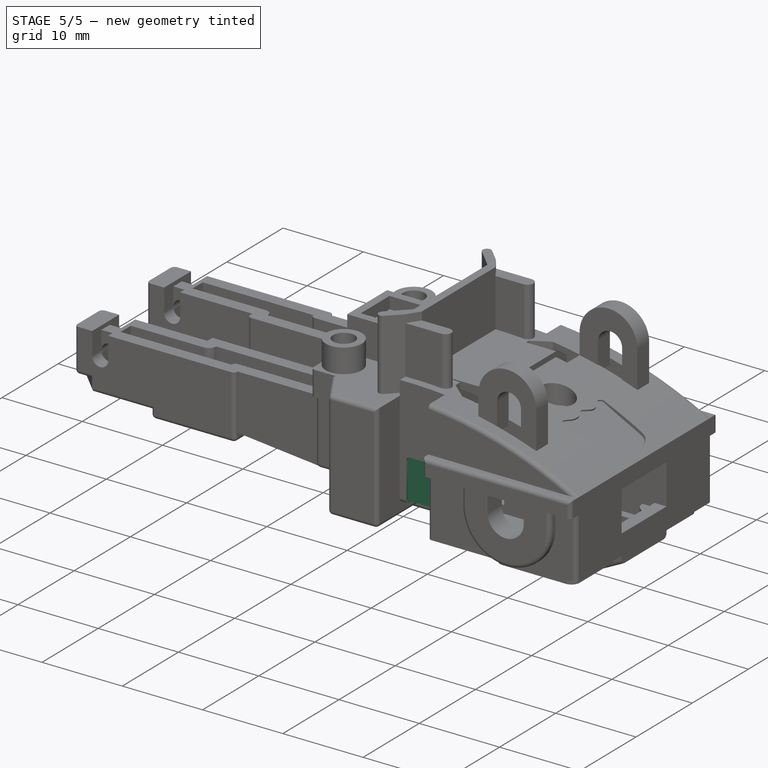
[diagram: stage 5 of 5 — iso view after this stage's code; geometry added in this stage tinted green]
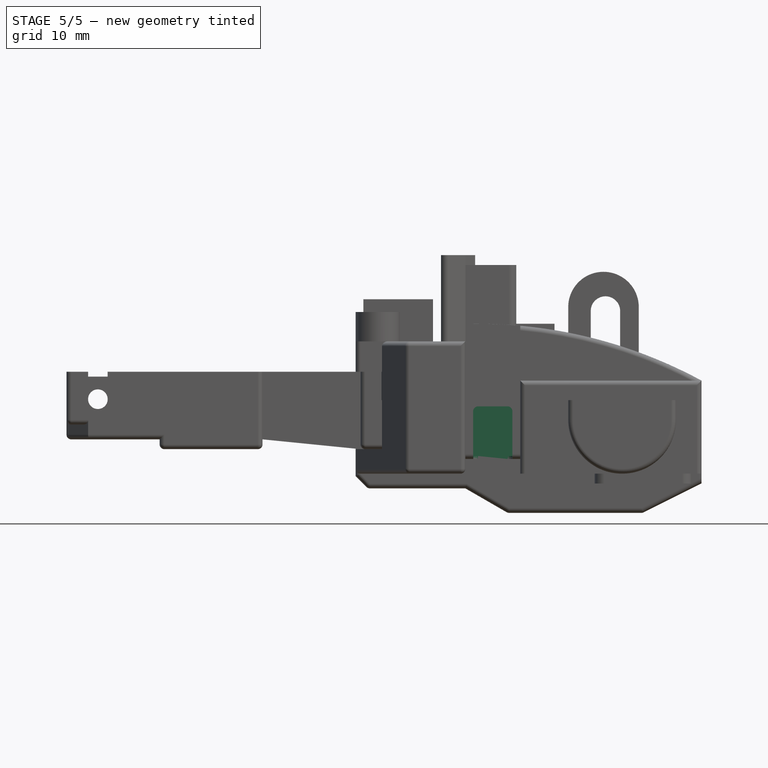
[diagram: stage 5 of 5 — front view after this stage's code; geometry added in this stage tinted green]
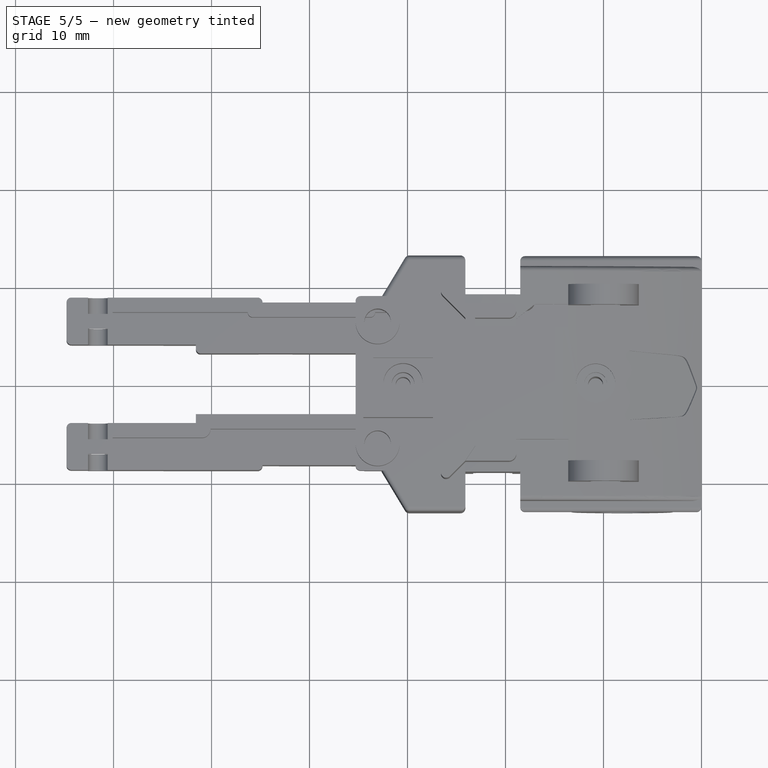
[diagram: stage 5 of 5 — top view after this stage's code; geometry added in this stage tinted green]
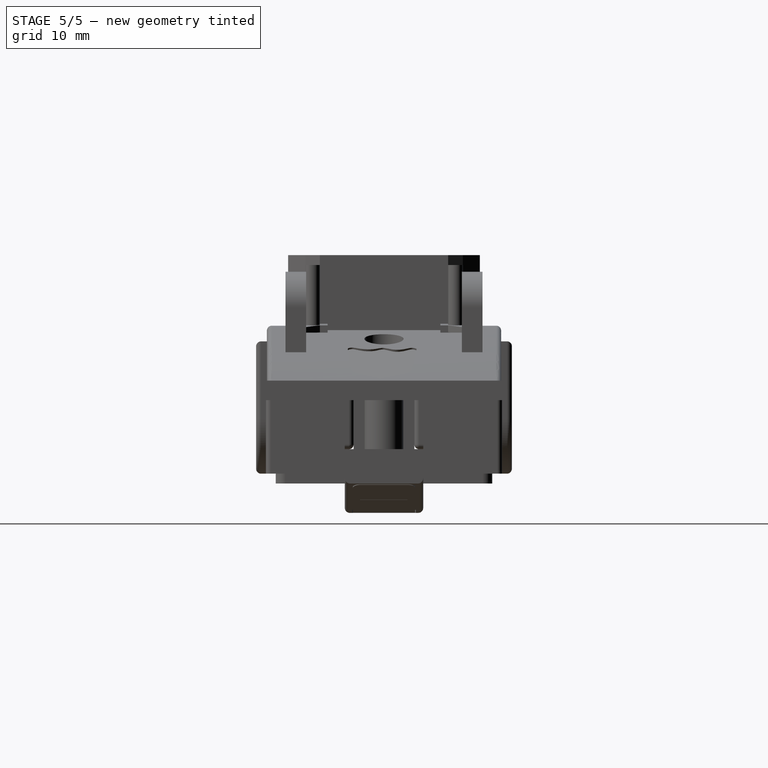
[diagram: stage 5 of 5 — right view after this stage's code; geometry added in this stage tinted green]
FEATURE [Sketcher::SketchObject] Sketch001
  ArcFitTolerance = 1e-06
  AttachmentOffset = pos=(53.8,4.87,0) rot=(0,0,1;-1.5708rad)
  AttachmentSupport = -> [Pocket]
  FullyConstrained = false
  MakeInternals = false
  MapMode = 5
  Placement = pos=(53.8,-4.87,-11.5) rot=(-0.707107,-0.707107,0;3.14159rad)
  sketch-geometry (55):
    g0-g23: Circle [constr] x24 (B-spline internal-alignment scaffolding for g24; pole/knot coordinates omitted)
    g24: BSplineCurve PolesCount=28 KnotsCount=26 Degree=3 IsPeriodic=0
    g25-g48: GeomPoint [constr] x24 (B-spline internal-alignment scaffolding for g24; pole/knot coordinates omitted)
    g49: Circle [constr] CenterX=7.96829 CenterY=-71.2558 CenterZ=0 NormalX=0 NormalY=0 NormalZ=1 AngleXU=0 Radius=1
    g50: GeomPoint [constr] X=8.18848 Y=-67.9665 Z=0
    g51: Circle [constr] CenterX=8.19567 CenterY=-67.6744 CenterZ=0 NormalX=0 NormalY=0 NormalZ=1 AngleXU=0 Radius=1
    g52: Circle [constr] CenterX=8.37992 CenterY=-65.8459 CenterZ=0 NormalX=0 NormalY=0 NormalZ=1 AngleXU=0 Radius=1
    g53: Circle [constr] CenterX=8.42259 CenterY=-65.5512 CenterZ=0 NormalX=0 NormalY=0 NormalZ=1 AngleXU=0 Radius=1
    g54: GeomPoint [constr] X=8.35632 Y=-66.1015 Z=0
  constraints (15):
    c: Weight(g0) = 1
    c: Equal(g0, g1-g23) x23
    c: InternalAlignment(g0-g23 -> g24) x24
    c: InternalAlignment(g25-g48 -> g24) x24
    c: Coincident(g23,g0)
    c: InternalAlignment(g49,g24)
    c: Equal(g49,g0)
    c: InternalAlignment(g50,g24)
    c: InternalAlignment(g51,g24)
    c: Equal(g51,g0)
    c: InternalAlignment(g52,g24)
    c: Equal(g52,g0)
    c: InternalAlignment(g53,g24)
    c: Equal(g53,g0)
    c: InternalAlignment(g54,g24)
FEATURE [PartDesign::Pocket] Pocket001
  BaseFeature = -> Pocket
  Direction = (0,0,1)
  Length = 0.3
  Length2 = 5
  Profile = -> Sketch001
  ReferenceAxis = -> Sketch001 [N_Axis]
  Refine = true
  Suppressed = false
  Type = 0
FEATURE [Image::ImagePlane] Sticker2  label="Sticker2_Pre"
  Placement = pos=(-6,-7.5,-9e-16) rot=(0,-1,0;3.14159rad)
  XSize = 9.92207
  YSize = 6.59129
FEATURE [Sketcher::SketchObject] Sketch002
  ArcFitTolerance = 1e-06
  AttachmentSupport = -> [Pocket001]
  ExternalGeometry = -> [Pocket001]
  FullyConstrained = false
  MakeInternals = false
  MapMode = 5
  Placement = pos=(0,0,-8.5) rot=(1,0,0;3.14159rad)
  sketch-geometry (24):
    g0: LineSegment StartX=-10.73 StartY=10.15 StartZ=0 EndX=-10.73 EndY=4.8 EndZ=0
    g1: LineSegment StartX=-10.23 StartY=4.3 StartZ=0 EndX=-1.65 EndY=4.3 EndZ=0
    g2: LineSegment StartX=-1.15 StartY=4.8 StartZ=0 EndX=-1.15 EndY=10.15 EndZ=0
    g3: LineSegment StartX=-1.65 StartY=10.65 StartZ=0 EndX=-10.23 EndY=10.65 EndZ=0
    g4: ArcOfCircle CenterX=-1.65 CenterY=4.8 CenterZ=0 NormalX=0 NormalY=0 NormalZ=1 AngleXU=0 Radius=0.5 StartAngle=4.71239 EndAngle=6.28319
    g5: GeomPoint [constr] X=-1.15 Y=4.3 Z=0
    g6: ArcOfCircle CenterX=-10.23 CenterY=4.8 CenterZ=0 NormalX=0 NormalY=0 NormalZ=1 AngleXU=0 Radius=0.5 StartAngle=3.14159 EndAngle=4.71239
    g7: GeomPoint [constr] X=-10.73 Y=4.3 Z=0
    g8: ArcOfCircle CenterX=-10.23 CenterY=10.15 CenterZ=0 NormalX=0 NormalY=0 NormalZ=1 AngleXU=0 Radius=0.5 StartAngle=1.5708 EndAngle=3.14159
    g9: GeomPoint [constr] X=-10.73 Y=10.65 Z=0
    g10: ArcOfCircle CenterX=-1.65 CenterY=10.15 CenterZ=0 NormalX=0 NormalY=0 NormalZ=1 AngleXU=0 Radius=0.5 StartAngle=6e-16 EndAngle=1.5708
    g11: GeomPoint [constr] X=-1.15 Y=10.65 Z=0
    g12: LineSegment StartX=-10.73 StartY=-10.15 StartZ=0 EndX=-10.73 EndY=-4.8 EndZ=0
    g13: LineSegment StartX=-10.23 StartY=-4.3 StartZ=0 EndX=-1.65 EndY=-4.3 EndZ=0
    g14: LineSegment StartX=-1.15 StartY=-4.8 StartZ=0 EndX=-1.15 EndY=-10.15 EndZ=0
    g15: LineSegment StartX=-1.65 StartY=-10.65 StartZ=0 EndX=-10.23 EndY=-10.65 EndZ=0
    g16: ArcOfCircle CenterX=-1.65 CenterY=-4.8 CenterZ=0 NormalX=0 NormalY=0 NormalZ=1 AngleXU=0 Radius=0.5 StartAngle=0 EndAngle=1.5708
    g17: GeomPoint [constr] X=-1.15 Y=-4.3 Z=0
    g18: ArcOfCircle CenterX=-10.23 CenterY=-4.8 CenterZ=0 NormalX=0 NormalY=0 NormalZ=1 AngleXU=0 Radius=0.5 StartAngle=1.5708 EndAngle=3.14159
    g19: GeomPoint [constr] X=-10.73 Y=-4.3 Z=0
    g20: ArcOfCircle CenterX=-10.23 CenterY=-10.15 CenterZ=0 NormalX=0 NormalY=0 NormalZ=1 AngleXU=0 Radius=0.5 StartAngle=3.14159 EndAngle=4.71239
    g21: GeomPoint [constr] X=-10.73 Y=-10.65 Z=0
    g22: ArcOfCircle CenterX=-1.65 CenterY=-10.15 CenterZ=0 NormalX=0 NormalY=0 NormalZ=1 AngleXU=0 Radius=0.5 StartAngle=4.71239 EndAngle=6.28319
    g23: GeomPoint [constr] X=-1.15 Y=-10.65 Z=0
  constraints (52):
    c: Vertical(g0)
    c: Vertical(g2)
    c: Horizontal(g1)
    c: Horizontal(g3)
    c: PointOnObject(g5,g1)
    c: PointOnObject(g5,g2)
    c: Tangent(g1,g4) = -1.5708
    c: Tangent(g2,g4) = -1.5708
    c: PointOnObject(g7,g0)
    c: PointOnObject(g7,g1)
    c: Tangent(g0,g6) = -1.5708
    c: Tangent(g1,g6) = -1.5708
    c: PointOnObject(g9,g0)
    c: PointOnObject(g9,g3)
    c: Tangent(g0,g8) = -1.5708
    c: Tangent(g3,g8) = -1.5708
    c: PointOnObject(g11,g2)
    c: PointOnObject(g11,g3)
    c: Tangent(g2,g10) = -1.5708
    c: Tangent(g3,g10) = -1.5708
    c: DistanceX(g2,g-3) = 0.15
    c: DistanceY(g3,g-4) = 0.4
    c: DistanceX(g-5,g0) = 0.17
    c: DistanceY(g-5,g1) = 0.3
    c: Radius(g4) = 0.5
    c: Radius(g10) = 0.5
    c: Radius(g8) = 0.5
    c: Radius(g6) = 0.5
    c: Vertical(g12)
    c: Vertical(g14)
    c: Horizontal(g13)
    c: Horizontal(g15)
    c: PointOnObject(g17,g13)
    c: PointOnObject(g17,g14)
    c: Tangent(g13,g16) = 1.5708
    c: Tangent(g14,g16) = 1.5708
    c: PointOnObject(g19,g12)
    c: PointOnObject(g19,g13)
    c: Tangent(g12,g18) = 1.5708
    c: Tangent(g13,g18) = 1.5708
    c: PointOnObject(g21,g12)
    c: PointOnObject(g21,g15)
    c: Tangent(g12,g20) = 1.5708
    c: Tangent(g15,g20) = 1.5708
    c: PointOnObject(g23,g14)
    c: PointOnObject(g23,g15)
    c: Tangent(g14,g22) = 1.5708
    c: Tangent(g15,g22) = 1.5708
    c: Radius(g16) = 0.5
    c: Radius(g22) = 0.5
    c: Radius(g20) = 0.5
    c: Radius(g18) = 0.5
FEATURE [PartDesign::Pocket] Pocket002
  BaseFeature = -> Pocket001
  Direction = (0,0,1)
  Length = 0.3
  Length2 = 5
  Profile = -> Sketch002
  ReferenceAxis = -> Sketch002 [N_Axis]
  Refine = true
  Suppressed = false
  Type = 0
FEATURE [Image::ImagePlane] Sticker3  label="Sticker3_Pre"
  Placement = pos=(-5.15,0,0) rot=(0,0,1;0rad)
  XSize = 11.1846
  YSize = 7.52932
FEATURE [Image::ImagePlane] Sticker004  label="Sticker3A_Pre"
  Placement = pos=(-10.15,0,0.00435) rot=(0,1,0;-0.462512rad)
  XSize = 11.1846
  YSize = 7.52932
FEATURE [Sketcher::SketchObject] Sketch003
  ArcFitTolerance = 1e-06
  AttachmentSupport = -> [Pocket002]
  FullyConstrained = true
  MakeInternals = false
  MapMode = 5
  Placement = pos=(3.4,-1.5e-15,-6.8) rot=(0.973249,0,0.229753;3.14159rad)
FEATURE [Image::ImagePlane] Sticker4  label="Sticker4_Pre"
  Placement = pos=(-26,5.8e-15,0) rot=(0,0,1;1.5708rad)
  XSize = 7.14569
  YSize = 2.69445
FEATURE [Sketcher::SketchObject] Sketch004
  ArcFitTolerance = 1e-06
  AttachmentSupport = -> [Pocket002]
  ExternalGeometry = -> [Pocket002]
  FullyConstrained = true
  MakeInternals = false
  MapMode = 5
  Placement = pos=(0,0,-9) rot=(1,0,0;3.14159rad)
  sketch-geometry (12):
    g0: LineSegment StartX=-27.18 StartY=2.9 StartZ=0 EndX=-27.18 EndY=-2.9 EndZ=0
    g1: LineSegment StartX=-26.78 StartY=-3.3 StartZ=0 EndX=-25.25 EndY=-3.3 EndZ=0
    g2: LineSegment StartX=-24.85 StartY=-2.9 StartZ=0 EndX=-24.85 EndY=2.9 EndZ=0
    g3: LineSegment StartX=-25.25 StartY=3.3 StartZ=0 EndX=-26.78 EndY=3.3 EndZ=0
    g4: ArcOfCircle CenterX=-26.78 CenterY=2.9 CenterZ=0 NormalX=0 NormalY=0 NormalZ=1 AngleXU=0 Radius=0.4 StartAngle=1.5708 EndAngle=3.14159
    g5: GeomPoint [constr] X=-27.18 Y=3.3 Z=0
    g6: ArcOfCircle CenterX=-25.25 CenterY=2.9 CenterZ=0 NormalX=0 NormalY=0 NormalZ=1 AngleXU=0 Radius=0.4 StartAngle=0 EndAngle=1.5708
    g7: GeomPoint [constr] X=-24.85 Y=3.3 Z=0
    g8: ArcOfCircle CenterX=-26.78 CenterY=-2.9 CenterZ=0 NormalX=0 NormalY=0 NormalZ=1 AngleXU=0 Radius=0.4 StartAngle=3.14159 EndAngle=4.71239
    g9: GeomPoint [constr] X=-27.18 Y=-3.3 Z=0
    g10: ArcOfCircle CenterX=-25.25 CenterY=-2.9 CenterZ=0 NormalX=0 NormalY=0 NormalZ=1 AngleXU=0 Radius=0.4 StartAngle=4.71239 EndAngle=6.28319
    g11: GeomPoint [constr] X=-24.85 Y=-3.3 Z=0
  constraints (28):
    c: Vertical(g0)
    c: Vertical(g2)
    c: Horizontal(g1)
    c: Horizontal(g3)
    c: PointOnObject(g5,g0)
    c: PointOnObject(g5,g3)
    c: Tangent(g0,g4) = -1.5708
    c: Tangent(g3,g4) = -1.5708
    c: PointOnObject(g7,g2)
    c: PointOnObject(g7,g3)
    c: Tangent(g2,g6) = -1.5708
    c: Tangent(g3,g6) = -1.5708
    c: PointOnObject(g9,g0)
    c: PointOnObject(g9,g1)
    c: Tangent(g0,g8) = -1.5708
    c: Tangent(g1,g8) = -1.5708
    c: PointOnObject(g11,g1)
    c: PointOnObject(g11,g2)
    c: Tangent(g1,g10) = -1.5708
    c: Tangent(g2,g10) = -1.5708
    c: Radius(g8) = 0.4
    c: Radius(g10) = 0.4
    c: Radius(g4) = 0.4
    c: Radius(g6) = 0.4
    c: DistanceX(g2,g-3) = 0.75
    c: DistanceX(g0,g2) = 2.33
    c: DistanceY(g-4,g1) = 0.2
    c: DistanceY(g3,g-3) = 0.2
FEATURE [PartDesign::Pocket] Pocket003
  BaseFeature = -> Pocket002
  Direction = (0,0,1)
  Length = 0.3
  Length2 = 5
  Profile = -> Sketch004
  ReferenceAxis = -> Sketch004 [N_Axis]
  Refine = true
  Suppressed = false
  Type = 0
FEATURE [Sketcher::SketchObject] Sketch005
  ArcFitTolerance = 1e-06
  AttachmentSupport = -> [Pocket003]
  ExternalGeometry = -> [Pocket003]
  FullyConstrained = true
  MakeInternals = false
  MapMode = 5
  Placement = pos=(0,0,-11.5) rot=(1,0,0;3.14159rad)
  sketch-geometry (13):
    g0: LineSegment StartX=-4.61803 StartY=3.25 StartZ=0 EndX=-6.76803 EndY=3.25 EndZ=0
    g1: LineSegment StartX=-4.61803 StartY=3.25 StartZ=0 EndX=-4.61803 EndY=-3.25 EndZ=0
    g2: LineSegment StartX=-4.61803 StartY=-3.25 StartZ=0 EndX=-6.76803 EndY=-3.25 EndZ=0
    g3: ArcOfCircle CenterX=-6.76803 CenterY=-1.95 CenterZ=0 NormalX=0 NormalY=0 NormalZ=1 AngleXU=0 Radius=1.3 StartAngle=4.21524 EndAngle=4.71239
    g4: ArcOfCircle CenterX=-6.76803 CenterY=1.95 CenterZ=0 NormalX=0 NormalY=0 NormalZ=1 AngleXU=0 Radius=1.3 StartAngle=1.5708 EndAngle=2.06795
    g5: LineSegment StartX=-7.38803 StartY=3.09263 StartZ=0 EndX=-10.1389 EndY=1.6 EndZ=0
    g6: LineSegment StartX=-7.38803 StartY=-3.09263 StartZ=0 EndX=-10.1389 EndY=-1.6 EndZ=0
    g7: ArcOfCircle CenterX=-9.9481 CenterY=1.24842 CenterZ=0 NormalX=0 NormalY=0 NormalZ=1 AngleXU=0 Radius=0.4 StartAngle=2.06795 EndAngle=3.14159
    g8: ArcOfCircle CenterX=-9.9481 CenterY=-1.24842 CenterZ=0 NormalX=0 NormalY=0 NormalZ=1 AngleXU=0 Radius=0.4 StartAngle=3.14159 EndAngle=4.21524
    g9: LineSegment StartX=-10.3481 StartY=1.24842 StartZ=0 EndX=-10.3481 EndY=-1.24842 EndZ=0
    g10: LineSegment [constr] StartX=-7.38803 StartY=3.09263 StartZ=0 EndX=-7.38803 EndY=-3.09263 EndZ=0
    g11: LineSegment [constr] StartX=-10.1389 StartY=1.6 StartZ=0 EndX=-10.1389 EndY=-1.6 EndZ=0
    g12: LineSegment [constr] StartX=-6.76803 StartY=3.25 StartZ=0 EndX=-6.76803 EndY=-3.25 EndZ=0
  constraints (32):
    c: Horizontal(g0)
    c: Coincident(g1,g0)
    c: Vertical(g1)
    c: Coincident(g2,g1)
    c: Horizontal(g2)
    c: Vertical(g9)
    c: DistanceY(g-4,g2) = 0.25
    c: DistanceY(g0,g-3) = 0.25
    c: Coincident(g10,g4)
    c: Coincident(g10,g3)
    c: Vertical(g10)
    c: Coincident(g11,g5)
    c: Coincident(g11,g6)
    c: Vertical(g11)
    c: Tangent(g5,g4) = -1.5708
    c: Tangent(g6,g3) = 1.5708
    c: Tangent(g3,g2) = 1.5708
    c: Tangent(g4,g0) = -1.5708
    c: Coincident(g12,g0)
    c: Coincident(g12,g2)
    c: Vertical(g12)
    c: DistanceX(g-3,g0) = 1.5
    c: Tangent(g7,g5) = -1.5708
    c: Tangent(g9,g7) = -1.5708
    c: Tangent(g8,g6) = 1.5708
    c: Tangent(g9,g8) = -1.5708
    c: Radius(g8) = 0.4
    c: Radius(g3) = 1.3
    c: Radius(g4) = 1.3
    c: DistanceX(g2,g-4) = 0.65
    c: DistanceX(g3,g2) = 0.62
    c: DistanceY(g5,g-3) = 1.9
FEATURE [PartDesign::Pocket] Pocket004
  BaseFeature = -> Pocket003
  Direction = (0,0,1)
  Length = 0.3
  Length2 = 5
  Profile = -> Sketch005
  ReferenceAxis = -> Sketch005 [N_Axis]
  Refine = true
  Suppressed = false
  Type = 0
FEATURE [Sketcher::SketchObject] Sketch006
  ArcFitTolerance = 1e-06
  AttachmentSupport = -> [Pocket004]
  ExternalGeometry = -> [Pocket004]
  FullyConstrained = true
  MakeInternals = false
  MapMode = 5
  Placement = pos=(3.4,-1.5e-15,-6.8) rot=(0.973249,0,0.229753;3.14159rad)
  sketch-geometry (8):
    g0: LineSegment StartX=-9.8387 StartY=-3.25 StartZ=0 EndX=-4.7687 EndY=-3.25 EndZ=0
    g1: LineSegment StartX=-9.8387 StartY=3.25 StartZ=0 EndX=-4.7687 EndY=3.25 EndZ=0
    g2: ArcOfCircle CenterX=-4.7687 CenterY=-2.5 CenterZ=0 NormalX=0 NormalY=0 NormalZ=1 AngleXU=0 Radius=0.75 StartAngle=4.71239 EndAngle=6.28319
    g3: ArcOfCircle CenterX=-4.7687 CenterY=2.5 CenterZ=0 NormalX=0 NormalY=0 NormalZ=1 AngleXU=0 Radius=0.75 StartAngle=0 EndAngle=1.5708
    g4: LineSegment StartX=-4.0187 StartY=2.5 StartZ=0 EndX=-4.0187 EndY=-2.5 EndZ=0
    g5: LineSegment StartX=-9.8387 StartY=3.25 StartZ=0 EndX=-10.8387 EndY=3.25 EndZ=0
    g6: LineSegment StartX=-10.8387 StartY=3.25 StartZ=0 EndX=-10.8387 EndY=-3.25 EndZ=0
    g7: LineSegment StartX=-9.8387 StartY=-3.25 StartZ=0 EndX=-10.8387 EndY=-3.25 EndZ=0
  constraints (20):
    c: Horizontal(g0)
    c: Horizontal(g1)
    c: Vertical(g4)
    c: Radius(g2) = 0.75
    c: Radius(g3) = 0.75
    c: Tangent(g4,g3) = 1.5708
    c: Tangent(g3,g1) = 1.5708
    c: Tangent(g4,g2) = 1.5708
    c: Tangent(g2,g0) = -1.5708
    c: DistanceX(g0,g0) = 5.07
    c: Coincident(g5,g1)
    c: Horizontal(g5)
    c: Coincident(g6,g5)
    c: Vertical(g6)
    c: Coincident(g7,g0)
    c: Horizontal(g7)
    c: Coincident(g7,g6)
    c: DistanceX(g7,g7) = 1
    c: Coincident(g-3,g0)
    c: Coincident(g1,g-3)
FEATURE [PartDesign::Pocket] Pocket005
  BaseFeature = -> Pocket004
  Direction = (-0.447214,0,0.894427)
  Length = 0.3
  Length2 = 5
  Profile = -> Sketch006
  ReferenceAxis = -> Sketch006 [N_Axis]
  Refine = true
  Suppressed = false
  Type = 0
FEATURE [Image::ImagePlane] Sticker5  label="Sticker5A_Pre"
  Placement = pos=(-21.25,8.8,0) rot=(0,0,1;0rad)
  XSize = 4.52269
  YSize = 10.3249
FEATURE [Sketcher::SketchObject] Sketch007
  ArcFitTolerance = 1e-06
  AttachmentSupport = -> [Pocket005]
  ExternalGeometry = -> [Pocket005]
  FullyConstrained = true
  MakeInternals = false
  MapMode = 5
  Placement = pos=(0,0,-6) rot=(1,0,0;3.14159rad)
  sketch-geometry (16):
    g0: LineSegment StartX=-23.3 StartY=-4.62 StartZ=0 EndX=-23.3 EndY=-9.62 EndZ=0
    g1: LineSegment StartX=-23.3 StartY=-9.62 StartZ=0 EndX=-19.3 EndY=-9.62 EndZ=0
    g2: LineSegment StartX=-19.3 StartY=-9.62 StartZ=0 EndX=-19.3 EndY=-4.62 EndZ=0
    g3: LineSegment StartX=-19.8 StartY=-4.12 StartZ=0 EndX=-22.8 EndY=-4.12 EndZ=0
    g4: ArcOfCircle CenterX=-19.8 CenterY=-4.62 CenterZ=0 NormalX=0 NormalY=0 NormalZ=1 AngleXU=0 Radius=0.5 StartAngle=0 EndAngle=1.5708
    g5: GeomPoint [constr] X=-19.3 Y=-4.12 Z=0
    g6: ArcOfCircle CenterX=-22.8 CenterY=-4.62 CenterZ=0 NormalX=0 NormalY=0 NormalZ=1 AngleXU=0 Radius=0.5 StartAngle=1.5708 EndAngle=3.14159
    g7: GeomPoint [constr] X=-23.3 Y=-4.12 Z=0
    g8: LineSegment StartX=-23.3 StartY=9.62 StartZ=0 EndX=-23.3 EndY=4.62 EndZ=0
    g9: LineSegment StartX=-22.8 StartY=4.12 StartZ=0 EndX=-19.8 EndY=4.12 EndZ=0
    g10: LineSegment StartX=-19.3 StartY=4.62 StartZ=0 EndX=-19.3 EndY=9.62 EndZ=0
    g11: LineSegment StartX=-19.3 StartY=9.62 StartZ=0 EndX=-23.3 EndY=9.62 EndZ=0
    g12: ArcOfCircle CenterX=-19.8 CenterY=4.62 CenterZ=0 NormalX=0 NormalY=0 NormalZ=1 AngleXU=0 Radius=0.5 StartAngle=4.71239 EndAngle=6.28319
    g13: GeomPoint [constr] X=-19.3 Y=4.12 Z=0
    g14: ArcOfCircle CenterX=-22.8 CenterY=4.62 CenterZ=0 NormalX=0 NormalY=0 NormalZ=1 AngleXU=0 Radius=0.5 StartAngle=3.14159 EndAngle=4.71239
    g15: GeomPoint [constr] X=-23.3 Y=4.12 Z=0
  constraints (40):
    c: Coincident(g0,g1)
    c: Coincident(g1,g2)
    c: Vertical(g0)
    c: Vertical(g2)
    c: Horizontal(g1)
    c: Horizontal(g3)
    c: PointOnObject(g5,g2)
    c: PointOnObject(g5,g3)
    c: Tangent(g2,g4) = -1.5708
    c: Tangent(g3,g4) = -1.5708
    c: PointOnObject(g7,g0)
    c: PointOnObject(g7,g3)
    c: Tangent(g0,g6) = -1.5708
    c: Tangent(g3,g6) = -1.5708
    c: DistanceX(g-4,g0) = 0.8
    c: DistanceX(g2,g-3) = 0.8
    c: DistanceY(g3,g-4) = 0.12
    c: Radius(g6) = 0.5
    c: Radius(g4) = 0.5
    c: DistanceY(g0,g0) = 5
    c: Coincident(g10,g11)
    c: Coincident(g11,g8)
    c: Vertical(g8)
    c: Vertical(g10)
    c: Horizontal(g9)
    c: Horizontal(g11)
    c: PointOnObject(g13,g9)
    c: PointOnObject(g13,g10)
    c: Tangent(g9,g12) = -1.5708
    c: Tangent(g10,g12) = -1.5708
    c: PointOnObject(g15,g8)
    c: PointOnObject(g15,g9)
    c: Tangent(g8,g14) = -1.5708
    c: Tangent(g9,g14) = -1.5708
    c: Radius(g14) = 0.5
    c: Radius(g12) = 0.5
    c: DistanceX(g-6,g8) = 0.8
    c: DistanceX(g10,g-5) = 0.8
    c: DistanceY(g8,g8) = 5
    c: DistanceY(g-6,g9) = 0.12
FEATURE [PartDesign::Pocket] Pocket006
  BaseFeature = -> Pocket005
  Direction = (0,0,1)
  Length = 0.3
  Length2 = 5
  Profile = -> Sketch007
  ReferenceAxis = -> Sketch007 [N_Axis]
  Refine = true
  Suppressed = false
  Type = 0
FEATURE [Image::ImagePlane] Sticker005  label="Sticker5_Pre"
  Placement = pos=(-21.25,-1.2e-15,-5.5) rot=(1,0,0;1.5708rad)
  XSize = 4.52269
  YSize = 10.3249
FEATURE [Sketcher::SketchObject] Sketch008
  ArcFitTolerance = 1e-06
  AttachmentSupport = -> [Pocket006]
  ExternalGeometry = -> [Pocket006]
  FullyConstrained = true
  MakeInternals = false
  MapMode = 5
  Placement = pos=(0,9.05,0) rot=(0,0.707107,0.707107;3.14159rad)
  sketch-geometry (8):
    g0: LineSegment StartX=23.3 StartY=-5.7 StartZ=0 EndX=23.3 EndY=-1.13 EndZ=0
    g1: LineSegment StartX=22.8 StartY=-0.63 StartZ=0 EndX=19.8 EndY=-0.63 EndZ=0
    g2: LineSegment StartX=19.3 StartY=-1.13 StartZ=0 EndX=19.3 EndY=-5.7 EndZ=0
    g3: LineSegment StartX=19.3 StartY=-5.7 StartZ=0 EndX=23.3 EndY=-5.7 EndZ=0
    g4: ArcOfCircle CenterX=22.8 CenterY=-1.13 CenterZ=0 NormalX=0 NormalY=0 NormalZ=1 AngleXU=0 Radius=0.5 StartAngle=0 EndAngle=1.5708
    g5: GeomPoint [constr] X=23.3 Y=-0.63 Z=0
    g6: ArcOfCircle CenterX=19.8 CenterY=-1.13 CenterZ=0 NormalX=0 NormalY=0 NormalZ=1 AngleXU=0 Radius=0.5 StartAngle=1.5708 EndAngle=3.14159
    g7: GeomPoint [constr] X=19.3 Y=-0.63 Z=0
  constraints (18):
    c: Coincident(g2,g3)
    c: Coincident(g3,g0)
    c: Vertical(g0)
    c: Vertical(g2)
    c: Horizontal(g1)
    c: Coincident(g0,g-3)
    c: PointOnObject(g5,g0)
    c: PointOnObject(g5,g1)
    c: Tangent(g0,g4) = -1.5708
    c: Tangent(g1,g4) = -1.5708
    c: PointOnObject(g7,g1)
    c: PointOnObject(g7,g2)
    c: Tangent(g1,g6) = -1.5708
    c: Tangent(g2,g6) = -1.5708
    c: Radius(g6) = 0.5
    c: Radius(g4) = 0.5
    c: DistanceY(g0,g0) = 4.57
    c: Coincident(g2,g-3)
FEATURE [PartDesign::Pocket] Pocket007
  BaseFeature = -> Pocket006
  Direction = (0,-1,2e-16)
  Length = 0.3
  Length2 = 5
  Profile = -> Sketch008
  ReferenceAxis = -> Sketch008 [N_Axis]
  Refine = true
  Suppressed = false
  Type = 0
FEATURE [Sketcher::SketchObject] Sketch009
  ArcFitTolerance = 1e-06
  AttachmentSupport = -> [Pocket007]
  ExternalGeometry = -> [Pocket007]
  FullyConstrained = true
  MakeInternals = false
  MapMode = 5
  Placement = pos=(0,-9.05,0) rot=(1,0,0;1.5708rad)
  sketch-geometry (10):
    g0: LineSegment StartX=-19.3 StartY=-5.5 StartZ=0 EndX=-19.3 EndY=-1.13 EndZ=0
    g1: LineSegment StartX=-19.8 StartY=-0.63 StartZ=0 EndX=-22.8 EndY=-0.63 EndZ=0
    g2: LineSegment StartX=-23.3 StartY=-1.13 StartZ=0 EndX=-23.3 EndY=-5.5 EndZ=0
    g3: ArcOfCircle CenterX=-19.8 CenterY=-1.13 CenterZ=0 NormalX=0 NormalY=0 NormalZ=1 AngleXU=0 Radius=0.5 StartAngle=0 EndAngle=1.5708
    g4: GeomPoint [constr] X=-19.3 Y=-0.63 Z=0
    g5: ArcOfCircle CenterX=-22.8 CenterY=-1.13 CenterZ=0 NormalX=0 NormalY=0 NormalZ=1 AngleXU=0 Radius=0.5 StartAngle=1.5708 EndAngle=3.14159
    g6: GeomPoint [constr] X=-23.3 Y=-0.63 Z=0
    g7: LineSegment StartX=-23.3 StartY=-5.5 StartZ=0 EndX=-23.3 EndY=-6.5 EndZ=0
    g8: LineSegment StartX=-23.3 StartY=-6.5 StartZ=0 EndX=-19.3 EndY=-6.5 EndZ=0
    g9: LineSegment StartX=-19.3 StartY=-6.5 StartZ=0 EndX=-19.3 EndY=-5.5 EndZ=0
  constraints (24):
    c: Vertical(g0)
    c: Vertical(g2)
    c: Horizontal(g1)
    c: Coincident(g0,g-4)
    c: Coincident(g2,g-3)
    c: PointOnObject(g4,g0)
    c: PointOnObject(g4,g1)
    c: Tangent(g0,g3) = -1.5708
    c: Tangent(g1,g3) = -1.5708
    c: PointOnObject(g6,g1)
    c: PointOnObject(g6,g2)
    c: Tangent(g1,g5) = -1.5708
    c: Tangent(g2,g5) = -1.5708
    c: Radius(g3) = 0.5
    c: Radius(g5) = 0.5
    c: PointOnObject(g1,g-5)
    c: Coincident(g7,g2)
    c: Vertical(g7)
    c: Coincident(g8,g7)
    c: Horizontal(g8)
    c: Coincident(g9,g8)
    c: Coincident(g9,g0)
    c: Vertical(g9)
    c: DistanceY(g9,g9) = 1
FEATURE [PartDesign::Pocket] Pocket008
  BaseFeature = -> Pocket007
  Direction = (0,1,-2e-16)
  Length = 0.3
  Length2 = 5
  Profile = -> Sketch009
  ReferenceAxis = -> Sketch009 [N_Axis]
  Refine = true
  Suppressed = false
  Type = 0
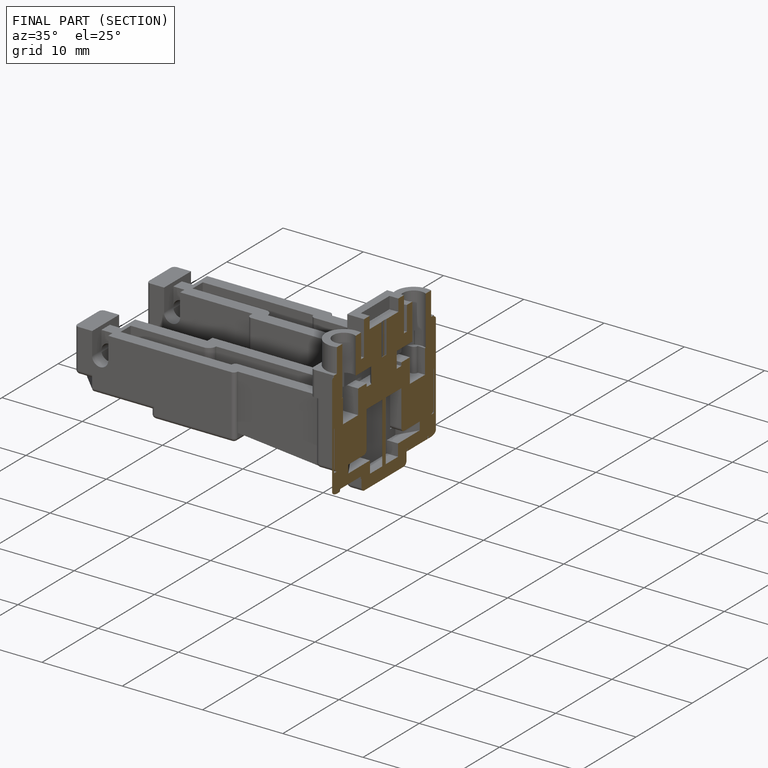
[diagram: finished part — half-section view (interior)]
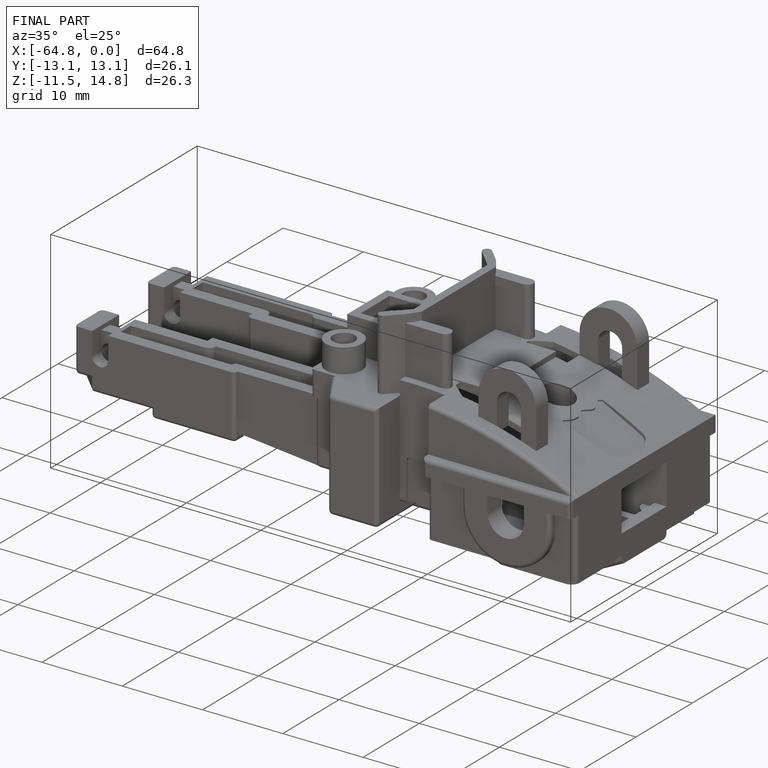
[diagram: finished part — iso view with bounding-box wireframe]
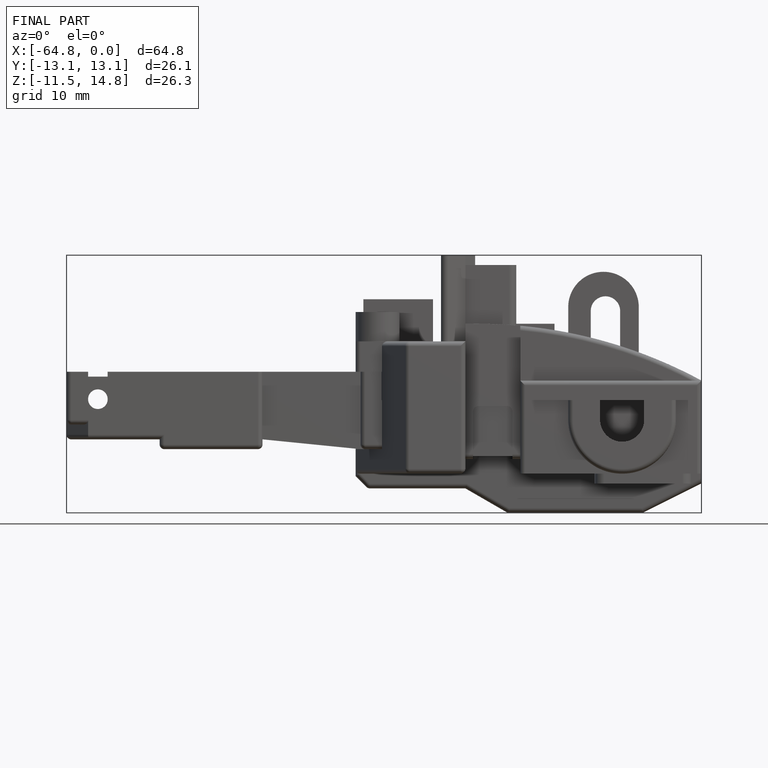
[diagram: finished part — front view with bounding-box wireframe]
